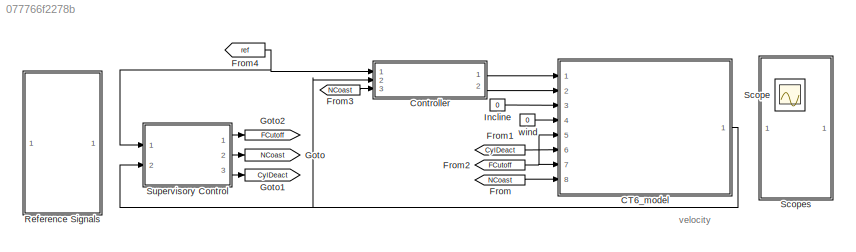
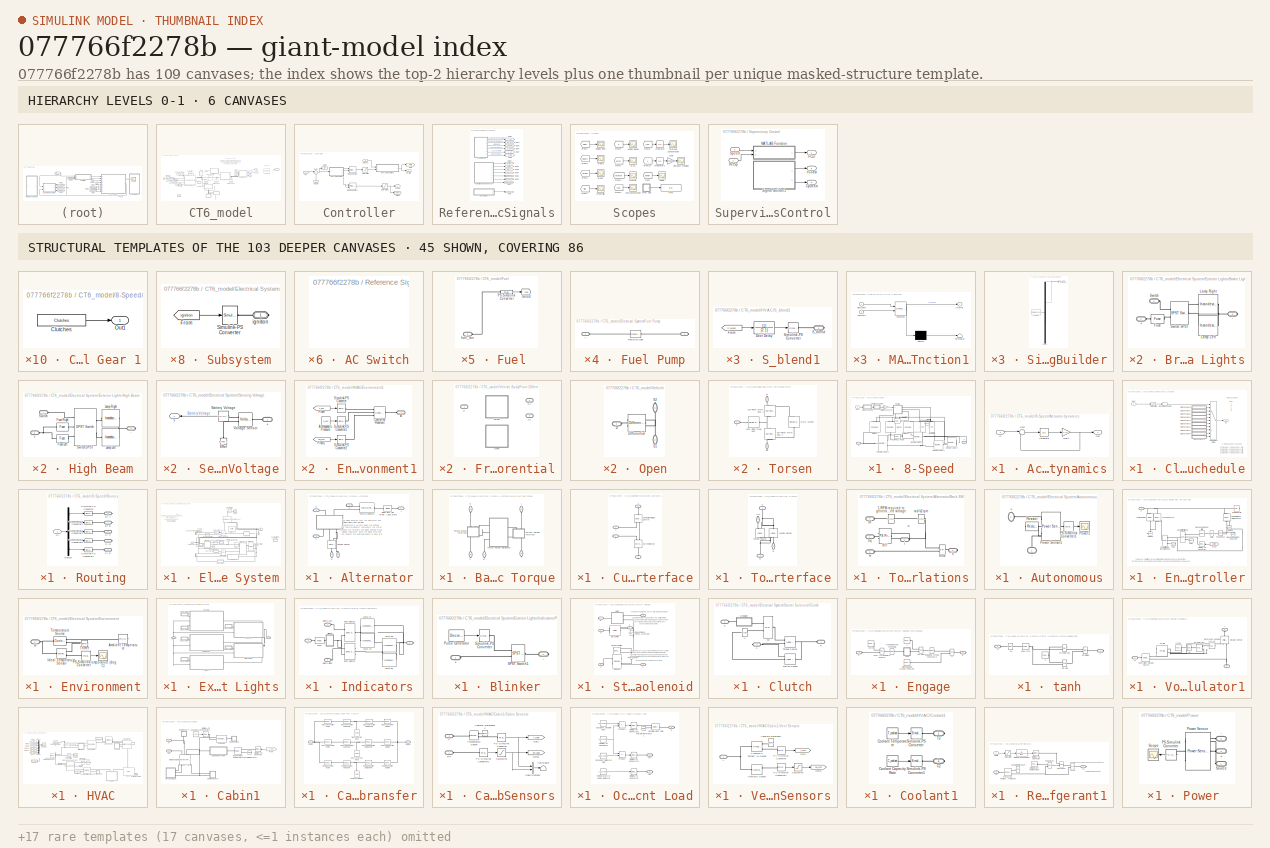
[diagram: thumbnail index - top-2 hierarchy levels (6 canvases) + 45 structural-template representatives of the remaining 103 canvases]
MODEL slx_077766f2278b
KIND model
CONFIG AbsTol = auto
CONFIG EnableMultiTasking = on
CONFIG FixedStep = 1e-3
CONFIG MaxStep = auto
CONFIG MinStep = auto
CONFIG RelTol = 1
CONFIG SampleTimeConstraint = Unconstrained
CONFIG Solver = VariableStepAuto
CONFIG SolverName = VariableStepAuto
CONFIG StartTime = 0.0
CONFIG StopTime = 1875
WORKSPACE source: external: MATLAB File  (data not in archive)
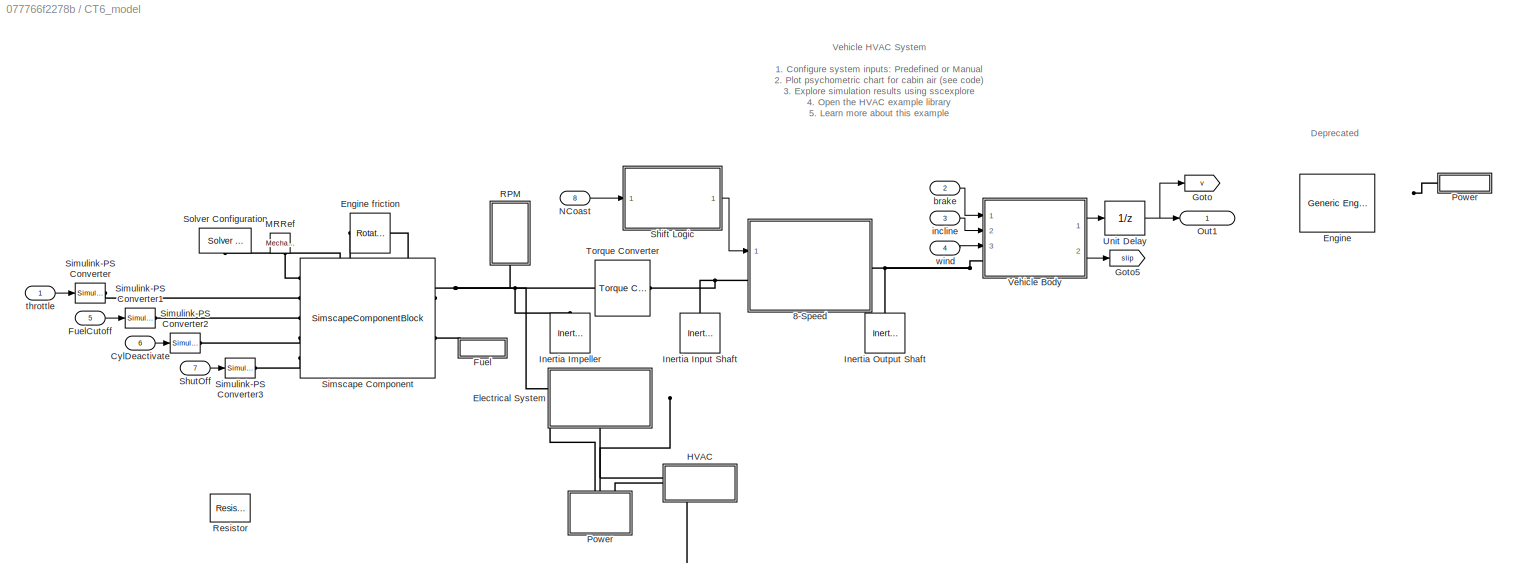
BLOCK [SubSystem] CT6_model
  Ports = [8, 1]
  RequestExecContextInheritance = off
  Variant = off
BLOCK [SubSystem] CT6_model/8-Speed
  Ports = [1, 0, 0, 0, 0, 1, 1]
  RequestExecContextInheritance = off
  Variant = off
BLOCK [SubSystem] CT6_model/8-Speed/Actuator dynamics
  Ports = [1, 1]
  RequestExecContextInheritance = off
  Variant = off
BLOCK [Gain] CT6_model/8-Speed/Actuator dynamics/Gain
  Gain = 1./b
  OutDataTypeStr = Inherit: Inherit via internal rule
  ParamDataTypeStr = Inherit: Inherit via internal rule
  SaturateOnIntegerOverflow = off
BLOCK [Inport] CT6_model/8-Speed/Actuator dynamics/In
  IconDisplay = Port number
BLOCK [Integrator] CT6_model/8-Speed/Actuator dynamics/Integrator
  InitialCondition = x_initial.*b
  Ports = [1, 1]
BLOCK [Outport] CT6_model/8-Speed/Actuator dynamics/Out
  IconDisplay = Port number
BLOCK [Sum] CT6_model/8-Speed/Actuator dynamics/Sum
  IconShape = round
  Inputs = |+-
  Ports = [2, 1]
BLOCK [PMIOPort] CT6_model/8-Speed/B
  Port = 1
  Side = Left
BLOCK [Reference] CT6_model/8-Speed/Brake A  REF=sdl_lib/Brakes & Detents/Rotational/Loaded-Contact
Rotational Friction
  Ports = [0, 0, 0, 0, 0, 2, 1]
  SourceBlock = sdl_lib/Brakes & Detents/Rotational/Loaded-Contact\nRotational Friction
  SourceProductBaseCode = LD
  SourceProductName = Simscape Driveline
  SourceType = Loaded-Contact\nRotational Friction
BLOCK [Reference] CT6_model/8-Speed/Brake B  REF=sdl_lib/Brakes & Detents/Rotational/Loaded-Contact
Rotational Friction
  Ports = [0, 0, 0, 0, 0, 2, 1]
  SourceBlock = sdl_lib/Brakes & Detents/Rotational/Loaded-Contact\nRotational Friction
  SourceProductBaseCode = LD
  SourceProductName = Simscape Driveline
  SourceType = Loaded-Contact\nRotational Friction
BLOCK [Reference] CT6_model/8-Speed/Clutch C  REF=sdl_lib/Clutches/Cone Clutch
  Ports = [0, 0, 0, 0, 0, 2, 1]
  SourceBlock = sdl_lib/Clutches/Cone Clutch
  SourceProductBaseCode = LD
  SourceProductName = Simscape Driveline
  SourceType = Cone Clutch
BLOCK [Reference] CT6_model/8-Speed/Clutch D  REF=sdl_lib/Clutches/Cone Clutch
  Ports = [0, 0, 0, 0, 0, 2, 1]
  SourceBlock = sdl_lib/Clutches/Cone Clutch
  SourceProductBaseCode = LD
  SourceProductName = Simscape Driveline
  SourceType = Cone Clutch
BLOCK [Reference] CT6_model/8-Speed/Clutch E  REF=sdl_lib/Clutches/Cone Clutch
  Ports = [0, 0, 0, 0, 0, 2, 1]
  SourceBlock = sdl_lib/Clutches/Cone Clutch
  SourceProductBaseCode = LD
  SourceProductName = Simscape Driveline
  SourceType = Cone Clutch
BLOCK [SubSystem] CT6_model/8-Speed/Clutch schedule
  Ports = [1, 1]
  RequestExecContextInheritance = off
  Variant = off
BLOCK [SubSystem] CT6_model/8-Speed/Clutch schedule/Clutches Gear 1
  OpenFcn = open_system(gcb,'force');
  Ports = [0, 1]
  RequestExecContextInheritance = off
  Variant = off
BLOCK [Constant] CT6_model/8-Speed/Clutch schedule/Clutches Gear 1/Clutches
  SampleTime = 0
  Value = Clutches
BLOCK [Outport] CT6_model/8-Speed/Clutch schedule/Clutches Gear 1/Out1
  IconDisplay = Port number
BLOCK [SubSystem] CT6_model/8-Speed/Clutch schedule/Clutches Gear 2
  OpenFcn = open_system(gcb,'force');
  Ports = [0, 1]
  RequestExecContextInheritance = off
  Variant = off
BLOCK [Constant] CT6_model/8-Speed/Clutch schedule/Clutches Gear 2/Clutches
  SampleTime = 0
  Value = Clutches
BLOCK [Outport] CT6_model/8-Speed/Clutch schedule/Clutches Gear 2/Out1
  IconDisplay = Port number
BLOCK [SubSystem] CT6_model/8-Speed/Clutch schedule/Clutches Gear 3
  OpenFcn = open_system(gcb,'force');
  Ports = [0, 1]
  RequestExecContextInheritance = off
  Variant = off
BLOCK [Constant] CT6_model/8-Speed/Clutch schedule/Clutches Gear 3/Clutches
  SampleTime = 0
  Value = Clutches
BLOCK [Outport] CT6_model/8-Speed/Clutch schedule/Clutches Gear 3/Out1
  IconDisplay = Port number
BLOCK [SubSystem] CT6_model/8-Speed/Clutch schedule/Clutches Gear 4
  OpenFcn = open_system(gcb,'force');
  Ports = [0, 1]
  RequestExecContextInheritance = off
  Variant = off
BLOCK [Constant] CT6_model/8-Speed/Clutch schedule/Clutches Gear 4/Clutches
  SampleTime = 0
  Value = Clutches
BLOCK [Outport] CT6_model/8-Speed/Clutch schedule/Clutches Gear 4/Out1
  IconDisplay = Port number
BLOCK [SubSystem] CT6_model/8-Speed/Clutch schedule/Clutches Gear 5
  OpenFcn = open_system(gcb,'force');
  Ports = [0, 1]
  RequestExecContextInheritance = off
  Variant = off
BLOCK [Constant] CT6_model/8-Speed/Clutch schedule/Clutches Gear 5/Clutches
  SampleTime = 0
  Value = Clutches
BLOCK [Outport] CT6_model/8-Speed/Clutch schedule/Clutches Gear 5/Out1
  IconDisplay = Port number
BLOCK [SubSystem] CT6_model/8-Speed/Clutch schedule/Clutches Gear 6
  OpenFcn = open_system(gcb,'force');
  Ports = [0, 1]
  RequestExecContextInheritance = off
  Variant = off
BLOCK [Constant] CT6_model/8-Speed/Clutch schedule/Clutches Gear 6/Clutches
  SampleTime = 0
  Value = Clutches
BLOCK [Outport] CT6_model/8-Speed/Clutch schedule/Clutches Gear 6/Out1
  IconDisplay = Port number
BLOCK [SubSystem] CT6_model/8-Speed/Clutch schedule/Clutches Gear 7
  OpenFcn = open_system(gcb,'force');
  Ports = [0, 1]
  RequestExecContextInheritance = off
  Variant = off
BLOCK [Constant] CT6_model/8-Speed/Clutch schedule/Clutches Gear 7/Clutches
  SampleTime = 0
  Value = Clutches
BLOCK [Outport] CT6_model/8-Speed/Clutch schedule/Clutches Gear 7/Out1
  IconDisplay = Port number
BLOCK [SubSystem] CT6_model/8-Speed/Clutch schedule/Clutches Gear 8
  OpenFcn = open_system(gcb,'force');
  Ports = [0, 1]
  RequestExecContextInheritance = off
  Variant = off
BLOCK [Constant] CT6_model/8-Speed/Clutch schedule/Clutches Gear 8/Clutches
  SampleTime = 0
  Value = Clutches
BLOCK [Outport] CT6_model/8-Speed/Clutch schedule/Clutches Gear 8/Out1
  IconDisplay = Port number
BLOCK [SubSystem] CT6_model/8-Speed/Clutch schedule/Clutches Gear N
  OpenFcn = open_system(gcb,'force');
  Ports = [0, 1]
  RequestExecContextInheritance = off
  Variant = off
BLOCK [Constant] CT6_model/8-Speed/Clutch schedule/Clutches Gear N/Clutches Gear N
  SampleTime = 0
  Value = Clutches
BLOCK [Outport] CT6_model/8-Speed/Clutch schedule/Clutches Gear N/Out1
  IconDisplay = Port number
BLOCK [SubSystem] CT6_model/8-Speed/Clutch schedule/Clutches Gear R
  OpenFcn = open_system(gcb,'force');
  Ports = [0, 1]
  RequestExecContextInheritance = off
  Variant = off
BLOCK [Constant] CT6_model/8-Speed/Clutch schedule/Clutches Gear R/Clutches
  SampleTime = 0
  Value = Clutches
BLOCK [Outport] CT6_model/8-Speed/Clutch schedule/Clutches Gear R/Out1
  IconDisplay = Port number
BLOCK [Inport] CT6_model/8-Speed/Clutch schedule/Gear
  IconDisplay = Port number
BLOCK [Rounding] CT6_model/8-Speed/Clutch schedule/Rounding Function
BLOCK [Saturate] CT6_model/8-Speed/Clutch schedule/Saturation
  InputPortMap = u0
  LowerLimit = -1
  Ports = [1, 1]
  UpperLimit = 8
  ZeroCross = off
BLOCK [MultiPortSwitch] CT6_model/8-Speed/Clutch schedule/Select Clutch States
  DataPortIndices = {8,7,6,5,4,3,2,1,-1,0}
  DataPortOrder = Specify indices
  DiagnosticForDefault = None
  InputSameDT = off
  OutDataTypeStr = Inherit: Inherit via back propagation
  Ports = [11, 1]
  SaturateOnIntegerOverflow = off
BLOCK [Outport] CT6_model/8-Speed/Clutch schedule/St
  IconDisplay = Port number
BLOCK [PMIOPort] CT6_model/8-Speed/F
  Port = 2
  Side = Right
BLOCK [Inport] CT6_model/8-Speed/Gear
  IconDisplay = Port number
BLOCK [Reference] CT6_model/8-Speed/Inertia Pla1S-Pla2R  REF=fl_lib/Mechanical/Rotational Elements/Inertia
  Ports = [0, 0, 0, 0, 0, 1]
  SourceBlock = fl_lib/Mechanical/Rotational Elements/Inertia
  SourceProductBaseCode = SS
  SourceProductName = Simscape
  SourceType = Inertia
BLOCK [Reference] CT6_model/8-Speed/Inertia Pla4S  REF=fl_lib/Mechanical/Rotational Elements/Inertia
  Ports = [0, 0, 0, 0, 0, 1]
  SourceBlock = fl_lib/Mechanical/Rotational Elements/Inertia
  SourceProductBaseCode = SS
  SourceProductName = Simscape
  SourceType = Inertia
BLOCK [Reference] CT6_model/8-Speed/MRRef  REF=fl_lib/Mechanical/Rotational Elements/Mechanical
Rotational Reference
  Ports = [0, 0, 0, 0, 0, 1]
  SourceBlock = fl_lib/Mechanical/Rotational Elements/Mechanical\nRotational Reference
  SourceProductBaseCode = SS
  SourceProductName = Simscape
  SourceType = Mechanical\nRotational Reference
BLOCK [Reference] CT6_model/8-Speed/Planetary Gear 1  REF=sdl_lib/Gears/Planetary Gear
  Ports = [0, 0, 0, 0, 0, 1, 2]
  SourceBlock = sdl_lib/Gears/Planetary Gear
  SourceProductBaseCode = LD
  SourceProductName = Simscape Driveline
  SourceType = Planetary Gear
BLOCK [Reference] CT6_model/8-Speed/Planetary Gear 2  REF=sdl_lib/Gears/Planetary Gear
  Ports = [0, 0, 0, 0, 0, 1, 2]
  SourceBlock = sdl_lib/Gears/Planetary Gear
  SourceProductBaseCode = LD
  SourceProductName = Simscape Driveline
  SourceType = Planetary Gear
BLOCK [Reference] CT6_model/8-Speed/Planetary Gear 3  REF=sdl_lib/Gears/Planetary Gear
  Ports = [0, 0, 0, 0, 0, 1, 2]
  SourceBlock = sdl_lib/Gears/Planetary Gear
  SourceProductBaseCode = LD
  SourceProductName = Simscape Driveline
  SourceType = Planetary Gear
BLOCK [Reference] CT6_model/8-Speed/Planetary Gear 4  REF=sdl_lib/Gears/Planetary Gear
  Ports = [0, 0, 0, 0, 0, 1, 2]
  SourceBlock = sdl_lib/Gears/Planetary Gear
  SourceProductBaseCode = LD
  SourceProductName = Simscape Driveline
  SourceType = Planetary Gear
BLOCK [SubSystem] CT6_model/8-Speed/Routing
  Ports = [1, 0, 0, 0, 0, 2, 3]
  RequestExecContextInheritance = off
  Variant = off
BLOCK [PMIOPort] CT6_model/8-Speed/Routing/Br A
  Port = 2
  Side = Right
BLOCK [PMIOPort] CT6_model/8-Speed/Routing/Br B
  Port = 1
  Side = Right
BLOCK [PMIOPort] CT6_model/8-Speed/Routing/Cl C
  Port = 4
  Side = Left
BLOCK [PMIOPort] CT6_model/8-Speed/Routing/Cl D
  Port = 3
  Side = Right
BLOCK [PMIOPort] CT6_model/8-Speed/Routing/Cl E
  Port = 5
  Side = Left
BLOCK [Demux] CT6_model/8-Speed/Routing/Demux
  DisplayOption = bar
  Outputs = 5
  Ports = [1, 5]
BLOCK [Inport] CT6_model/8-Speed/Routing/Pr
  IconDisplay = Port number
BLOCK [Reference] CT6_model/8-Speed/Routing/Simulink-PS Converter  REF=nesl_utility/Simulink-PS
Converter
  Ports = [1, 0, 0, 0, 0, 0, 1]
  SourceBlock = nesl_utility/Simulink-PS\nConverter
  SourceProductBaseCode = SS
  SourceProductName = Simscape
  SourceType = Simulink-PS\nConverter
BLOCK [Reference] CT6_model/8-Speed/Routing/Simulink-PS Converter1  REF=nesl_utility/Simulink-PS
Converter
  Ports = [1, 0, 0, 0, 0, 0, 1]
  SourceBlock = nesl_utility/Simulink-PS\nConverter
  SourceProductBaseCode = SS
  SourceProductName = Simscape
  SourceType = Simulink-PS\nConverter
BLOCK [Reference] CT6_model/8-Speed/Routing/Simulink-PS Converter2  REF=nesl_utility/Simulink-PS
Converter
  Ports = [1, 0, 0, 0, 0, 0, 1]
  SourceBlock = nesl_utility/Simulink-PS\nConverter
  SourceProductBaseCode = SS
  SourceProductName = Simscape
  SourceType = Simulink-PS\nConverter
BLOCK [Reference] CT6_model/8-Speed/Routing/Simulink-PS Converter3  REF=nesl_utility/Simulink-PS
Converter
  Ports = [1, 0, 0, 0, 0, 0, 1]
  SourceBlock = nesl_utility/Simulink-PS\nConverter
  SourceProductBaseCode = SS
  SourceProductName = Simscape
  SourceType = Simulink-PS\nConverter
BLOCK [Reference] CT6_model/8-Speed/Routing/Simulink-PS Converter4  REF=nesl_utility/Simulink-PS
Converter
  Ports = [1, 0, 0, 0, 0, 0, 1]
  SourceBlock = nesl_utility/Simulink-PS\nConverter
  SourceProductBaseCode = SS
  SourceProductName = Simscape
  SourceType = Simulink-PS\nConverter
BLOCK [Gain] CT6_model/8-Speed/State to pressure
  Gain = [1e6,1e6,1e6,1e6,1e6]
  OutDataTypeStr = Inherit: Inherit via internal rule
  ParamDataTypeStr = Inherit: Inherit via internal rule
  SaturateOnIntegerOverflow = off
BLOCK [Inport] CT6_model/CylDeactivate
  IconDisplay = Port number
  Port = 6
BLOCK [SubSystem] CT6_model/Electrical System
  Ports = [0, 0, 0, 0, 0, 2, 1]
  RequestExecContextInheritance = off
  Variant = off
BLOCK [PMIOPort] CT6_model/Electrical System/+
  Port = 2
  Side = Left
BLOCK [PMIOPort] CT6_model/Electrical System/-
  Port = 3
  Side = Right
BLOCK [SubSystem] CT6_model/Electrical System/Alternator
  Ports = [0, 0, 0, 0, 0, 3, 3]
  RequestExecContextInheritance = off
  Variant = off
BLOCK [PMIOPort] CT6_model/Electrical System/Alternator Pulley 
  Port = 1
  Side = Left
BLOCK [PMIOPort] CT6_model/Electrical System/Alternator/+
  Port = 2
  Side = Left
BLOCK [PMIOPort] CT6_model/Electrical System/Alternator/-
  Port = 5
  Side = Left
BLOCK [SubSystem] CT6_model/Electrical System/Alternator/Back EMF and Torque
  Ports = [0, 0, 0, 0, 0, 2, 3]
  RequestExecContextInheritance = off
  Variant = off
BLOCK [PMIOPort] CT6_model/Electrical System/Alternator/Back EMF and Torque/+
  Port = 3
  Side = Left
BLOCK [PMIOPort] CT6_model/Electrical System/Alternator/Back EMF and Torque/-
  Port = 5
  Side = Right
BLOCK [PMIOPort] CT6_model/Electrical System/Alternator/Back EMF and Torque/C
  Port = 2
  Side = Right
BLOCK [SubSystem] CT6_model/Electrical System/Alternator/Back EMF and Torque/Current Voltage Interface
  Ports = [0, 0, 0, 0, 0, 2, 2]
  RequestExecContextInheritance = off
  Variant = off
BLOCK [PMIOPort] CT6_model/Electrical System/Alternator/Back EMF and Torque/Current Voltage Interface/+
  Port = 3
  Side = Left
BLOCK [PMIOPort] CT6_model/Electrical System/Alternator/Back EMF and Torque/Current Voltage Interface/-
  Port = 4
  Side = Right
BLOCK [Reference] CT6_model/Electrical System/Alternator/Back EMF and Torque/Current Voltage Interface/Controlled Voltage Source  REF=fl_lib/Electrical/Electrical Sources/Controlled Voltage
Source
  Ports = [0, 0, 0, 0, 0, 1, 2]
  SourceBlock = fl_lib/Electrical/Electrical Sources/Controlled Voltage\nSource
  SourceProductName = Foundation Library
  SourceType = Controlled Voltage\nSource
BLOCK [Reference] CT6_model/Electrical System/Alternator/Back EMF and Torque/Current Voltage Interface/Current Sensor  REF=fl_lib/Electrical/Electrical Sensors/Current Sensor
  Ports = [0, 0, 0, 0, 0, 1, 2]
  SourceBlock = fl_lib/Electrical/Electrical Sensors/Current Sensor
  SourceProductName = Foundation Library
  SourceType = Current Sensor
BLOCK [PMIOPort] CT6_model/Electrical System/Alternator/Back EMF and Torque/Current Voltage Interface/i
  Port = 2
  Side = Right
BLOCK [PMIOPort] CT6_model/Electrical System/Alternator/Back EMF and Torque/Current Voltage Interface/v
  Port = 1
  Side = Left
BLOCK [PMIOPort] CT6_model/Electrical System/Alternator/Back EMF and Torque/R
  Port = 1
  Side = Left
BLOCK [SubSystem] CT6_model/Electrical System/Alternator/Back EMF and Torque/Torque Motion Interface
  Ports = [0, 0, 0, 0, 0, 2, 2]
  RequestExecContextInheritance = off
  Variant = off
BLOCK [PMIOPort] CT6_model/Electrical System/Alternator/Back EMF and Torque/Torque Motion Interface/C
  Port = 1
  Side = Right
BLOCK [Reference] CT6_model/Electrical System/Alternator/Back EMF and Torque/Torque Motion Interface/Motion Sensor  REF=fl_lib/Mechanical/Mechanical Sensors/Ideal Rotational
Motion Sensor
  Ports = [0, 0, 0, 0, 0, 1, 3]
  SourceBlock = fl_lib/Mechanical/Mechanical Sensors/Ideal Rotational\nMotion Sensor
  SourceProductName = Foundation Library
  SourceType = Ideal Rotational\nMotion Sensor
BLOCK [PMIOPort] CT6_model/Electrical System/Alternator/Back EMF and Torque/Torque Motion Interface/R
  Port = 2
  Side = Left
BLOCK [Reference] CT6_model/Electrical System/Alternator/Back EMF and Torque/Torque Motion Interface/Torque Source  REF=fl_lib/Mechanical/Mechanical Sources/Ideal Torque Source
  Ports = [0, 0, 0, 0, 0, 1, 2]
  SourceBlock = fl_lib/Mechanical/Mechanical Sources/Ideal Torque Source
  SourceProductName = Foundation Library
  SourceType = Ideal Torque Source
BLOCK [PMIOPort] CT6_model/Electrical System/Alternator/Back EMF and Torque/Torque Motion Interface/trq
  Port = 4
  Side = Right
BLOCK [PMIOPort] CT6_model/Electrical System/Alternator/Back EMF and Torque/Torque Motion Interface/w
  Port = 3
  Side = Left
BLOCK [SubSystem] CT6_model/Electrical System/Alternator/Back EMF and Torque/Torque Voltage Calculations
  Ports = [0, 0, 0, 0, 0, 3, 2]
  RequestExecContextInheritance = off
  Variant = off
BLOCK [Reference] CT6_model/Electrical System/Alternator/Back EMF and Torque/Torque Voltage Calculations/1//RPM required to generate rated voltage  REF=fl_lib/Physical Signals/Functions/PS Gain
  Ports = [0, 0, 0, 0, 0, 1, 1]
  SourceBlock = fl_lib/Physical Signals/Functions/PS Gain
  SourceProductName = Foundation Library
  SourceType = PS Gain
BLOCK [Reference] CT6_model/Electrical System/Alternator/Back EMF and Torque/Torque Voltage Calculations/Kt*i  REF=fl_lib/Physical Signals/Functions/PS Product
  Ports = [0, 0, 0, 0, 0, 2, 1]
  SourceBlock = fl_lib/Physical Signals/Functions/PS Product
  SourceProductName = Foundation Library
  SourceType = PS Product
BLOCK [Reference] CT6_model/Electrical System/Alternator/Back EMF and Torque/Torque Voltage Calculations/Kv*w  REF=fl_lib/Physical Signals/Functions/PS Product
  Ports = [0, 0, 0, 0, 0, 2, 1]
  SourceBlock = fl_lib/Physical Signals/Functions/PS Product
  SourceProductName = Foundation Library
  SourceType = PS Product
BLOCK [PMIOPort] CT6_model/Electrical System/Alternator/Back EMF and Torque/Torque Voltage Calculations/V
  Port = 2
  Side = Right
BLOCK [PMIOPort] CT6_model/Electrical System/Alternator/Back EMF and Torque/Torque Voltage Calculations/VF
  Port = 4
  Side = Left
BLOCK [PMIOPort] CT6_model/Electrical System/Alternator/Back EMF and Torque/Torque Voltage Calculations/i
  Port = 5
  Side = Right
BLOCK [Reference] CT6_model/Electrical System/Alternator/Back EMF and Torque/Torque Voltage Calculations/rad//s2rpm  REF=fl_lib/Physical Signals/Functions/PS Gain
  Ports = [0, 0, 0, 0, 0, 1, 1]
  SourceBlock = fl_lib/Physical Signals/Functions/PS Gain
  SourceProductName = Foundation Library
  SourceType = PS Gain
BLOCK [PMIOPort] CT6_model/Electrical System/Alternator/Back EMF and Torque/Torque Voltage Calculations/trq
  Port = 1
  Side = Left
BLOCK [PMIOPort] CT6_model/Electrical System/Alternator/Back EMF and Torque/Torque Voltage Calculations/w
  Port = 3
  Side = Left
BLOCK [PMIOPort] CT6_model/Electrical System/Alternator/Back EMF and Torque/VF
  Port = 4
  Side = Right
BLOCK [PMIOPort] CT6_model/Electrical System/Alternator/C
  Port = 6
  Side = Right
BLOCK [Reference] CT6_model/Electrical System/Alternator/Diode with two forward voltage drops  REF=fl_lib/Electrical/Electrical Elements/Diode
  Ports = [0, 0, 0, 0, 0, 1, 1]
  SourceBlock = fl_lib/Electrical/Electrical Elements/Diode
  SourceProductName = Foundation Library
  SourceType = Diode
BLOCK [PMIOPort] CT6_model/Electrical System/Alternator/H
  Port = 1
  Side = Right
BLOCK [PMIOPort] CT6_model/Electrical System/Alternator/R
  Port = 3
  Side = Right
BLOCK [Reference] CT6_model/Electrical System/Alternator/Thermal Resistor  REF=fl_lib/Electrical/Electrical Elements/Thermal Resistor
  Ports = [0, 0, 0, 0, 0, 2, 1]
  SourceBlock = fl_lib/Electrical/Electrical Elements/Thermal Resistor
  SourceProductName = Foundation Library
  SourceType = Thermal Resistor
BLOCK [PMIOPort] CT6_model/Electrical System/Alternator/Vf
  Port = 4
  Side = Left
BLOCK [Reference] CT6_model/Electrical System/Alternator/Voltage Sensor  REF=fl_lib/Electrical/Electrical Sensors/Voltage Sensor
  Ports = [0, 0, 0, 0, 0, 1, 2]
  SourceBlock = fl_lib/Electrical/Electrical Sensors/Voltage Sensor
  SourceProductName = Foundation Library
  SourceType = Voltage Sensor
BLOCK [SubSystem] CT6_model/Electrical System/Autonomous
  Ports = [0, 0, 0, 0, 0, 1, 1]
  RequestExecContextInheritance = off
  Variant = off
BLOCK [PMIOPort] CT6_model/Electrical System/Autonomous/+
  Port = 1
  Side = Left
BLOCK [PMIOPort] CT6_model/Electrical System/Autonomous/-
  Port = 2
  Side = Right
BLOCK [Reference] CT6_model/Electrical System/Autonomous/PS-Simulink Converter1  REF=nesl_utility/PS-Simulink
Converter
  Ports = [0, 1, 0, 0, 0, 1]
  SourceBlock = nesl_utility/PS-Simulink\nConverter
  SourceProductBaseCode = SS
  SourceProductName = Simscape
  SourceType = PS-Simulink\nConverter
BLOCK [Reference] CT6_model/Electrical System/Autonomous/Power Sensor1  REF=elec_lib/Sensors/Power Sensor
  Ports = [0, 0, 0, 0, 0, 3, 1]
  SourceBlock = elec_lib/Sensors/Power Sensor
  SourceProductBaseCode = SN
  SourceProductName = Simscape Electronics
  SourceType = Power Sensor
BLOCK [Scope] CT6_model/Electrical System/Autonomous/Power1
  NumInputPorts = 1
  Ports = [1]
  ScopeSpecificationString = Simulink.scopes.TimeScopeBlockCfg('CurrentConfiguration', extmgr.ConfigurationSet(extmgr.Configuration('Core','General UI',true),extmgr.Configuration('Core','Source UI',true),extmgr.Configuration('Sources','WiredSimulink',true,'DataLoggingVariableName','ScopeData2'),extmgr.Configuration('Visuals','Time Domain',true,'SerializedDisplays',{struct('MinYLimReal','64.86798','MaxYLimReal','264.86798','YL...<+1490ch>
BLOCK [Reference] CT6_model/Electrical System/Autonomous/Resistor  REF=elec_lib/Passive Devices/Resistor
  Ports = [0, 0, 0, 0, 0, 1, 1]
  SourceBlock = elec_lib/Passive Devices/Resistor
  SourceProductBaseCode = SN
  SourceProductName = Simscape Electronics
  SourceType = Resistor
BLOCK [Reference] CT6_model/Electrical System/Battery1  REF=elec_lib/Sources/Battery
  Ports = [0, 0, 0, 0, 0, 1, 1]
  SourceBlock = elec_lib/Sources/Battery
  SourceProductBaseCode = SN
  SourceProductName = Simscape Electronics
  SourceType = Battery
BLOCK [Reference] CT6_model/Electrical System/Convection Env  REF=fl_lib/Thermal/Thermal Elements/Convective Heat
Transfer
  Ports = [0, 0, 0, 0, 0, 1, 1]
  SourceBlock = fl_lib/Thermal/Thermal Elements/Convective Heat\nTransfer
  SourceProductName = Foundation Library
  SourceType = Convective Heat\nTransfer
BLOCK [Reference] CT6_model/Electrical System/ERef1  REF=fl_lib/Electrical/Electrical Elements/Electrical Reference
  Ports = [0, 0, 0, 0, 0, 1]
  SourceBlock = fl_lib/Electrical/Electrical Elements/Electrical Reference
  SourceProductName = Foundation Library
  SourceType = Electrical Reference
BLOCK [SubSystem] CT6_model/Electrical System/Engine with Idle Controller
  Commented = on
  Ports = [0, 0, 0, 0, 0, 1]
  RequestExecContextInheritance = off
  Variant = off
BLOCK [Reference] CT6_model/Electrical System/Engine with Idle Controller/ 0Nm   REF=fl_lib/Physical Signals/Sources/PS Constant
  Ports = [0, 0, 0, 0, 0, 0, 1]
  SourceBlock = fl_lib/Physical Signals/Sources/PS Constant
  SourceProductName = Foundation Library
  SourceType = PS Constant
BLOCK [Reference] CT6_model/Electrical System/Engine with Idle Controller/0Nm  REF=fl_lib/Physical Signals/Sources/PS Constant
  Ports = [0, 0, 0, 0, 0, 0, 1]
  SourceBlock = fl_lib/Physical Signals/Sources/PS Constant
  SourceProductName = Foundation Library
  SourceType = PS Constant
BLOCK [Reference] CT6_model/Electrical System/Engine with Idle Controller/Enable if faster than stall speed  REF=fl_lib/Physical Signals/Nonlinear Operators/PS Switch
  Ports = [0, 0, 0, 0, 0, 3, 1]
  SourceBlock = fl_lib/Physical Signals/Nonlinear Operators/PS Switch
  SourceProductName = Foundation Library
  SourceType = PS Switch
BLOCK [Reference] CT6_model/Electrical System/Engine with Idle Controller/Enable if ignition on  REF=fl_lib/Physical Signals/Nonlinear Operators/PS Switch
  Ports = [0, 0, 0, 0, 0, 3, 1]
  SourceBlock = fl_lib/Physical Signals/Nonlinear Operators/PS Switch
  SourceProductName = Foundation Library
  SourceType = PS Switch
BLOCK [Reference] CT6_model/Electrical System/Engine with Idle Controller/Engine friction  REF=fl_lib/Mechanical/Rotational Elements/Rotational Friction
  Ports = [0, 0, 0, 0, 0, 1, 1]
  SourceBlock = fl_lib/Mechanical/Rotational Elements/Rotational Friction
  SourceProductName = Foundation Library
  SourceType = Rotational Friction
BLOCK [Reference] CT6_model/Electrical System/Engine with Idle Controller/Engine inertia  REF=fl_lib/Mechanical/Rotational Elements/Inertia
  Ports = [0, 0, 0, 0, 0, 1]
  SourceBlock = fl_lib/Mechanical/Rotational Elements/Inertia
  SourceProductName = Foundation Library
  SourceType = Inertia
BLOCK [From] CT6_model/Electrical System/Engine with Idle Controller/From
  GotoTag = ignition
  TagVisibility = global
BLOCK [Reference] CT6_model/Electrical System/Engine with Idle Controller/Gain  REF=fl_lib/Physical Signals/Functions/PS Gain
  Ports = [0, 0, 0, 0, 0, 1, 1]
  SourceBlock = fl_lib/Physical Signals/Functions/PS Gain
  SourceProductName = Foundation Library
  SourceType = PS Gain
BLOCK [Reference] CT6_model/Electrical System/Engine with Idle Controller/Ideal Rotational Motion Sensor  REF=fl_lib/Mechanical/Mechanical Sensors/Ideal Rotational
Motion Sensor
  Ports = [0, 0, 0, 0, 0, 1, 3]
  SourceBlock = fl_lib/Mechanical/Mechanical Sensors/Ideal Rotational\nMotion Sensor
  SourceProductName = Foundation Library
  SourceType = Ideal Rotational\nMotion Sensor
BLOCK [Reference] CT6_model/Electrical System/Engine with Idle Controller/Idle speed authority limits  REF=fl_lib/Physical Signals/Nonlinear Operators/PS Saturation
  Ports = [0, 0, 0, 0, 0, 1, 1]
  SourceBlock = fl_lib/Physical Signals/Nonlinear Operators/PS Saturation
  SourceProductName = Foundation Library
  SourceType = PS Saturation
BLOCK [Reference] CT6_model/Electrical System/Engine with Idle Controller/Idle speed set point (900rpm)  REF=fl_lib/Physical Signals/Sources/PS Constant
  Ports = [0, 0, 0, 0, 0, 0, 1]
  SourceBlock = fl_lib/Physical Signals/Sources/PS Constant
  SourceProductName = Foundation Library
  SourceType = PS Constant
BLOCK [Reference] CT6_model/Electrical System/Engine with Idle Controller/MRRef2  REF=fl_lib/Mechanical/Rotational Elements/Mechanical
Rotational Reference
  Ports = [0, 0, 0, 0, 0, 1]
  SourceBlock = fl_lib/Mechanical/Rotational Elements/Mechanical\nRotational Reference
  SourceProductName = Foundation Library
  SourceType = Mechanical\nRotational Reference
BLOCK [Reference] CT6_model/Electrical System/Engine with Idle Controller/MRRef3  REF=fl_lib/Mechanical/Rotational Elements/Mechanical
Rotational Reference
  Ports = [0, 0, 0, 0, 0, 1]
  SourceBlock = fl_lib/Mechanical/Rotational Elements/Mechanical\nRotational Reference
  SourceProductName = Foundation Library
  SourceType = Mechanical\nRotational Reference
BLOCK [Reference] CT6_model/Electrical System/Engine with Idle Controller/PS Subtract  REF=fl_lib/Physical Signals/Functions/PS Subtract
  Ports = [0, 0, 0, 0, 0, 2, 1]
  SourceBlock = fl_lib/Physical Signals/Functions/PS Subtract
  SourceProductName = Foundation Library
  SourceType = PS Subtract
BLOCK [PMIOPort] CT6_model/Electrical System/Engine with Idle Controller/R
  Port = 1
  Side = Left
BLOCK [Reference] CT6_model/Electrical System/Engine with Idle Controller/Simulink-PS Converter  REF=nesl_utility/Simulink-PS
Converter
  Ports = [1, 0, 0, 0, 0, 0, 1]
  SourceBlock = nesl_utility/Simulink-PS\nConverter
  SourceProductBaseCode = SS
  SourceProductName = Simscape
  SourceType = Simulink-PS\nConverter
BLOCK [Reference] CT6_model/Electrical System/Engine with Idle Controller/Torque Source  REF=fl_lib/Mechanical/Mechanical Sources/Ideal Torque Source
  Ports = [0, 0, 0, 0, 0, 1, 2]
  SourceBlock = fl_lib/Mechanical/Mechanical Sources/Ideal Torque Source
  SourceProductName = Foundation Library
  SourceType = Ideal Torque Source
BLOCK [SubSystem] CT6_model/Electrical System/Environment
  Ports = [0, 0, 0, 0, 0, 1]
  RequestExecContextInheritance = off
  Variant = off
BLOCK [Reference] CT6_model/Electrical System/Environment/ Temperature Source  REF=fl_lib/Thermal/Thermal Sources/Controlled
Temperature Source
  Ports = [0, 0, 0, 0, 0, 1, 2]
  SourceBlock = fl_lib/Thermal/Thermal Sources/Controlled\nTemperature Source
  SourceProductName = Foundation Library
  SourceType = Controlled\nTemperature Source
BLOCK [Reference] CT6_model/Electrical System/Environment/Ambient Temperature  REF=fl_lib/Physical Signals/Sources/PS Constant
  Ports = [0, 0, 0, 0, 0, 0, 1]
  SourceBlock = fl_lib/Physical Signals/Sources/PS Constant
  SourceProductName = Foundation Library
  SourceType = PS Constant
BLOCK [PMIOPort] CT6_model/Electrical System/Environment/H
  Port = 1
  Side = Left
BLOCK [Reference] CT6_model/Electrical System/Environment/Ideal Temperature Sensor  REF=fl_lib/Thermal/Thermal Sensors/Temperature Sensor
  Ports = [0, 0, 0, 0, 0, 1, 2]
  SourceBlock = fl_lib/Thermal/Thermal Sensors/Temperature Sensor
  SourceProductName = Foundation Library
  SourceType = Temperature Sensor
BLOCK [Reference] CT6_model/Electrical System/Environment/PS-Simulink Converter  REF=nesl_utility/PS-Simulink
Converter
  Ports = [0, 1, 0, 0, 0, 1]
  SourceBlock = nesl_utility/PS-Simulink\nConverter
  SourceProductBaseCode = SS
  SourceProductName = Simscape
  SourceType = PS-Simulink\nConverter
BLOCK [Scope] CT6_model/Electrical System/Environment/Temperature (deg C)
  NumInputPorts = 1
  Ports = [1]
  ScopeSpecificationString = Simulink.scopes.TimeScopeBlockCfg('CurrentConfiguration', extmgr.ConfigurationSet(extmgr.Configuration('Core','General UI',true),extmgr.Configuration('Core','Source UI',true),extmgr.Configuration('Sources','WiredSimulink',true,'DataLoggingSaveFormat','StructureWithTime','DataLoggingMaxPoints','50000','DataLoggingLimitDataPoints',true,'DataLoggingDecimation','1','DataLoggingDecimateData',true),extm...<+1716ch>
BLOCK [Reference] CT6_model/Electrical System/Environment/ThRef  REF=fl_lib/Thermal/Thermal Elements/Thermal Reference
  Ports = [0, 0, 0, 0, 0, 1]
  SourceBlock = fl_lib/Thermal/Thermal Elements/Thermal Reference
  SourceProductName = Foundation Library
  SourceType = Thermal Reference
BLOCK [SubSystem] CT6_model/Electrical System/Exterior Lights
  Ports = [0, 0, 0, 0, 0, 1, 1]
  RequestExecContextInheritance = off
  Tag = PublishSubsystem
  Variant = off
BLOCK [PMIOPort] CT6_model/Electrical System/Exterior Lights/+
  Port = 2
  Side = Right
BLOCK [PMIOPort] CT6_model/Electrical System/Exterior Lights/-
  Port = 1
  Side = Left
BLOCK [SubSystem] CT6_model/Electrical System/Exterior Lights/Brake Lights
  Ports = [0, 0, 0, 0, 0, 2, 1]
  RequestExecContextInheritance = off
  Variant = off
BLOCK [PMIOPort] CT6_model/Electrical System/Exterior Lights/Brake Lights/+
  Port = 2
  Side = Left
BLOCK [PMIOPort] CT6_model/Electrical System/Exterior Lights/Brake Lights/-
  Port = 3
  Side = Right
BLOCK [Reference] CT6_model/Electrical System/Exterior Lights/Brake Lights/Fuse  REF=elec_lib/Passive Devices/Fuse
  AttributesFormatString = %<I_rated> %<I_rated_unit>
  Ports = [0, 0, 0, 0, 0, 1, 1]
  SourceBlock = elec_lib/Passive Devices/Fuse
  SourceProductBaseCode = SN
  SourceProductName = Simscape Electronics
  SourceType = Fuse
BLOCK [Reference] CT6_model/Electrical System/Exterior Lights/Brake Lights/Lamp Left  REF=elec_lib/Passive Devices/Incandescent Lamp
  Ports = [0, 0, 0, 0, 0, 1, 1]
  SourceBlock = elec_lib/Passive Devices/Incandescent Lamp
  SourceProductBaseCode = SN
  SourceProductName = Simscape Electronics
  SourceType = Incandescent Lamp
BLOCK [Reference] CT6_model/Electrical System/Exterior Lights/Brake Lights/Lamp Right  REF=elec_lib/Passive Devices/Incandescent Lamp
  Ports = [0, 0, 0, 0, 0, 1, 1]
  SourceBlock = elec_lib/Passive Devices/Incandescent Lamp
  SourceProductBaseCode = SN
  SourceProductName = Simscape Electronics
  SourceType = Incandescent Lamp
BLOCK [PMIOPort] CT6_model/Electrical System/Exterior Lights/Brake Lights/Switch
  Port = 1
  Side = Left
BLOCK [Reference] CT6_model/Electrical System/Exterior Lights/Brake Lights/Switch SPST  REF=elec_lib/Passive Devices/Switches/SPST Switch
  Ports = [0, 0, 0, 0, 0, 2, 1]
  SourceBlock = elec_lib/Passive Devices/Switches/SPST Switch
  SourceProductBaseCode = SN
  SourceProductName = Simscape Electronics
  SourceType = SPST Switch
BLOCK [SubSystem] CT6_model/Electrical System/Exterior Lights/High Beam
  Ports = [0, 0, 0, 0, 0, 2, 1]
  RequestExecContextInheritance = off
  Variant = off
BLOCK [PMIOPort] CT6_model/Electrical System/Exterior Lights/High Beam/+
  Port = 2
  Side = Left
BLOCK [PMIOPort] CT6_model/Electrical System/Exterior Lights/High Beam/-
  Port = 3
  Side = Right
BLOCK [Reference] CT6_model/Electrical System/Exterior Lights/High Beam/Fuse Left  REF=elec_lib/Passive Devices/Fuse
  AttributesFormatString = %<I_rated> %<I_rated_unit>
  Ports = [0, 0, 0, 0, 0, 1, 1]
  SourceBlock = elec_lib/Passive Devices/Fuse
  SourceProductBaseCode = SN
  SourceProductName = Simscape Electronics
  SourceType = Fuse
BLOCK [Reference] CT6_model/Electrical System/Exterior Lights/High Beam/Fuse Right  REF=elec_lib/Passive Devices/Fuse
  AttributesFormatString = %<I_rated> %<I_rated_unit>
  Ports = [0, 0, 0, 0, 0, 1, 1]
  SourceBlock = elec_lib/Passive Devices/Fuse
  SourceProductBaseCode = SN
  SourceProductName = Simscape Electronics
  SourceType = Fuse
BLOCK [Reference] CT6_model/Electrical System/Exterior Lights/High Beam/Lamp Left  REF=elec_lib/Passive Devices/Incandescent Lamp
  Ports = [0, 0, 0, 0, 0, 1, 1]
  SourceBlock = elec_lib/Passive Devices/Incandescent Lamp
  SourceProductBaseCode = SN
  SourceProductName = Simscape Electronics
  SourceType = Incandescent Lamp
BLOCK [Reference] CT6_model/Electrical System/Exterior Lights/High Beam/Lamp Right  REF=elec_lib/Passive Devices/Incandescent Lamp
  Ports = [0, 0, 0, 0, 0, 1, 1]
  SourceBlock = elec_lib/Passive Devices/Incandescent Lamp
  SourceProductBaseCode = SN
  SourceProductName = Simscape Electronics
  SourceType = Incandescent Lamp
BLOCK [PMIOPort] CT6_model/Electrical System/Exterior Lights/High Beam/Switch
  Port = 1
  Side = Left
BLOCK [Reference] CT6_model/Electrical System/Exterior Lights/High Beam/Switch DPST  REF=elec_lib/Passive Devices/Switches/DPST Switch
  Ports = [0, 0, 0, 0, 0, 3, 2]
  SourceBlock = elec_lib/Passive Devices/Switches/DPST Switch
  SourceProductBaseCode = SN
  SourceProductName = Simscape Electronics
  SourceType = DPST Switch
BLOCK [SubSystem] CT6_model/Electrical System/Exterior Lights/Indicators
  Ports = [0, 0, 0, 0, 0, 3, 1]
  RequestExecContextInheritance = off
  Tag = PublishSubsystem
  Variant = off
BLOCK [PMIOPort] CT6_model/Electrical System/Exterior Lights/Indicators/+
  Port = 3
  Side = Left
BLOCK [PMIOPort] CT6_model/Electrical System/Exterior Lights/Indicators/-
  Port = 2
  Side = Right
BLOCK [SubSystem] CT6_model/Electrical System/Exterior Lights/Indicators/Blinker
  Ports = [0, 0, 0, 0, 0, 1, 1]
  RequestExecContextInheritance = off
  Variant = off
BLOCK [PMIOPort] CT6_model/Electrical System/Exterior Lights/Indicators/Blinker/+
  Port = 1
  Side = Left
BLOCK [PMIOPort] CT6_model/Electrical System/Exterior Lights/Indicators/Blinker/-
  Port = 2
  Side = Right
BLOCK [DiscretePulseGenerator] CT6_model/Electrical System/Exterior Lights/Indicators/Blinker/Pulse Generator
  Period = 1.5
  Ports = [0, 1]
  PulseType = Time based
  PulseWidth = 50
BLOCK [Reference] CT6_model/Electrical System/Exterior Lights/Indicators/Blinker/SPST Switch1  REF=elec_lib/Passive Devices/Switches/SPST Switch
  Ports = [0, 0, 0, 0, 0, 2, 1]
  SourceBlock = elec_lib/Passive Devices/Switches/SPST Switch
  SourceProductBaseCode = SN
  SourceProductName = Simscape Electronics
  SourceType = SPST Switch
BLOCK [Reference] CT6_model/Electrical System/Exterior Lights/Indicators/Blinker/Simulink-PS Converter  REF=nesl_utility/Simulink-PS
Converter
  Ports = [1, 0, 0, 0, 0, 0, 1]
  SourceBlock = nesl_utility/Simulink-PS\nConverter
  SourceProductBaseCode = SS
  SourceProductName = Simscape
  SourceType = Simulink-PS\nConverter
BLOCK [Reference] CT6_model/Electrical System/Exterior Lights/Indicators/Fuse  REF=elec_lib/Passive Devices/Fuse
  AttributesFormatString = %<I_rated> %<I_rated_unit>
  Ports = [0, 0, 0, 0, 0, 1, 1]
  SourceBlock = elec_lib/Passive Devices/Fuse
  SourceProductBaseCode = SN
  SourceProductName = Simscape Electronics
  SourceType = Fuse
BLOCK [Reference] CT6_model/Electrical System/Exterior Lights/Indicators/Lamp LF  REF=elec_lib/Passive Devices/Incandescent Lamp
  Ports = [0, 0, 0, 0, 0, 1, 1]
  SourceBlock = elec_lib/Passive Devices/Incandescent Lamp
  SourceProductBaseCode = SN
  SourceProductName = Simscape Electronics
  SourceType = Incandescent Lamp
BLOCK [Reference] CT6_model/Electrical System/Exterior Lights/Indicators/Lamp LR  REF=elec_lib/Passive Devices/Incandescent Lamp
  Ports = [0, 0, 0, 0, 0, 1, 1]
  SourceBlock = elec_lib/Passive Devices/Incandescent Lamp
  SourceProductBaseCode = SN
  SourceProductName = Simscape Electronics
  SourceType = Incandescent Lamp
BLOCK [Reference] CT6_model/Electrical System/Exterior Lights/Indicators/Lamp RF  REF=elec_lib/Passive Devices/Incandescent Lamp
  Ports = [0, 0, 0, 0, 0, 1, 1]
  SourceBlock = elec_lib/Passive Devices/Incandescent Lamp
  SourceProductBaseCode = SN
  SourceProductName = Simscape Electronics
  SourceType = Incandescent Lamp
BLOCK [Reference] CT6_model/Electrical System/Exterior Lights/Indicators/Lamp RR  REF=elec_lib/Passive Devices/Incandescent Lamp
  Ports = [0, 0, 0, 0, 0, 1, 1]
  SourceBlock = elec_lib/Passive Devices/Incandescent Lamp
  SourceProductBaseCode = SN
  SourceProductName = Simscape Electronics
  SourceType = Incandescent Lamp
BLOCK [Reference] CT6_model/Electrical System/Exterior Lights/Indicators/SPST Switch2  REF=elec_lib/Passive Devices/Switches/SPST Switch
  Ports = [0, 0, 0, 0, 0, 2, 1]
  SourceBlock = elec_lib/Passive Devices/Switches/SPST Switch
  SourceProductBaseCode = SN
  SourceProductName = Simscape Electronics
  SourceType = SPST Switch
BLOCK [Reference] CT6_model/Electrical System/Exterior Lights/Indicators/SPST Switch3  REF=elec_lib/Passive Devices/Switches/SPST Switch
  Ports = [0, 0, 0, 0, 0, 2, 1]
  SourceBlock = elec_lib/Passive Devices/Switches/SPST Switch
  SourceProductBaseCode = SN
  SourceProductName = Simscape Electronics
  SourceType = SPST Switch
BLOCK [PMIOPort] CT6_model/Electrical System/Exterior Lights/Indicators/Switch Left
  Port = 1
  Side = Left
BLOCK [PMIOPort] CT6_model/Electrical System/Exterior Lights/Indicators/Switch Right
  Port = 4
  Side = Left
BLOCK [SubSystem] CT6_model/Electrical System/Exterior Lights/Low Beam
  Ports = [0, 0, 0, 0, 0, 2, 1]
  RequestExecContextInheritance = off
  Variant = off
BLOCK [PMIOPort] CT6_model/Electrical System/Exterior Lights/Low Beam/+
  Port = 3
  Side = Left
BLOCK [PMIOPort] CT6_model/Electrical System/Exterior Lights/Low Beam/-
  Port = 2
  Side = Right
BLOCK [Reference] CT6_model/Electrical System/Exterior Lights/Low Beam/Fuse Left  REF=elec_lib/Passive Devices/Fuse
  AttributesFormatString = %<I_rated> %<I_rated_unit>
  Ports = [0, 0, 0, 0, 0, 1, 1]
  SourceBlock = elec_lib/Passive Devices/Fuse
  SourceProductBaseCode = SN
  SourceProductName = Simscape Electronics
  SourceType = Fuse
BLOCK [Reference] CT6_model/Electrical System/Exterior Lights/Low Beam/Fuse Right  REF=elec_lib/Passive Devices/Fuse
  AttributesFormatString = %<I_rated> %<I_rated_unit>
  Ports = [0, 0, 0, 0, 0, 1, 1]
  SourceBlock = elec_lib/Passive Devices/Fuse
  SourceProductBaseCode = SN
  SourceProductName = Simscape Electronics
  SourceType = Fuse
BLOCK [Reference] CT6_model/Electrical System/Exterior Lights/Low Beam/Lamp Left  REF=elec_lib/Passive Devices/Incandescent Lamp
  Ports = [0, 0, 0, 0, 0, 1, 1]
  SourceBlock = elec_lib/Passive Devices/Incandescent Lamp
  SourceProductBaseCode = SN
  SourceProductName = Simscape Electronics
  SourceType = Incandescent Lamp
BLOCK [Reference] CT6_model/Electrical System/Exterior Lights/Low Beam/Lamp Right  REF=elec_lib/Passive Devices/Incandescent Lamp
  Ports = [0, 0, 0, 0, 0, 1, 1]
  SourceBlock = elec_lib/Passive Devices/Incandescent Lamp
  SourceProductBaseCode = SN
  SourceProductName = Simscape Electronics
  SourceType = Incandescent Lamp
BLOCK [PMIOPort] CT6_model/Electrical System/Exterior Lights/Low Beam/Switch
  Port = 1
  Side = Left
BLOCK [Reference] CT6_model/Electrical System/Exterior Lights/Low Beam/Switch DPST  REF=elec_lib/Passive Devices/Switches/DPST Switch
  Ports = [0, 0, 0, 0, 0, 3, 2]
  SourceBlock = elec_lib/Passive Devices/Switches/DPST Switch
  SourceProductBaseCode = SN
  SourceProductName = Simscape Electronics
  SourceType = DPST Switch
BLOCK [SubSystem] CT6_model/Electrical System/Exterior Lights/Subsystem2
  Ports = [0, 0, 0, 0, 0, 0, 1]
  RequestExecContextInheritance = off
  Variant = off
BLOCK [From] CT6_model/Electrical System/Exterior Lights/Subsystem2/From
  GotoTag = ind_L
  TagVisibility = global
BLOCK [Reference] CT6_model/Electrical System/Exterior Lights/Subsystem2/Simulink-PS Converter  REF=nesl_utility/Simulink-PS
Converter
  Ports = [1, 0, 0, 0, 0, 0, 1]
  SourceBlock = nesl_utility/Simulink-PS\nConverter
  SourceProductBaseCode = SS
  SourceProductName = Simscape
  SourceType = Simulink-PS\nConverter
BLOCK [PMIOPort] CT6_model/Electrical System/Exterior Lights/Subsystem2/ind_L
  Port = 1
  Side = Right
BLOCK [SubSystem] CT6_model/Electrical System/Exterior Lights/Subsystem3
  Ports = [0, 0, 0, 0, 0, 0, 1]
  RequestExecContextInheritance = off
  Variant = off
BLOCK [From] CT6_model/Electrical System/Exterior Lights/Subsystem3/From
  GotoTag = ind_R
  TagVisibility = global
BLOCK [Reference] CT6_model/Electrical System/Exterior Lights/Subsystem3/Simulink-PS Converter  REF=nesl_utility/Simulink-PS
Converter
  Ports = [1, 0, 0, 0, 0, 0, 1]
  SourceBlock = nesl_utility/Simulink-PS\nConverter
  SourceProductBaseCode = SS
  SourceProductName = Simscape
  SourceType = Simulink-PS\nConverter
BLOCK [PMIOPort] CT6_model/Electrical System/Exterior Lights/Subsystem3/ind_R
  Port = 1
  Side = Right
BLOCK [SubSystem] CT6_model/Electrical System/Exterior Lights/Subsystem4
  Ports = [0, 0, 0, 0, 0, 0, 1]
  RequestExecContextInheritance = off
  Variant = off
BLOCK [From] CT6_model/Electrical System/Exterior Lights/Subsystem4/From
  GotoTag = lights
  TagVisibility = global
BLOCK [Reference] CT6_model/Electrical System/Exterior Lights/Subsystem4/Simulink-PS Converter  REF=nesl_utility/Simulink-PS
Converter
  Ports = [1, 0, 0, 0, 0, 0, 1]
  SourceBlock = nesl_utility/Simulink-PS\nConverter
  SourceProductBaseCode = SS
  SourceProductName = Simscape
  SourceType = Simulink-PS\nConverter
BLOCK [PMIOPort] CT6_model/Electrical System/Exterior Lights/Subsystem4/lights
  Port = 1
  Side = Right
BLOCK [SubSystem] CT6_model/Electrical System/Exterior Lights/Subsystem5
  Ports = [0, 0, 0, 0, 0, 0, 1]
  RequestExecContextInheritance = off
  Variant = off
BLOCK [From] CT6_model/Electrical System/Exterior Lights/Subsystem5/From
  GotoTag = lights
  TagVisibility = global
BLOCK [Reference] CT6_model/Electrical System/Exterior Lights/Subsystem5/Simulink-PS Converter  REF=nesl_utility/Simulink-PS
Converter
  Ports = [1, 0, 0, 0, 0, 0, 1]
  SourceBlock = nesl_utility/Simulink-PS\nConverter
  SourceProductBaseCode = SS
  SourceProductName = Simscape
  SourceType = Simulink-PS\nConverter
BLOCK [PMIOPort] CT6_model/Electrical System/Exterior Lights/Subsystem5/lights
  Port = 1
  Side = Right
BLOCK [SubSystem] CT6_model/Electrical System/Exterior Lights/Subsystem6
  Ports = [0, 0, 0, 0, 0, 0, 1]
  RequestExecContextInheritance = off
  Variant = off
BLOCK [From] CT6_model/Electrical System/Exterior Lights/Subsystem6/From
  GotoTag = brakeLights
BLOCK [Reference] CT6_model/Electrical System/Exterior Lights/Subsystem6/Simulink-PS Converter  REF=nesl_utility/Simulink-PS
Converter
  Ports = [1, 0, 0, 0, 0, 0, 1]
  SourceBlock = nesl_utility/Simulink-PS\nConverter
  SourceProductBaseCode = SS
  SourceProductName = Simscape
  SourceType = Simulink-PS\nConverter
BLOCK [PMIOPort] CT6_model/Electrical System/Exterior Lights/Subsystem6/brake
  Port = 1
  Side = Right
BLOCK [SubSystem] CT6_model/Electrical System/Exterior Lights/Subsystem7
  Ports = [0, 0, 0, 0, 0, 0, 1]
  RequestExecContextInheritance = off
  Variant = off
BLOCK [From] CT6_model/Electrical System/Exterior Lights/Subsystem7/From
  GotoTag = beam
  TagVisibility = global
BLOCK [Reference] CT6_model/Electrical System/Exterior Lights/Subsystem7/Simulink-PS Converter  REF=nesl_utility/Simulink-PS
Converter
  Ports = [1, 0, 0, 0, 0, 0, 1]
  SourceBlock = nesl_utility/Simulink-PS\nConverter
  SourceProductBaseCode = SS
  SourceProductName = Simscape
  SourceType = Simulink-PS\nConverter
BLOCK [PMIOPort] CT6_model/Electrical System/Exterior Lights/Subsystem7/beam
  Port = 1
  Side = Right
BLOCK [SubSystem] CT6_model/Electrical System/Exterior Lights/Tail Light
  Ports = [0, 0, 0, 0, 0, 2, 1]
  RequestExecContextInheritance = off
  Variant = off
BLOCK [PMIOPort] CT6_model/Electrical System/Exterior Lights/Tail Light/+
  Port = 2
  Side = Left
BLOCK [PMIOPort] CT6_model/Electrical System/Exterior Lights/Tail Light/-
  Port = 3
  Side = Right
BLOCK [Reference] CT6_model/Electrical System/Exterior Lights/Tail Light/Fuse  REF=elec_lib/Passive Devices/Fuse
  AttributesFormatString = %<I_rated> %<I_rated_unit>
  Ports = [0, 0, 0, 0, 0, 1, 1]
  SourceBlock = elec_lib/Passive Devices/Fuse
  SourceProductBaseCode = SN
  SourceProductName = Simscape Electronics
  SourceType = Fuse
BLOCK [Reference] CT6_model/Electrical System/Exterior Lights/Tail Light/Lamp Left  REF=elec_lib/Passive Devices/Incandescent Lamp
  Ports = [0, 0, 0, 0, 0, 1, 1]
  SourceBlock = elec_lib/Passive Devices/Incandescent Lamp
  SourceProductBaseCode = SN
  SourceProductName = Simscape Electronics
  SourceType = Incandescent Lamp
BLOCK [Reference] CT6_model/Electrical System/Exterior Lights/Tail Light/Lamp Right  REF=elec_lib/Passive Devices/Incandescent Lamp
  Ports = [0, 0, 0, 0, 0, 1, 1]
  SourceBlock = elec_lib/Passive Devices/Incandescent Lamp
  SourceProductBaseCode = SN
  SourceProductName = Simscape Electronics
  SourceType = Incandescent Lamp
BLOCK [PMIOPort] CT6_model/Electrical System/Exterior Lights/Tail Light/Switch
  Port = 1
  Side = Left
BLOCK [Reference] CT6_model/Electrical System/Exterior Lights/Tail Light/Switch SPST  REF=elec_lib/Passive Devices/Switches/SPST Switch
  Ports = [0, 0, 0, 0, 0, 2, 1]
  SourceBlock = elec_lib/Passive Devices/Switches/SPST Switch
  SourceProductBaseCode = SN
  SourceProductName = Simscape Electronics
  SourceType = SPST Switch
BLOCK [SubSystem] CT6_model/Electrical System/Fuel Pump
  Ports = [0, 0, 0, 0, 0, 1, 1]
  RequestExecContextInheritance = off
  Variant = off
BLOCK [PMIOPort] CT6_model/Electrical System/Fuel Pump/+
  Port = 1
  Side = Left
BLOCK [PMIOPort] CT6_model/Electrical System/Fuel Pump/-
  Port = 2
  Side = Right
BLOCK [Reference] CT6_model/Electrical System/Fuel Pump/Resistive Load  REF=fl_lib/Electrical/Electrical Elements/Resistor
  Ports = [0, 0, 0, 0, 0, 1, 1]
  SourceBlock = fl_lib/Electrical/Electrical Elements/Resistor
  SourceProductName = Foundation Library
  SourceType = Resistor
BLOCK [Reference] CT6_model/Electrical System/Fuse Fuel Pump  REF=elec_lib/Passive Devices/Fuse
  AttributesFormatString = %<I_rated> %<I_rated_unit>
  Ports = [0, 0, 0, 0, 0, 1, 1]
  SourceBlock = elec_lib/Passive Devices/Fuse
  SourceProductBaseCode = SN
  SourceProductName = Simscape Electronics
  SourceType = Fuse
BLOCK [Reference] CT6_model/Electrical System/Gear  REF=fl_lib/Mechanical/Mechanisms/Gear Box
  Commented = on
  Ports = [0, 0, 0, 0, 0, 1, 1]
  SourceBlock = fl_lib/Mechanical/Mechanisms/Gear Box
  SourceProductName = Foundation Library
  SourceType = Gear Box
BLOCK [Reference] CT6_model/Electrical System/MRRef Alternator1  REF=fl_lib/Mechanical/Rotational Elements/Mechanical
Rotational Reference
  Ports = [0, 0, 0, 0, 0, 1]
  SourceBlock = fl_lib/Mechanical/Rotational Elements/Mechanical\nRotational Reference
  SourceProductName = Foundation Library
  SourceType = Mechanical\nRotational Reference
BLOCK [Reference] CT6_model/Electrical System/MRRef Starter Motor  REF=fl_lib/Mechanical/Rotational Elements/Mechanical
Rotational Reference
  Ports = [0, 0, 0, 0, 0, 1]
  SourceBlock = fl_lib/Mechanical/Rotational Elements/Mechanical\nRotational Reference
  SourceProductName = Foundation Library
  SourceType = Mechanical\nRotational Reference
BLOCK [Reference] CT6_model/Electrical System/PS-Simulink Converter  REF=nesl_utility/PS-Simulink
Converter
  Ports = [0, 1, 0, 0, 0, 1]
  SourceBlock = nesl_utility/PS-Simulink\nConverter
  SourceProductBaseCode = SS
  SourceProductName = Simscape
  SourceType = PS-Simulink\nConverter
BLOCK [Scope] CT6_model/Electrical System/Power
  NumInputPorts = 1
  Ports = [1]
  ScopeSpecificationString = Simulink.scopes.TimeScopeBlockCfg('CurrentConfiguration', extmgr.ConfigurationSet(extmgr.Configuration('Core','General UI',true),extmgr.Configuration('Core','Source UI',true),extmgr.Configuration('Sources','WiredSimulink',true,'DataLoggingVariableName','ScopeData1'),extmgr.Configuration('Visuals','Time Domain',true,'SerializedDisplays',{struct('MinYLimReal','-899.88103','MaxYLimReal','2477.38624',...<+1478ch>
BLOCK [Reference] CT6_model/Electrical System/Power Sensor  REF=elec_lib/Sensors/Power Sensor
  Ports = [0, 0, 0, 0, 0, 3, 1]
  SourceBlock = elec_lib/Sensors/Power Sensor
  SourceProductBaseCode = SN
  SourceProductName = Simscape Electronics
  SourceType = Power Sensor
BLOCK [Scope] CT6_model/Electrical System/Scope1
  NumInputPorts = 1
  Ports = [1]
  ScopeSpecificationString = Simulink.scopes.TimeScopeBlockCfg('CurrentConfiguration', extmgr.ConfigurationSet(extmgr.Configuration('Core','General UI',true),extmgr.Configuration('Core','Source UI',true),extmgr.Configuration('Sources','WiredSimulink',true,'DataLoggingVariableName','ScopeData1'),extmgr.Configuration('Visuals','Time Domain',true,'SerializedDisplays',{struct('MinYLimReal','5.8486','MaxYLimReal','16.44594','YLabe...<+1447ch>
BLOCK [SubSystem] CT6_model/Electrical System/Sensing Voltage
  Ports = [0, 1, 0, 0, 0, 1]
  RequestExecContextInheritance = off
  Variant = off
BLOCK [PMIOPort] CT6_model/Electrical System/Sensing Voltage/+
  Port = 1
  Side = Left
BLOCK [Reference] CT6_model/Electrical System/Sensing Voltage/Battery Voltage  REF=nesl_utility/PS-Simulink
Converter
  Ports = [0, 1, 0, 0, 0, 1]
  SourceBlock = nesl_utility/PS-Simulink\nConverter
  SourceProductBaseCode = SS
  SourceProductName = Simscape
  SourceType = PS-Simulink\nConverter
BLOCK [Reference] CT6_model/Electrical System/Sensing Voltage/ERef  REF=fl_lib/Electrical/Electrical Elements/Electrical Reference
  Ports = [0, 0, 0, 0, 0, 1]
  SourceBlock = fl_lib/Electrical/Electrical Elements/Electrical Reference
  SourceProductName = Foundation Library
  SourceType = Electrical Reference
BLOCK [Reference] CT6_model/Electrical System/Sensing Voltage/Voltage Sensor  REF=fl_lib/Electrical/Electrical Sensors/Voltage Sensor
  Ports = [0, 0, 0, 0, 0, 1, 2]
  SourceBlock = fl_lib/Electrical/Electrical Sensors/Voltage Sensor
  SourceProductName = Foundation Library
  SourceType = Voltage Sensor
BLOCK [Outport] CT6_model/Electrical System/Sensing Voltage/v
  IconDisplay = Port number
BLOCK [Reference] CT6_model/Electrical System/Starter Motor  REF=elec_lib/Actuators & Drivers/Rotational Actuators/DC Motor
  Commented = on
  Ports = [0, 0, 0, 0, 0, 2, 2]
  SourceBlock = elec_lib/Actuators & Drivers/Rotational Actuators/DC Motor
  SourceProductBaseCode = SN
  SourceProductName = Simscape Electronics
  SourceType = DC Motor
BLOCK [SubSystem] CT6_model/Electrical System/Starter Solenoid
  Commented = on
  Ports = [0, 0, 0, 0, 0, 3, 3]
  RequestExecContextInheritance = off
  Tag = PublishSubsystem
  Variant = off
BLOCK [PMIOPort] CT6_model/Electrical System/Starter Solenoid/1+
  Port = 5
  Side = Left
BLOCK [PMIOPort] CT6_model/Electrical System/Starter Solenoid/1-
  Port = 6
  Side = Right
BLOCK [PMIOPort] CT6_model/Electrical System/Starter Solenoid/2+
  Port = 3
  Side = Left
BLOCK [PMIOPort] CT6_model/Electrical System/Starter Solenoid/2-
  Port = 4
  Side = Right
BLOCK [PMIOPort] CT6_model/Electrical System/Starter Solenoid/C
  Port = 2
  Side = Left
BLOCK [SubSystem] CT6_model/Electrical System/Starter Solenoid/Clutch
  Ports = [0, 0, 0, 0, 0, 2, 1]
  RequestExecContextInheritance = off
  Variant = off
BLOCK [Reference] CT6_model/Electrical System/Starter Solenoid/Clutch/-1  REF=fl_lib/Physical Signals/Functions/PS Gain
  Ports = [0, 0, 0, 0, 0, 1, 1]
  SourceBlock = fl_lib/Physical Signals/Functions/PS Gain
  SourceProductName = Foundation Library
  SourceType = PS Gain
BLOCK [PMIOPort] CT6_model/Electrical System/Starter Solenoid/Clutch/C
  Port = 3
  Side = Right
BLOCK [SubSystem] CT6_model/Electrical System/Starter Solenoid/Clutch/Engage
  Ports = [0, 0, 0, 0, 0, 1, 1]
  RequestExecContextInheritance = off
  Variant = off
BLOCK [Reference] CT6_model/Electrical System/Starter Solenoid/Clutch/Engage/1  REF=fl_lib/Physical Signals/Sources/PS Constant
  Ports = [0, 0, 0, 0, 0, 0, 1]
  SourceBlock = fl_lib/Physical Signals/Sources/PS Constant
  SourceProductName = Foundation Library
  SourceType = PS Constant
BLOCK [Reference] CT6_model/Electrical System/Starter Solenoid/Clutch/Engage/4//engagement threshold  REF=fl_lib/Physical Signals/Functions/PS Gain
  Ports = [0, 0, 0, 0, 0, 1, 1]
  SourceBlock = fl_lib/Physical Signals/Functions/PS Gain
  SourceProductName = Foundation Library
  SourceType = PS Gain
BLOCK [Reference] CT6_model/Electrical System/Starter Solenoid/Clutch/Engage/5mm  REF=fl_lib/Physical Signals/Sources/PS Constant
  Ports = [0, 0, 0, 0, 0, 0, 1]
  SourceBlock = fl_lib/Physical Signals/Sources/PS Constant
  SourceProductName = Foundation Library
  SourceType = PS Constant
BLOCK [Reference] CT6_model/Electrical System/Starter Solenoid/Clutch/Engage/Disenagaged torque constant  REF=fl_lib/Physical Signals/Sources/PS Constant
  Ports = [0, 0, 0, 0, 0, 0, 1]
  SourceBlock = fl_lib/Physical Signals/Sources/PS Constant
  SourceProductName = Foundation Library
  SourceType = PS Constant
BLOCK [PMIOPort] CT6_model/Electrical System/Starter Solenoid/Clutch/Engage/E
  Port = 2
  Side = Right
BLOCK [Reference] CT6_model/Electrical System/Starter Solenoid/Clutch/Engage/Engaged torque constant//2  REF=fl_lib/Physical Signals/Functions/PS Gain
  Ports = [0, 0, 0, 0, 0, 1, 1]
  SourceBlock = fl_lib/Physical Signals/Functions/PS Gain
  SourceProductName = Foundation Library
  SourceType = PS Gain
BLOCK [Reference] CT6_model/Electrical System/Starter Solenoid/Clutch/Engage/PS Add1  REF=fl_lib/Physical Signals/Functions/PS Add
  Ports = [0, 0, 0, 0, 0, 2, 1]
  SourceBlock = fl_lib/Physical Signals/Functions/PS Add
  SourceProductName = Foundation Library
  SourceType = PS Add
BLOCK [PMIOPort] CT6_model/Electrical System/Starter Solenoid/Clutch/Engage/S
  Port = 1
  Side = Left
BLOCK [Reference] CT6_model/Electrical System/Starter Solenoid/Clutch/Engage/Start to engage if S<5mm  REF=fl_lib/Physical Signals/Functions/PS Subtract
  Ports = [0, 0, 0, 0, 0, 2, 1]
  SourceBlock = fl_lib/Physical Signals/Functions/PS Subtract
  SourceProductName = Foundation Library
  SourceType = PS Subtract
BLOCK [Reference] CT6_model/Electrical System/Starter Solenoid/Clutch/Engage/k  REF=fl_lib/Physical Signals/Functions/PS Add
  Ports = [0, 0, 0, 0, 0, 2, 1]
  SourceBlock = fl_lib/Physical Signals/Functions/PS Add
  SourceProductName = Foundation Library
  SourceType = PS Add
BLOCK [SubSystem] CT6_model/Electrical System/Starter Solenoid/Clutch/Engage/tanh
  Ports = [0, 0, 0, 0, 0, 1, 1]
  RequestExecContextInheritance = off
  Variant = off
BLOCK [Reference] CT6_model/Electrical System/Starter Solenoid/Clutch/Engage/tanh/-2u  REF=fl_lib/Physical Signals/Functions/PS Gain
  Ports = [0, 0, 0, 0, 0, 1, 1]
  SourceBlock = fl_lib/Physical Signals/Functions/PS Gain
  SourceProductName = Foundation Library
  SourceType = PS Gain
BLOCK [Reference] CT6_model/Electrical System/Starter Solenoid/Clutch/Engage/tanh/1  REF=fl_lib/Physical Signals/Sources/PS Constant
  Ports = [0, 0, 0, 0, 0, 0, 1]
  SourceBlock = fl_lib/Physical Signals/Sources/PS Constant
  SourceProductName = Foundation Library
  SourceType = PS Constant
BLOCK [Reference] CT6_model/Electrical System/Starter Solenoid/Clutch/Engage/tanh/PS Add  REF=fl_lib/Physical Signals/Functions/PS Add
  Ports = [0, 0, 0, 0, 0, 2, 1]
  SourceBlock = fl_lib/Physical Signals/Functions/PS Add
  SourceProductName = Foundation Library
  SourceType = PS Add
BLOCK [Reference] CT6_model/Electrical System/Starter Solenoid/Clutch/Engage/tanh/PS Divide  REF=fl_lib/Physical Signals/Functions/PS Divide
  Ports = [0, 0, 0, 0, 0, 2, 1]
  SourceBlock = fl_lib/Physical Signals/Functions/PS Divide
  SourceProductName = Foundation Library
  SourceType = PS Divide
BLOCK [Reference] CT6_model/Electrical System/Starter Solenoid/Clutch/Engage/tanh/PS Subtract  REF=fl_lib/Physical Signals/Functions/PS Subtract
  Ports = [0, 0, 0, 0, 0, 2, 1]
  SourceBlock = fl_lib/Physical Signals/Functions/PS Subtract
  SourceProductName = Foundation Library
  SourceType = PS Subtract
BLOCK [Reference] CT6_model/Electrical System/Starter Solenoid/Clutch/Engage/tanh/exp(-2*u)  REF=fl_lib/Physical Signals/Functions/PS Math Function
  Ports = [0, 0, 0, 0, 0, 1, 1]
  SourceBlock = fl_lib/Physical Signals/Functions/PS Math Function
  SourceProductName = Foundation Library
  SourceType = PS Math Function
BLOCK [PMIOPort] CT6_model/Electrical System/Starter Solenoid/Clutch/Engage/tanh/u
  Port = 1
  Side = Left
BLOCK [PMIOPort] CT6_model/Electrical System/Starter Solenoid/Clutch/Engage/tanh/y
  Port = 2
  Side = Right
BLOCK [Reference] CT6_model/Electrical System/Starter Solenoid/Clutch/Motion Sensor  REF=fl_lib/Mechanical/Mechanical Sensors/Ideal Rotational
Motion Sensor
  Ports = [0, 0, 0, 0, 0, 1, 3]
  SourceBlock = fl_lib/Mechanical/Mechanical Sensors/Ideal Rotational\nMotion Sensor
  SourceProductName = Foundation Library
  SourceType = Ideal Rotational\nMotion Sensor
BLOCK [PMIOPort] CT6_model/Electrical System/Starter Solenoid/Clutch/R
  Port = 1
  Side = Left
BLOCK [PMIOPort] CT6_model/Electrical System/Starter Solenoid/Clutch/S
  Port = 2
  Side = Left
BLOCK [Reference] CT6_model/Electrical System/Starter Solenoid/Clutch/Torque Source  REF=fl_lib/Mechanical/Mechanical Sources/Ideal Torque Source
  Ports = [0, 0, 0, 0, 0, 1, 2]
  SourceBlock = fl_lib/Mechanical/Mechanical Sources/Ideal Torque Source
  SourceProductName = Foundation Library
  SourceType = Ideal Torque Source
BLOCK [Reference] CT6_model/Electrical System/Starter Solenoid/Clutch/kw  REF=fl_lib/Physical Signals/Functions/PS Product
  Ports = [0, 0, 0, 0, 0, 2, 1]
  SourceBlock = fl_lib/Physical Signals/Functions/PS Product
  SourceProductName = Foundation Library
  SourceType = PS Product
BLOCK [Reference] CT6_model/Electrical System/Starter Solenoid/MTRef  REF=fl_lib/Mechanical/Translational
Elements/Mechanical
Translational
Reference
  Ports = [0, 0, 0, 0, 0, 1]
  SourceBlock = fl_lib/Mechanical/Translational\nElements/Mechanical\nTranslational\nReference
  SourceProductName = Foundation Library
  SourceType = Mechanical\nTranslational\nReference
BLOCK [Reference] CT6_model/Electrical System/Starter Solenoid/Microswitch  REF=fl_lib/Electrical/Electrical Elements/Switch
  Ports = [0, 0, 0, 0, 0, 1, 2]
  SourceBlock = fl_lib/Electrical/Electrical Elements/Switch
  SourceProductName = Foundation Library
  SourceType = Switch
BLOCK [Reference] CT6_model/Electrical System/Starter Solenoid/Plunger Position  REF=fl_lib/Mechanical/Mechanical Sensors/Ideal Translational
Motion Sensor
  Ports = [0, 0, 0, 0, 0, 1, 3]
  SourceBlock = fl_lib/Mechanical/Mechanical Sensors/Ideal Translational\nMotion Sensor
  SourceProductName = Foundation Library
  SourceType = Ideal Translational\nMotion Sensor
BLOCK [Reference] CT6_model/Electrical System/Starter Solenoid/Plunger to lever extension conversion  REF=fl_lib/Physical Signals/Functions/PS Gain
  Ports = [0, 0, 0, 0, 0, 1, 1]
  SourceBlock = fl_lib/Physical Signals/Functions/PS Gain
  SourceProductName = Foundation Library
  SourceType = PS Gain
BLOCK [PMIOPort] CT6_model/Electrical System/Starter Solenoid/R
  Port = 1
  Side = Right
BLOCK [Reference] CT6_model/Electrical System/Starter Solenoid/Solenoid  REF=elec_lib/Actuators & Drivers/Translational
Actuators/Solenoid
  Ports = [0, 0, 0, 0, 0, 2, 2]
  SourceBlock = elec_lib/Actuators & Drivers/Translational\nActuators/Solenoid
  SourceProductBaseCode = SN
  SourceProductName = Simscape Electronics
  SourceType = Solenoid
BLOCK [SubSystem] CT6_model/Electrical System/Subsystem
  Ports = [0, 0, 0, 0, 0, 0, 1]
  RequestExecContextInheritance = off
  Variant = off
BLOCK [From] CT6_model/Electrical System/Subsystem/From
  GotoTag = ignition
  TagVisibility = global
BLOCK [Reference] CT6_model/Electrical System/Subsystem/Simulink-PS Converter  REF=nesl_utility/Simulink-PS
Converter
  Ports = [1, 0, 0, 0, 0, 0, 1]
  SourceBlock = nesl_utility/Simulink-PS\nConverter
  SourceProductBaseCode = SS
  SourceProductName = Simscape
  SourceType = Simulink-PS\nConverter
BLOCK [PMIOPort] CT6_model/Electrical System/Subsystem/ignition
  Port = 1
  Side = Right
BLOCK [SubSystem] CT6_model/Electrical System/Subsystem1
  Commented = on
  Ports = [0, 0, 0, 0, 0, 0, 1]
  RequestExecContextInheritance = off
  Variant = off
BLOCK [From] CT6_model/Electrical System/Subsystem1/From
  GotoTag = starter
  TagVisibility = global
BLOCK [Reference] CT6_model/Electrical System/Subsystem1/Simulink-PS Converter  REF=nesl_utility/Simulink-PS
Converter
  Ports = [1, 0, 0, 0, 0, 0, 1]
  SourceBlock = nesl_utility/Simulink-PS\nConverter
  SourceProductBaseCode = SS
  SourceProductName = Simscape
  SourceType = Simulink-PS\nConverter
BLOCK [PMIOPort] CT6_model/Electrical System/Subsystem1/starter
  Port = 1
  Side = Right
BLOCK [Reference] CT6_model/Electrical System/Switch Fuel Pump  REF=elec_lib/Passive Devices/Switches/SPST Switch
  Ports = [0, 0, 0, 0, 0, 2, 1]
  SourceBlock = elec_lib/Passive Devices/Switches/SPST Switch
  SourceProductBaseCode = SN
  SourceProductName = Simscape Electronics
  SourceType = SPST Switch
BLOCK [Reference] CT6_model/Electrical System/Switch Starter  REF=elec_lib/Passive Devices/Switches/SPST Switch
  Commented = on
  Ports = [0, 0, 0, 0, 0, 2, 1]
  SourceBlock = elec_lib/Passive Devices/Switches/SPST Switch
  SourceProductBaseCode = SN
  SourceProductName = Simscape Electronics
  SourceType = SPST Switch
BLOCK [SubSystem] CT6_model/Electrical System/Voltage Regulator1
  Ports = [0, 0, 0, 0, 0, 2, 1]
  RequestExecContextInheritance = off
  Variant = off
BLOCK [PMIOPort] CT6_model/Electrical System/Voltage Regulator1/+
  Port = 1
  Side = Left
BLOCK [PMIOPort] CT6_model/Electrical System/Voltage Regulator1/-
  Port = 3
  Side = Left
BLOCK [Reference] CT6_model/Electrical System/Voltage Regulator1/Controlled Voltage Source  REF=fl_lib/Electrical/Electrical Sources/Controlled Voltage
Source
  Ports = [0, 0, 0, 0, 0, 1, 2]
  SourceBlock = fl_lib/Electrical/Electrical Sources/Controlled Voltage\nSource
  SourceProductName = Foundation Library
  SourceType = Controlled Voltage\nSource
BLOCK [Reference] CT6_model/Electrical System/Voltage Regulator1/Kp  REF=fl_lib/Physical Signals/Functions/PS Gain
  Ports = [0, 0, 0, 0, 0, 1, 1]
  SourceBlock = fl_lib/Physical Signals/Functions/PS Gain
  SourceProductName = Foundation Library
  SourceType = PS Gain
BLOCK [Reference] CT6_model/Electrical System/Voltage Regulator1/PS Min  REF=fl_lib/Physical Signals/Nonlinear Operators/PS Min
  Ports = [0, 0, 0, 0, 0, 2, 1]
  SourceBlock = fl_lib/Physical Signals/Nonlinear Operators/PS Min
  SourceProductName = Foundation Library
  SourceType = PS Min
BLOCK [Reference] CT6_model/Electrical System/Voltage Regulator1/PS Subtract  REF=fl_lib/Physical Signals/Functions/PS Subtract
  Ports = [0, 0, 0, 0, 0, 2, 1]
  SourceBlock = fl_lib/Physical Signals/Functions/PS Subtract
  SourceProductName = Foundation Library
  SourceType = PS Subtract
BLOCK [Reference] CT6_model/Electrical System/Voltage Regulator1/Reference voltage [14.1V]  REF=fl_lib/Physical Signals/Sources/PS Constant
  Ports = [0, 0, 0, 0, 0, 0, 1]
  SourceBlock = fl_lib/Physical Signals/Sources/PS Constant
  SourceProductName = Foundation Library
  SourceType = PS Constant
BLOCK [PMIOPort] CT6_model/Electrical System/Voltage Regulator1/Vf
  Port = 2
  Side = Right
BLOCK [Reference] CT6_model/Electrical System/Voltage Regulator1/Voltage Sensor  REF=fl_lib/Electrical/Electrical Sensors/Voltage Sensor
  Ports = [0, 0, 0, 0, 0, 1, 2]
  SourceBlock = fl_lib/Electrical/Electrical Sensors/Voltage Sensor
  SourceProductName = Foundation Library
  SourceType = Voltage Sensor
BLOCK [Reference] CT6_model/Electrical System/Voltage Regulator1/[0,inf]  REF=fl_lib/Physical Signals/Nonlinear Operators/PS Saturation
  Ports = [0, 0, 0, 0, 0, 1, 1]
  SourceBlock = fl_lib/Physical Signals/Nonlinear Operators/PS Saturation
  SourceProductName = Foundation Library
  SourceType = PS Saturation
BLOCK [Reference] CT6_model/Engine  REF=sdl_lib/Engines/Generic Engine
  Commented = on
  Ports = [0, 0, 0, 0, 0, 2, 3]
  SourceBlock = sdl_lib/Engines/Generic Engine
  SourceProductBaseCode = LD
  SourceProductName = Simscape Driveline
  SourceType = Generic Engine
BLOCK [Reference] CT6_model/Engine friction  REF=fl_lib/Mechanical/Rotational Elements/Rotational Friction
  Ports = [0, 0, 0, 0, 0, 1, 1]
  SourceBlock = fl_lib/Mechanical/Rotational Elements/Rotational Friction
  SourceProductName = Foundation Library
  SourceType = Rotational Friction
BLOCK [SubSystem] CT6_model/Fuel 
  Ports = [0, 0, 0, 0, 0, 1]
  RequestExecContextInheritance = off
  Variant = off
BLOCK [Goto] CT6_model/Fuel /Goto4
  GotoTag = fuel
  TagVisibility = global
BLOCK [Reference] CT6_model/Fuel /PS-Simulink Converter  REF=nesl_utility/PS-Simulink
Converter
  Ports = [0, 1, 0, 0, 0, 1]
  SourceBlock = nesl_utility/PS-Simulink\nConverter
  SourceProductBaseCode = SS
  SourceProductName = Simscape
  SourceType = PS-Simulink\nConverter
BLOCK [PMIOPort] CT6_model/Fuel /fuel_con
  Port = 1
  Side = Left
BLOCK [Inport] CT6_model/FuelCutoff
  IconDisplay = Port number
  Port = 5
BLOCK [Goto] CT6_model/Goto
  GotoTag = v
  TagVisibility = global
BLOCK [Goto] CT6_model/Goto5
  GotoTag = slip
  TagVisibility = global
BLOCK [SubSystem] CT6_model/HVAC
  Ports = [0, 0, 0, 0, 0, 1, 1]
  RequestExecContextInheritance = off
  Variant = off
BLOCK [PMIOPort] CT6_model/HVAC/+
  Port = 1
  Side = Left
BLOCK [PMIOPort] CT6_model/HVAC/-
  Port = 2
  Side = Right
BLOCK [Reference] CT6_model/HVAC/Blend Door1  REF=HVAC_lib/Variable Three-Way
Restriction
  Ports = [0, 0, 0, 0, 0, 2, 2]
  SourceBlock = HVAC_lib/Variable Three-Way\nRestriction
  SourceType = Variable Three-Way\nRestriction
BLOCK [SubSystem] CT6_model/HVAC/Cabin1
  Ports = [0, 0, 0, 0, 0, 2]
  RequestExecContextInheritance = off
  Tag = PublishSubsystem
  Variant = off
BLOCK [SubSystem] CT6_model/HVAC/Cabin1/Cabin Heat Transfer
  Ports = [0, 0, 0, 0, 0, 1, 1]
  RequestExecContextInheritance = off
  Tag = PublishSubsystem
  Variant = off
BLOCK [Reference] CT6_model/HVAC/Cabin1/Cabin Heat Transfer/Doors Conduction Inside Half  REF=fl_lib/Thermal/Thermal Elements/Conductive Heat
Transfer
  Ports = [0, 0, 0, 0, 0, 1, 1]
  SourceBlock = fl_lib/Thermal/Thermal Elements/Conductive Heat\nTransfer
  SourceProductBaseCode = SS
  SourceProductName = Simscape
  SourceType = Conductive Heat\nTransfer
BLOCK [Reference] CT6_model/HVAC/Cabin1/Cabin Heat Transfer/Doors Conduction Outside Half  REF=fl_lib/Thermal/Thermal Elements/Conductive Heat
Transfer
  Ports = [0, 0, 0, 0, 0, 1, 1]
  SourceBlock = fl_lib/Thermal/Thermal Elements/Conductive Heat\nTransfer
  SourceProductBaseCode = SS
  SourceProductName = Simscape
  SourceType = Conductive Heat\nTransfer
BLOCK [Reference] CT6_model/HVAC/Cabin1/Cabin Heat Transfer/Doors Convection Inside  REF=fl_lib/Thermal/Thermal Elements/Convective Heat
Transfer
  Ports = [0, 0, 0, 0, 0, 1, 1]
  SourceBlock = fl_lib/Thermal/Thermal Elements/Convective Heat\nTransfer
  SourceProductBaseCode = SS
  SourceProductName = Simscape
  SourceType = Convective Heat\nTransfer
BLOCK [Reference] CT6_model/HVAC/Cabin1/Cabin Heat Transfer/Doors Convection Outside  REF=fl_lib/Thermal/Thermal Elements/Convective Heat
Transfer
  Ports = [0, 0, 0, 0, 0, 1, 1]
  SourceBlock = fl_lib/Thermal/Thermal Elements/Convective Heat\nTransfer
  SourceProductBaseCode = SS
  SourceProductName = Simscape
  SourceType = Convective Heat\nTransfer
BLOCK [Reference] CT6_model/HVAC/Cabin1/Cabin Heat Transfer/Doors Thermal Mass  REF=fl_lib/Thermal/Thermal Elements/Thermal Mass
  Ports = [0, 0, 0, 0, 0, 1]
  SourceBlock = fl_lib/Thermal/Thermal Elements/Thermal Mass
  SourceProductBaseCode = SS
  SourceProductName = Simscape
  SourceType = Thermal Mass
BLOCK [Reference] CT6_model/HVAC/Cabin1/Cabin Heat Transfer/Glass Convection Inside  REF=fl_lib/Thermal/Thermal Elements/Convective Heat
Transfer
  Ports = [0, 0, 0, 0, 0, 1, 1]
  SourceBlock = fl_lib/Thermal/Thermal Elements/Convective Heat\nTransfer
  SourceProductBaseCode = SS
  SourceProductName = Simscape
  SourceType = Convective Heat\nTransfer
BLOCK [Reference] CT6_model/HVAC/Cabin1/Cabin Heat Transfer/Glass Convection Inside Half  REF=fl_lib/Thermal/Thermal Elements/Conductive Heat
Transfer
  Ports = [0, 0, 0, 0, 0, 1, 1]
  SourceBlock = fl_lib/Thermal/Thermal Elements/Conductive Heat\nTransfer
  SourceProductBaseCode = SS
  SourceProductName = Simscape
  SourceType = Conductive Heat\nTransfer
BLOCK [Reference] CT6_model/HVAC/Cabin1/Cabin Heat Transfer/Glass Convection Outside  REF=fl_lib/Thermal/Thermal Elements/Convective Heat
Transfer
  Ports = [0, 0, 0, 0, 0, 1, 1]
  SourceBlock = fl_lib/Thermal/Thermal Elements/Convective Heat\nTransfer
  SourceProductBaseCode = SS
  SourceProductName = Simscape
  SourceType = Convective Heat\nTransfer
BLOCK [Reference] CT6_model/HVAC/Cabin1/Cabin Heat Transfer/Glass Convection Outside Half  REF=fl_lib/Thermal/Thermal Elements/Conductive Heat
Transfer
  Ports = [0, 0, 0, 0, 0, 1, 1]
  SourceBlock = fl_lib/Thermal/Thermal Elements/Conductive Heat\nTransfer
  SourceProductBaseCode = SS
  SourceProductName = Simscape
  SourceType = Conductive Heat\nTransfer
BLOCK [Reference] CT6_model/HVAC/Cabin1/Cabin Heat Transfer/Glass Thermal Mass  REF=fl_lib/Thermal/Thermal Elements/Thermal Mass
  Ports = [0, 0, 0, 0, 0, 1]
  SourceBlock = fl_lib/Thermal/Thermal Elements/Thermal Mass
  SourceProductBaseCode = SS
  SourceProductName = Simscape
  SourceType = Thermal Mass
BLOCK [PMIOPort] CT6_model/HVAC/Cabin1/Cabin Heat Transfer/Inside
  Port = 1
  Side = Left
BLOCK [PMIOPort] CT6_model/HVAC/Cabin1/Cabin Heat Transfer/Outside
  Port = 2
  Side = Right
BLOCK [Reference] CT6_model/HVAC/Cabin1/Cabin Heat Transfer/Roof Conduction Inside Half  REF=fl_lib/Thermal/Thermal Elements/Conductive Heat
Transfer
  Ports = [0, 0, 0, 0, 0, 1, 1]
  SourceBlock = fl_lib/Thermal/Thermal Elements/Conductive Heat\nTransfer
  SourceProductBaseCode = SS
  SourceProductName = Simscape
  SourceType = Conductive Heat\nTransfer
BLOCK [Reference] CT6_model/HVAC/Cabin1/Cabin Heat Transfer/Roof Conduction Outside Half  REF=fl_lib/Thermal/Thermal Elements/Conductive Heat
Transfer
  Ports = [0, 0, 0, 0, 0, 1, 1]
  SourceBlock = fl_lib/Thermal/Thermal Elements/Conductive Heat\nTransfer
  SourceProductBaseCode = SS
  SourceProductName = Simscape
  SourceType = Conductive Heat\nTransfer
BLOCK [Reference] CT6_model/HVAC/Cabin1/Cabin Heat Transfer/Roof Convection Inside  REF=fl_lib/Thermal/Thermal Elements/Convective Heat
Transfer
  Ports = [0, 0, 0, 0, 0, 1, 1]
  SourceBlock = fl_lib/Thermal/Thermal Elements/Convective Heat\nTransfer
  SourceProductBaseCode = SS
  SourceProductName = Simscape
  SourceType = Convective Heat\nTransfer
BLOCK [Reference] CT6_model/HVAC/Cabin1/Cabin Heat Transfer/Roof Convection Outside  REF=fl_lib/Thermal/Thermal Elements/Convective Heat
Transfer
  Ports = [0, 0, 0, 0, 0, 1, 1]
  SourceBlock = fl_lib/Thermal/Thermal Elements/Convective Heat\nTransfer
  SourceProductBaseCode = SS
  SourceProductName = Simscape
  SourceType = Convective Heat\nTransfer
BLOCK [Reference] CT6_model/HVAC/Cabin1/Cabin Heat Transfer/Roof Thermal Mass  REF=fl_lib/Thermal/Thermal Elements/Thermal Mass
  Ports = [0, 0, 0, 0, 0, 1]
  SourceBlock = fl_lib/Thermal/Thermal Elements/Thermal Mass
  SourceProductBaseCode = SS
  SourceProductName = Simscape
  SourceType = Thermal Mass
BLOCK [SubSystem] CT6_model/HVAC/Cabin1/Cabin Sensors
  Ports = [0, 0, 0, 0, 0, 2]
  RequestExecContextInheritance = off
  Variant = off
BLOCK [Concatenate] CT6_model/HVAC/Cabin1/Cabin Sensors/Cabin Outputs
  Ports = [2, 1]
BLOCK [Goto] CT6_model/HVAC/Cabin1/Cabin Sensors/Goto
  GotoTag = T_cabin
  TagVisibility = global
BLOCK [Goto] CT6_model/HVAC/Cabin1/Cabin Sensors/Goto1
  GotoTag = RH_cabin
  TagVisibility = global
BLOCK [Reference] CT6_model/HVAC/Cabin1/Cabin Sensors/PS-Simulink Converter  REF=nesl_utility/PS-Simulink
Converter
  Ports = [0, 1, 0, 0, 0, 1]
  SourceBlock = nesl_utility/PS-Simulink\nConverter
  SourceProductBaseCode = SS
  SourceProductName = Simscape
  SourceType = PS-Simulink\nConverter
BLOCK [Reference] CT6_model/HVAC/Cabin1/Cabin Sensors/PS-Simulink Converter1  REF=nesl_utility/PS-Simulink
Converter
  Ports = [0, 1, 0, 0, 0, 1]
  SourceBlock = nesl_utility/PS-Simulink\nConverter
  SourceProductBaseCode = SS
  SourceProductName = Simscape
  SourceType = PS-Simulink\nConverter
BLOCK [PMIOPort] CT6_model/HVAC/Cabin1/Cabin Sensors/RH
  Port = 1
  Side = Left
BLOCK [Saturate] CT6_model/HVAC/Cabin1/Cabin Sensors/Saturation
  InputPortMap = u0
  LowerLimit = 0
  Ports = [1, 1]
  UpperLimit = 1
  ZeroCross = off
BLOCK [PMIOPort] CT6_model/HVAC/Cabin1/Cabin Sensors/T
  Port = 2
  Side = Left
BLOCK [Reference] CT6_model/HVAC/Cabin1/Cabin Sensors/Temperature Sensor  REF=fl_lib/Thermal/Thermal Sensors/Temperature Sensor
  Ports = [0, 0, 0, 0, 0, 1, 2]
  SourceBlock = fl_lib/Thermal/Thermal Sensors/Temperature Sensor
  SourceProductBaseCode = SS
  SourceProductName = Simscape
  SourceType = Temperature Sensor
BLOCK [Terminator] CT6_model/HVAC/Cabin1/Cabin Sensors/Terminator
BLOCK [Reference] CT6_model/HVAC/Cabin1/Cabin Sensors/Thermal Reference2  REF=fl_lib/Thermal/Thermal Elements/Thermal Reference
  Ports = [0, 0, 0, 0, 0, 1]
  SourceBlock = fl_lib/Thermal/Thermal Elements/Thermal Reference
  SourceProductBaseCode = SS
  SourceProductName = Simscape
  SourceType = Thermal Reference
BLOCK [SubSystem] CT6_model/HVAC/Cabin1/Environment
  Ports = [0, 0, 0, 0, 0, 1]
  RequestExecContextInheritance = off
  Variant = off
BLOCK [Reference] CT6_model/HVAC/Cabin1/Environment Temperature  REF=fl_lib/Thermal/Thermal Sources/Controlled
Temperature Source
  Ports = [0, 0, 0, 0, 0, 1, 2]
  SourceBlock = fl_lib/Thermal/Thermal Sources/Controlled\nTemperature Source
  SourceProductBaseCode = SS
  SourceProductName = Simscape
  SourceType = Controlled\nTemperature Source
BLOCK [PMIOPort] CT6_model/HVAC/Cabin1/Environment/A
  Port = 1
  Side = Left
BLOCK [Constant] CT6_model/HVAC/Cabin1/Environment/Atmospheric Pressure
  Value = p_env
BLOCK [Reference] CT6_model/HVAC/Cabin1/Environment/Controlled Reservoir  REF=HVAC_lib/Controlled Reservoir
  Ports = [0, 0, 0, 0, 0, 1, 3]
  SourceBlock = HVAC_lib/Controlled Reservoir
  SourceType = Controlled Reservoir
BLOCK [From] CT6_model/HVAC/Cabin1/Environment/From
  GotoTag = T_env
  TagVisibility = global
BLOCK [From] CT6_model/HVAC/Cabin1/Environment/From1
  GotoTag = RH_env
  TagVisibility = global
BLOCK [Reference] CT6_model/HVAC/Cabin1/Environment/Simulink-PS Converter  REF=nesl_utility/Simulink-PS
Converter
  Ports = [1, 0, 0, 0, 0, 0, 1]
  SourceBlock = nesl_utility/Simulink-PS\nConverter
  SourceProductBaseCode = SS
  SourceProductName = Simscape
  SourceType = Simulink-PS\nConverter
BLOCK [Reference] CT6_model/HVAC/Cabin1/Environment/Simulink-PS Converter1  REF=nesl_utility/Simulink-PS
Converter
  Ports = [1, 0, 0, 0, 0, 0, 1]
  SourceBlock = nesl_utility/Simulink-PS\nConverter
  SourceProductBaseCode = SS
  SourceProductName = Simscape
  SourceType = Simulink-PS\nConverter
BLOCK [Reference] CT6_model/HVAC/Cabin1/Environment/Simulink-PS Converter2  REF=nesl_utility/Simulink-PS
Converter
  Ports = [1, 0, 0, 0, 0, 0, 1]
  SourceBlock = nesl_utility/Simulink-PS\nConverter
  SourceProductBaseCode = SS
  SourceProductName = Simscape
  SourceType = Simulink-PS\nConverter
BLOCK [From] CT6_model/HVAC/Cabin1/From
  GotoTag = T_env
  TagVisibility = global
BLOCK [PMIOPort] CT6_model/HVAC/Cabin1/In
  Port = 2
  Side = Left
BLOCK [Reference] CT6_model/HVAC/Cabin1/Leakage  REF=HVAC_lib/Variable Local
Restriction
  Ports = [0, 0, 0, 0, 0, 2, 1]
  SourceBlock = HVAC_lib/Variable Local\nRestriction
  SourceType = Variable Local\nRestriction
BLOCK [Constant] CT6_model/HVAC/Cabin1/Leakage Area
  Value = 4e-3
BLOCK [Reference] CT6_model/HVAC/Cabin1/Moist Air Volume  REF=HVAC_lib/Three-Port Chamber
  Ports = [0, 0, 0, 0, 0, 4, 4]
  SourceBlock = HVAC_lib/Three-Port Chamber
  SourceType = Three-Port Chamber
BLOCK [SubSystem] CT6_model/HVAC/Cabin1/Occupant Load
  Ports = [0, 0, 0, 0, 0, 0, 3]
  RequestExecContextInheritance = off
  Variant = off
BLOCK [Constant] CT6_model/HVAC/Cabin1/Occupant Load/Number of Occupants
  Value = N_occupant
BLOCK [Constant] CT6_model/HVAC/Cabin1/Occupant Load/Occupant Moisture Gain
  Value = W_occupant
BLOCK [Constant] CT6_model/HVAC/Cabin1/Occupant Load/Occupant Sensible Heat
  Value = Q_occupant
BLOCK [Product] CT6_model/HVAC/Cabin1/Occupant Load/Product
  InputSameDT = off
  OutDataTypeStr = Inherit: Inherit via internal rule
  Ports = [2, 1]
  RndMeth = Floor
  SaturateOnIntegerOverflow = off
BLOCK [Product] CT6_model/HVAC/Cabin1/Occupant Load/Product1
  InputSameDT = off
  OutDataTypeStr = Inherit: Inherit via internal rule
  Ports = [2, 1]
  RndMeth = Floor
  SaturateOnIntegerOverflow = off
BLOCK [PMIOPort] CT6_model/HVAC/Cabin1/Occupant Load/Q
  Port = 3
  Side = Right
BLOCK [Reference] CT6_model/HVAC/Cabin1/Occupant Load/Sensible Heat Gain  REF=fl_lib/Thermal/Thermal Sources/Controlled Heat Flow
Rate Source
  Ports = [0, 0, 0, 0, 0, 1, 2]
  SourceBlock = fl_lib/Thermal/Thermal Sources/Controlled Heat Flow\nRate Source
  SourceProductBaseCode = SS
  SourceProductName = Simscape
  SourceType = Controlled Heat Flow\nRate Source
BLOCK [Reference] CT6_model/HVAC/Cabin1/Occupant Load/Simulink-PS Converter  REF=nesl_utility/Simulink-PS
Converter
  Ports = [1, 0, 0, 0, 0, 0, 1]
  SourceBlock = nesl_utility/Simulink-PS\nConverter
  SourceProductBaseCode = SS
  SourceProductName = Simscape
  SourceType = Simulink-PS\nConverter
BLOCK [Reference] CT6_model/HVAC/Cabin1/Occupant Load/Simulink-PS Converter1  REF=nesl_utility/Simulink-PS
Converter
  Ports = [1, 0, 0, 0, 0, 0, 1]
  SourceBlock = nesl_utility/Simulink-PS\nConverter
  SourceProductBaseCode = SS
  SourceProductName = Simscape
  SourceType = Simulink-PS\nConverter
BLOCK [Reference] CT6_model/HVAC/Cabin1/Occupant Load/Simulink-PS Converter2  REF=nesl_utility/Simulink-PS
Converter
  Ports = [1, 0, 0, 0, 0, 0, 1]
  SourceBlock = nesl_utility/Simulink-PS\nConverter
  SourceProductBaseCode = SS
  SourceProductName = Simscape
  SourceType = Simulink-PS\nConverter
BLOCK [Constant] CT6_model/HVAC/Cabin1/Occupant Load/Temperature of Added Moisture
  Value = T_occupant
BLOCK [Reference] CT6_model/HVAC/Cabin1/Occupant Load/Thermal Reference1  REF=fl_lib/Thermal/Thermal Elements/Thermal Reference
  Ports = [0, 0, 0, 0, 0, 1]
  SourceBlock = fl_lib/Thermal/Thermal Elements/Thermal Reference
  SourceProductBaseCode = SS
  SourceProductName = Simscape
  SourceType = Thermal Reference
BLOCK [PMIOPort] CT6_model/HVAC/Cabin1/Occupant Load/Tw
  Port = 2
  Side = Right
BLOCK [PMIOPort] CT6_model/HVAC/Cabin1/Occupant Load/Wi
  Port = 1
  Side = Right
BLOCK [PMIOPort] CT6_model/HVAC/Cabin1/Out
  Port = 1
  Side = Left
BLOCK [Reference] CT6_model/HVAC/Cabin1/Simulink-PS Converter  REF=nesl_utility/Simulink-PS
Converter
  Ports = [1, 0, 0, 0, 0, 0, 1]
  SourceBlock = nesl_utility/Simulink-PS\nConverter
  SourceProductBaseCode = SS
  SourceProductName = Simscape
  SourceType = Simulink-PS\nConverter
BLOCK [Reference] CT6_model/HVAC/Cabin1/Simulink-PS Converter1  REF=nesl_utility/Simulink-PS
Converter
  Ports = [1, 0, 0, 0, 0, 0, 1]
  SourceBlock = nesl_utility/Simulink-PS\nConverter
  SourceProductBaseCode = SS
  SourceProductName = Simscape
  SourceType = Simulink-PS\nConverter
BLOCK [Reference] CT6_model/HVAC/Cabin1/Thermal Reference  REF=fl_lib/Thermal/Thermal Elements/Thermal Reference
  Ports = [0, 0, 0, 0, 0, 1]
  SourceBlock = fl_lib/Thermal/Thermal Elements/Thermal Reference
  SourceProductBaseCode = SS
  SourceProductName = Simscape
  SourceType = Thermal Reference
BLOCK [SubSystem] CT6_model/HVAC/Cabin1/Vent Sensors
  Ports = [0, 0, 0, 0, 0, 1]
  RequestExecContextInheritance = off
  Variant = off
BLOCK [PMIOPort] CT6_model/HVAC/Cabin1/Vent Sensors/A
  Port = 1
  Side = Left
BLOCK [Reference] CT6_model/HVAC/Cabin1/Vent Sensors/Absolute Reference  REF=HVAC_lib/Absolute Reference
  Ports = [0, 0, 0, 0, 0, 1]
  SourceBlock = HVAC_lib/Absolute Reference
  SourceType = Absolute Reference
BLOCK [Goto] CT6_model/HVAC/Cabin1/Vent Sensors/Goto
  GotoTag = T_vent
  TagVisibility = global
BLOCK [Goto] CT6_model/HVAC/Cabin1/Vent Sensors/Goto1
  GotoTag = RH_vent
  TagVisibility = global
BLOCK [Reference] CT6_model/HVAC/Cabin1/Vent Sensors/Humidity Sensor  REF=HVAC_lib/Humidity Sensor
  Ports = [0, 0, 0, 0, 0, 1, 2]
  SourceBlock = HVAC_lib/Humidity Sensor
  SourceType = Humidity Sensor
BLOCK [Reference] CT6_model/HVAC/Cabin1/Vent Sensors/PS-Simulink Converter  REF=nesl_utility/PS-Simulink
Converter
  Ports = [0, 1, 0, 0, 0, 1]
  SourceBlock = nesl_utility/PS-Simulink\nConverter
  SourceProductBaseCode = SS
  SourceProductName = Simscape
  SourceType = PS-Simulink\nConverter
BLOCK [Reference] CT6_model/HVAC/Cabin1/Vent Sensors/PS-Simulink Converter1  REF=nesl_utility/PS-Simulink
Converter
  Ports = [0, 1, 0, 0, 0, 1]
  SourceBlock = nesl_utility/PS-Simulink\nConverter
  SourceProductBaseCode = SS
  SourceProductName = Simscape
  SourceType = PS-Simulink\nConverter
BLOCK [Reference] CT6_model/HVAC/Cabin1/Vent Sensors/Pressure & Temperature Sensor  REF=HVAC_lib/Pressure &
Temperature Sensor
  Ports = [0, 0, 0, 0, 0, 1, 3]
  SourceBlock = HVAC_lib/Pressure &\nTemperature Sensor
  SourceType = Pressure &\nTemperature Sensor
BLOCK [Saturate] CT6_model/HVAC/Cabin1/Vent Sensors/Saturation
  InputPortMap = u0
  LowerLimit = 0
  Ports = [1, 1]
  UpperLimit = 1
  ZeroCross = off
BLOCK [SubSystem] CT6_model/HVAC/Coolant1
  Ports = [0, 0, 0, 0, 0, 0, 2]
  RequestExecContextInheritance = off
  Variant = off
BLOCK [PMIOPort] CT6_model/HVAC/Coolant1/C2
  Port = 2
  Side = Right
BLOCK [Constant] CT6_model/HVAC/Coolant1/Coolant Capacity Rate
  Value = C_coolant
BLOCK [Constant] CT6_model/HVAC/Coolant1/Coolant Temperature
  Value = T_coolant
BLOCK [Reference] CT6_model/HVAC/Coolant1/Simulink-PS Converter  REF=nesl_utility/Simulink-PS
Converter
  Ports = [1, 0, 0, 0, 0, 0, 1]
  SourceBlock = nesl_utility/Simulink-PS\nConverter
  SourceProductBaseCode = SS
  SourceProductName = Simscape
  SourceType = Simulink-PS\nConverter
BLOCK [Reference] CT6_model/HVAC/Coolant1/Simulink-PS Converter1  REF=nesl_utility/Simulink-PS
Converter
  Ports = [1, 0, 0, 0, 0, 0, 1]
  SourceBlock = nesl_utility/Simulink-PS\nConverter
  SourceProductBaseCode = SS
  SourceProductName = Simscape
  SourceType = Simulink-PS\nConverter
BLOCK [PMIOPort] CT6_model/HVAC/Coolant1/T2
  Port = 1
  Side = Right
BLOCK [Reference] CT6_model/HVAC/Duct1  REF=HVAC_lib/Pipe
  Ports = [0, 0, 0, 0, 0, 4, 3]
  SourceBlock = HVAC_lib/Pipe
  SourceType = Pipe
BLOCK [SubSystem] CT6_model/HVAC/Environment1
  Ports = [0, 0, 0, 0, 0, 1]
  RequestExecContextInheritance = off
  Variant = off
BLOCK [PMIOPort] CT6_model/HVAC/Environment1/A
  Port = 1
  Side = Left
BLOCK [Constant] CT6_model/HVAC/Environment1/Atmospheric Pressure
  Value = p_env
BLOCK [Reference] CT6_model/HVAC/Environment1/Controlled Reservoir  REF=HVAC_lib/Controlled Reservoir
  Ports = [0, 0, 0, 0, 0, 1, 3]
  SourceBlock = HVAC_lib/Controlled Reservoir
  SourceType = Controlled Reservoir
BLOCK [From] CT6_model/HVAC/Environment1/From
  GotoTag = T_env
  TagVisibility = global
BLOCK [From] CT6_model/HVAC/Environment1/From1
  GotoTag = RH_env
  TagVisibility = global
BLOCK [Reference] CT6_model/HVAC/Environment1/Simulink-PS Converter  REF=nesl_utility/Simulink-PS
Converter
  Ports = [1, 0, 0, 0, 0, 0, 1]
  SourceBlock = nesl_utility/Simulink-PS\nConverter
  SourceProductBaseCode = SS
  SourceProductName = Simscape
  SourceType = Simulink-PS\nConverter
BLOCK [Reference] CT6_model/HVAC/Environment1/Simulink-PS Converter1  REF=nesl_utility/Simulink-PS
Converter
  Ports = [1, 0, 0, 0, 0, 0, 1]
  SourceBlock = nesl_utility/Simulink-PS\nConverter
  SourceProductBaseCode = SS
  SourceProductName = Simscape
  SourceType = Simulink-PS\nConverter
BLOCK [Reference] CT6_model/HVAC/Environment1/Simulink-PS Converter2  REF=nesl_utility/Simulink-PS
Converter
  Ports = [1, 0, 0, 0, 0, 0, 1]
  SourceBlock = nesl_utility/Simulink-PS\nConverter
  SourceProductBaseCode = SS
  SourceProductName = Simscape
  SourceType = Simulink-PS\nConverter
BLOCK [Reference] CT6_model/HVAC/Evaporator1  REF=HVAC_lib/Evaporator
  Ports = [0, 0, 0, 0, 0, 2, 3]
  SourceBlock = HVAC_lib/Evaporator
  SourceType = Evaporator
BLOCK [From] CT6_model/HVAC/From
  GotoTag = FanSp
  TagVisibility = global
BLOCK [From] CT6_model/HVAC/From10
  GotoTag = RH_env
  TagVisibility = global
BLOCK [From] CT6_model/HVAC/From11
  GotoTag = RH_vent
  TagVisibility = global
BLOCK [From] CT6_model/HVAC/From12
  GotoTag = RH_cabin
  TagVisibility = global
BLOCK [From] CT6_model/HVAC/From13
  GotoTag = S_AC
  TagVisibility = global
BLOCK [From] CT6_model/HVAC/From3
  GotoTag = T_env
  TagVisibility = global
BLOCK [From] CT6_model/HVAC/From4
  GotoTag = T_vent
  TagVisibility = global
BLOCK [From] CT6_model/HVAC/From9
  GotoTag = T_cabin
  TagVisibility = global
BLOCK [Reference] CT6_model/HVAC/Heater Core1  REF=HVAC_lib/Heat Exchanger
  Ports = [0, 0, 0, 0, 0, 3, 3]
  SourceBlock = HVAC_lib/Heat Exchanger
  SourceType = Heat Exchanger
BLOCK [Reference] CT6_model/HVAC/Mass & Energy Flow Rate Sensor  REF=HVAC_lib/Mass & Energy Flow
Rate Sensor
  Ports = [0, 0, 0, 0, 0, 1, 4]
  SourceBlock = HVAC_lib/Mass & Energy Flow\nRate Sensor
  SourceType = Mass & Energy Flow\nRate Sensor
BLOCK [Reference] CT6_model/HVAC/Moist Air Properties1  REF=HVAC_lib/Moist Air Properties
  Ports = [0, 0, 0, 0, 0, 0, 1]
  SourceBlock = HVAC_lib/Moist Air Properties
  SourceType = Moist Air Properties
BLOCK [Mux] CT6_model/HVAC/Mux2
  DisplayOption = bar
  Inputs = 3
  Ports = [3, 1]
BLOCK [Mux] CT6_model/HVAC/Mux3
  DisplayOption = bar
  Inputs = 3
  Ports = [3, 1]
BLOCK [Reference] CT6_model/HVAC/PS-Simulink Converter  REF=nesl_utility/PS-Simulink
Converter
  Ports = [0, 1, 0, 0, 0, 1]
  SourceBlock = nesl_utility/PS-Simulink\nConverter
  SourceProductBaseCode = SS
  SourceProductName = Simscape
  SourceType = PS-Simulink\nConverter
BLOCK [Reference] CT6_model/HVAC/Perfect Insulator1  REF=fl_lib/Thermal/Thermal Elements/Perfect Insulator
  Ports = [0, 0, 0, 0, 0, 1]
  SourceBlock = fl_lib/Thermal/Thermal Elements/Perfect Insulator
  SourceProductBaseCode = SS
  SourceProductName = Simscape
  SourceType = Perfect Insulator
BLOCK [Reference] CT6_model/HVAC/Recirculation Flap1  REF=HVAC_lib/Variable Three-Way
Restriction
  Ports = [0, 0, 0, 0, 0, 2, 2]
  SourceBlock = HVAC_lib/Variable Three-Way\nRestriction
  SourceType = Variable Three-Way\nRestriction
BLOCK [SubSystem] CT6_model/HVAC/Refrigerant1
  Ports = [1, 0, 0, 0, 0, 1, 1]
  RequestExecContextInheritance = off
  Variant = off
BLOCK [Reference] CT6_model/HVAC/Refrigerant1/Absolute Reference  REF=HVAC_lib/Absolute Reference
  Ports = [0, 0, 0, 0, 0, 1]
  SourceBlock = HVAC_lib/Absolute Reference
  SourceType = Absolute Reference
BLOCK [Inport] CT6_model/HVAC/Refrigerant1/On//Off
  IconDisplay = Port number
BLOCK [Reference] CT6_model/HVAC/Refrigerant1/PS Add  REF=fl_lib/Physical Signals/Functions/PS Add
  Ports = [0, 0, 0, 0, 0, 2, 1]
  SourceBlock = fl_lib/Physical Signals/Functions/PS Add
  SourceProductBaseCode = SS
  SourceProductName = Simscape
  SourceType = PS Add
BLOCK [Reference] CT6_model/HVAC/Refrigerant1/PS Product  REF=fl_lib/Physical Signals/Functions/PS Product
  Ports = [0, 0, 0, 0, 0, 2, 1]
  SourceBlock = fl_lib/Physical Signals/Functions/PS Product
  SourceProductBaseCode = SS
  SourceProductName = Simscape
  SourceType = PS Product
BLOCK [Reference] CT6_model/HVAC/Refrigerant1/PS Subtract  REF=fl_lib/Physical Signals/Functions/PS Subtract
  Ports = [0, 0, 0, 0, 0, 2, 1]
  SourceBlock = fl_lib/Physical Signals/Functions/PS Subtract
  SourceProductBaseCode = SS
  SourceProductName = Simscape
  SourceType = PS Subtract
BLOCK [Reference] CT6_model/HVAC/Refrigerant1/Pressure & Temperature Sensor  REF=HVAC_lib/Pressure &
Temperature Sensor
  Ports = [0, 0, 0, 0, 0, 1, 3]
  SourceBlock = HVAC_lib/Pressure &\nTemperature Sensor
  SourceType = Pressure &\nTemperature Sensor
BLOCK [TransferFcn] CT6_model/HVAC/Refrigerant1/Refrigerant Loop Delay
  Denominator = [5 1]
BLOCK [Reference] CT6_model/HVAC/Refrigerant1/Refrigerant Temperature  REF=fl_lib/Physical Signals/Sources/PS Constant
  Ports = [0, 0, 0, 0, 0, 0, 1]
  SourceBlock = fl_lib/Physical Signals/Sources/PS Constant
  SourceProductBaseCode = SS
  SourceProductName = Simscape
  SourceType = PS Constant
BLOCK [Saturate] CT6_model/HVAC/Refrigerant1/Saturation
  InputPortMap = u0
  LowerLimit = 0
  Ports = [1, 1]
  UpperLimit = 1
  ZeroCross = off
BLOCK [Reference] CT6_model/HVAC/Refrigerant1/Simulink-PS Converter  REF=nesl_utility/Simulink-PS
Converter
  Ports = [1, 0, 0, 0, 0, 0, 1]
  SourceBlock = nesl_utility/Simulink-PS\nConverter
  SourceProductBaseCode = SS
  SourceProductName = Simscape
  SourceType = Simulink-PS\nConverter
BLOCK [PMIOPort] CT6_model/HVAC/Refrigerant1/T1
  Port = 1
  Side = Left
BLOCK [PMIOPort] CT6_model/HVAC/Refrigerant1/T2
  Port = 2
  Side = Right
BLOCK [SubSystem] CT6_model/HVAC/S_blend1
  Ports = [0, 0, 0, 0, 0, 0, 1]
  RequestExecContextInheritance = off
  Variant = off
BLOCK [TransferFcn] CT6_model/HVAC/S_blend1/Door Delay
  Denominator = [2 1]
BLOCK [From] CT6_model/HVAC/S_blend1/From
  GotoTag = S_blend
  TagVisibility = global
BLOCK [PMIOPort] CT6_model/HVAC/S_blend1/S_blend
  Port = 1
  Side = Right
BLOCK [Reference] CT6_model/HVAC/S_blend1/Simulink-PS Converter  REF=nesl_utility/Simulink-PS
Converter
  Ports = [1, 0, 0, 0, 0, 0, 1]
  SourceBlock = nesl_utility/Simulink-PS\nConverter
  SourceProductBaseCode = SS
  SourceProductName = Simscape
  SourceType = Simulink-PS\nConverter
BLOCK [SubSystem] CT6_model/HVAC/S_flap1
  Ports = [0, 0, 0, 0, 0, 0, 1]
  RequestExecContextInheritance = off
  Variant = off
BLOCK [TransferFcn] CT6_model/HVAC/S_flap1/Flap Delay
  Denominator = [2 1]
BLOCK [From] CT6_model/HVAC/S_flap1/From
  GotoTag = S_flap
  TagVisibility = global
BLOCK [PMIOPort] CT6_model/HVAC/S_flap1/S_flap
  Port = 1
  Side = Right
BLOCK [Reference] CT6_model/HVAC/S_flap1/Simulink-PS Converter  REF=nesl_utility/Simulink-PS
Converter
  Ports = [1, 0, 0, 0, 0, 0, 1]
  SourceBlock = nesl_utility/Simulink-PS\nConverter
  SourceProductBaseCode = SS
  SourceProductName = Simscape
  SourceType = Simulink-PS\nConverter
BLOCK [Scope] CT6_model/HVAC/Scope
  NumInputPorts = 1
  Ports = [1]
  ScopeSpecificationString = Simulink.scopes.TimeScopeBlockCfg('CurrentConfiguration', extmgr.ConfigurationSet(extmgr.Configuration('Core','General UI',true),extmgr.Configuration('Core','Source UI',true),extmgr.Configuration('Sources','WiredSimulink',true,'DataLoggingVariableName','ScopeData1'),extmgr.Configuration('Visuals','Time Domain',true,'SerializedDisplays',{struct('MinYLimReal','-1.00000','MaxYLimReal','1.00000','YLab...<+1433ch>
BLOCK [Scope] CT6_model/HVAC/Scope1
  NumInputPorts = 2
  Ports = [2]
  ScopeSpecificationString = Simulink.scopes.TimeScopeBlockCfg('CurrentConfiguration', extmgr.ConfigurationSet(extmgr.Configuration('Core','General UI',true),extmgr.Configuration('Core','Source UI',true),extmgr.Configuration('Sources','WiredSimulink',true,'DataLoggingVariableName','ScopeData1'),extmgr.Configuration('Visuals','Time Domain',true,'SerializedDisplays',{struct('MinYLimReal','4.22508','MaxYLimReal','28.01497','YLab...<+2134ch>
  Tag = PublishScope
BLOCK [SimscapeComponentBlock] CT6_model/HVAC/Simscape Component
  ClassName = blower
  ComponentPath = blower
  ComponentVariantNames = blower
  ComponentVariants = blower
  CopyFcn = simscape.engine.sli.internal.componentblockcallback(gcbh,'COPY')
  M = 0
  MF = 1
  MF_conf = compiletime
  MF_unit = kg/s
  M_nominal_specify = off
  M_nominal_unit = kg/s
  M_nominal_value = 1
  M_priority = None
  M_specify = off
  M_unit = kg/s
  MaskDisplay = disp('Simscape\n\n\n')\ndisp('\n\n\nblower');\ncolor('red');\nport_label('LConn', 3,'Sp');\nport_label('RConn', 2,'-');\nport_label('LConn', 2,'+');\nport_label('RConn', 1,'B');\nport_label('LConn', 1,'A');
  MaskType = Controlled Mass Flow Rate Source
  Ohm = 1
  Ohm_nominal_specify = off
  Ohm_nominal_unit = Ohm
  Ohm_nominal_value = 1
  Ohm_priority = None
  Ohm_specify = off
  Ohm_unit = Ohm
  Phi_A = 0
  Phi_A_nominal_specify = off
  Phi_A_nominal_unit = kW
  Phi_A_nominal_value = 1
  Phi_A_priority = None
  Phi_A_specify = off
  Phi_A_unit = kW
  Phi_B = 0
  Phi_B_nominal_specify = off
  Phi_B_nominal_unit = kW
  Phi_B_nominal_value = 1
  Phi_B_priority = None
  Phi_B_specify = off
  Phi_B_unit = kW
  Ports = [0, 0, 0, 0, 0, 3, 2]
  PreCopyFcn = simscape.engine.sli.internal.componentblockcallback(gcbh,'PRECOPY')
  PreDeleteFcn = simscape.engine.sli.internal.componentblockcallback(gcbh,'PREDELETE')
  R = 1
  R_conf = compiletime
  R_unit = Ohm
  SchemaVersion = 1
  SourceFile = blower
  area_A = 0.01
  area_A_conf = compiletime
  area_A_unit = m^2
  area_B = 0.01
  area_B_conf = compiletime
  area_B_unit = m^2
  flow_area_A = 0.01
  flow_area_A_conf = compiletime
  flow_area_A_unit = m^2
  flow_area_B = 0.01
  flow_area_B_conf = compiletime
  flow_area_B_unit = m^2
  h_out = 420
  h_out_nominal_specify = off
  h_out_nominal_unit = kJ/kg
  h_out_nominal_value = 1
  h_out_priority = None
  h_out_specify = off
  h_out_unit = kJ/kg
  i = 0
  i_nominal_specify = off
  i_nominal_unit = A
  i_nominal_value = 1
  i_priority = None
  i_specify = off
  i_unit = A
  mdot_A = 1e-6
  mdot_A_nominal_specify = off
  mdot_A_nominal_unit = kg/s
  mdot_A_nominal_value = 1
  mdot_A_priority = None
  mdot_A_specify = off
  mdot_A_unit = kg/s
  mdot_B = 1e-6
  mdot_B_nominal_specify = off
  mdot_B_nominal_unit = kg/s
  mdot_B_nominal_value = 1
  mdot_B_priority = None
  mdot_B_specify = off
  mdot_B_unit = kg/s
  mdot_w_A = 0
  mdot_w_A_nominal_specify = off
  mdot_w_A_nominal_unit = g/s
  mdot_w_A_nominal_value = 1
  mdot_w_A_priority = None
  mdot_w_A_specify = off
  mdot_w_A_unit = g/s
  mdot_w_B = 0
  mdot_w_B_nominal_specify = off
  mdot_w_B_nominal_unit = g/s
  mdot_w_B_nominal_value = 1
  mdot_w_B_priority = None
  mdot_w_B_specify = off
  mdot_w_B_unit = g/s
  power = 0
  power_nominal_specify = off
  power_nominal_unit = kW
  power_nominal_value = 1
  power_priority = None
  power_spec = HVAC.PowerSpec.isentropic
  power_spec_conf = compiletime
  power_spec_unit = 1
  power_specify = off
  power_unit = kW
  v = 0
  v_nominal_specify = off
  v_nominal_unit = V
  v_nominal_value = 1
  v_priority = None
  v_specify = off
  v_unit = V
  x_w_out = 0.007
  x_w_out_nominal_specify = off
  x_w_out_nominal_unit = 1
  x_w_out_nominal_value = 0.001
  x_w_out_priority = None
  x_w_out_specify = off
  x_w_out_unit = 1
BLOCK [Reference] CT6_model/HVAC/Simulink-PS Converter  REF=nesl_utility/Simulink-PS
Converter
  Ports = [1, 0, 0, 0, 0, 0, 1]
  SourceBlock = nesl_utility/Simulink-PS\nConverter
  SourceProductBaseCode = SS
  SourceProductName = Simscape
  SourceType = Simulink-PS\nConverter
BLOCK [SubSystem] CT6_model/HVAC/mdot1
  Commented = on
  Ports = [0, 0, 0, 0, 0, 0, 1]
  RequestExecContextInheritance = off
  Variant = off
BLOCK [TransferFcn] CT6_model/HVAC/mdot1/Blower Delay
  Denominator = [1 1]
BLOCK [From] CT6_model/HVAC/mdot1/From
  GotoTag = mdot
  TagVisibility = global
BLOCK [Reference] CT6_model/HVAC/mdot1/Simulink-PS Converter  REF=nesl_utility/Simulink-PS
Converter
  Ports = [1, 0, 0, 0, 0, 0, 1]
  SourceBlock = nesl_utility/Simulink-PS\nConverter
  SourceProductBaseCode = SS
  SourceProductName = Simscape
  SourceType = Simulink-PS\nConverter
BLOCK [PMIOPort] CT6_model/HVAC/mdot1/mdot
  Port = 1
  Side = Right
BLOCK [Reference] CT6_model/Inertia Impeller  REF=fl_lib/Mechanical/Rotational Elements/Inertia
  Ports = [0, 0, 0, 0, 0, 1]
  SourceBlock = fl_lib/Mechanical/Rotational Elements/Inertia
  SourceProductBaseCode = SS
  SourceProductName = Simscape
  SourceType = Inertia
BLOCK [Reference] CT6_model/Inertia Input Shaft  REF=fl_lib/Mechanical/Rotational Elements/Inertia
  Ports = [0, 0, 0, 0, 0, 1]
  SourceBlock = fl_lib/Mechanical/Rotational Elements/Inertia
  SourceProductBaseCode = SS
  SourceProductName = Simscape
  SourceType = Inertia
BLOCK [Reference] CT6_model/Inertia Output Shaft  REF=fl_lib/Mechanical/Rotational Elements/Inertia
  Ports = [0, 0, 0, 0, 0, 1]
  SourceBlock = fl_lib/Mechanical/Rotational Elements/Inertia
  SourceProductBaseCode = SS
  SourceProductName = Simscape
  SourceType = Inertia
BLOCK [Reference] CT6_model/MRRef  REF=fl_lib/Mechanical/Rotational Elements/Mechanical
Rotational Reference
  Ports = [0, 0, 0, 0, 0, 1]
  SourceBlock = fl_lib/Mechanical/Rotational Elements/Mechanical\nRotational Reference
  SourceProductBaseCode = SS
  SourceProductName = Simscape
  SourceType = Mechanical\nRotational Reference
BLOCK [Inport] CT6_model/NCoast
  IconDisplay = Port number
  Port = 8
BLOCK [Outport] CT6_model/Out1
  IconDisplay = Signal name
BLOCK [SubSystem] CT6_model/Power
  Commented = on
  Ports = [0, 0, 0, 0, 0, 1]
  RequestExecContextInheritance = off
  Variant = off
BLOCK [SubSystem] CT6_model/Power 
  Ports = [0, 0, 0, 0, 0, 3]
  RequestExecContextInheritance = off
  Variant = off
BLOCK [PMIOPort] CT6_model/Power /+
  Port = 3
  Side = Left
BLOCK [PMIOPort] CT6_model/Power /-
  Port = 2
  Side = Left
BLOCK [Reference] CT6_model/Power /PS-Simulink Converter  REF=nesl_utility/PS-Simulink
Converter
  Ports = [0, 1, 0, 0, 0, 1]
  SourceBlock = nesl_utility/PS-Simulink\nConverter
  SourceProductBaseCode = SS
  SourceProductName = Simscape
  SourceType = PS-Simulink\nConverter
BLOCK [Reference] CT6_model/Power /Power Sensor  REF=elec_lib/Sensors/Power Sensor
  Ports = [0, 0, 0, 0, 0, 3, 1]
  SourceBlock = elec_lib/Sensors/Power Sensor
  SourceProductBaseCode = SN
  SourceProductName = Simscape Electronics
  SourceType = Power Sensor
BLOCK [Scope] CT6_model/Power /Scope
  NumInputPorts = 1
  Ports = [1]
  ScopeSpecificationString = Simulink.scopes.TimeScopeBlockCfg('CurrentConfiguration', extmgr.ConfigurationSet(extmgr.Configuration('Core','General UI',true),extmgr.Configuration('Core','Source UI',true),extmgr.Configuration('Sources','WiredSimulink',true,'DataLoggingVariableName','ScopeData2'),extmgr.Configuration('Visuals','Time Domain',true,'SerializedDisplays',{struct('MinYLimReal','84.76154','MaxYLimReal','209.86972','YL...<+1463ch>
BLOCK [PMIOPort] CT6_model/Power /Source
  Port = 1
  Side = Left
BLOCK [Goto] CT6_model/Power/Goto
  GotoTag = power
  TagVisibility = global
BLOCK [Reference] CT6_model/Power/PS-Simulink Converter  REF=nesl_utility/PS-Simulink
Converter
  Ports = [0, 1, 0, 0, 0, 1]
  SourceBlock = nesl_utility/PS-Simulink\nConverter
  SourceProductBaseCode = SS
  SourceProductName = Simscape
  SourceType = PS-Simulink\nConverter
BLOCK [PMIOPort] CT6_model/Power/power_ps
  Port = 1
  Side = Left
BLOCK [SubSystem] CT6_model/RPM
  Ports = [0, 0, 0, 0, 0, 1]
  RequestExecContextInheritance = off
  Variant = off
BLOCK [Goto] CT6_model/RPM/Goto4
  GotoTag = RPM
  TagVisibility = global
BLOCK [PMIOPort] CT6_model/RPM/RPM_SDL
  Port = 1
  Side = Left
BLOCK [SubSystem] CT6_model/RPM/Sensor Output Shaft
  Ports = [0, 1, 0, 0, 0, 1]
  RequestExecContextInheritance = off
  Variant = off
BLOCK [Reference] CT6_model/RPM/Sensor Output Shaft/MRRef4  REF=fl_lib/Mechanical/Rotational Elements/Mechanical
Rotational Reference
  Ports = [0, 0, 0, 0, 0, 1]
  SourceBlock = fl_lib/Mechanical/Rotational Elements/Mechanical\nRotational Reference
  SourceProductBaseCode = SS
  SourceProductName = Simscape
  SourceType = Mechanical\nRotational Reference
BLOCK [Reference] CT6_model/RPM/Sensor Output Shaft/Motion Sensor  REF=fl_lib/Mechanical/Mechanical Sensors/Ideal Rotational
Motion Sensor
  Ports = [0, 0, 0, 0, 0, 1, 3]
  SourceBlock = fl_lib/Mechanical/Mechanical Sensors/Ideal Rotational\nMotion Sensor
  SourceProductBaseCode = SS
  SourceProductName = Simscape
  SourceType = Ideal Rotational\nMotion Sensor
BLOCK [Reference] CT6_model/RPM/Sensor Output Shaft/PS-Simulink Converter3  REF=nesl_utility/PS-Simulink
Converter
  Ports = [0, 1, 0, 0, 0, 1]
  SourceBlock = nesl_utility/PS-Simulink\nConverter
  SourceProductBaseCode = SS
  SourceProductName = Simscape
  SourceType = PS-Simulink\nConverter
BLOCK [PMIOPort] CT6_model/RPM/Sensor Output Shaft/R
  Port = 1
  Side = Left
BLOCK [Outport] CT6_model/RPM/Sensor Output Shaft/w
  IconDisplay = Port number
  Unit = rpm
BLOCK [Reference] CT6_model/Resistor  REF=elec_lib/Passive Devices/Resistor
  Commented = on
  Ports = [0, 0, 0, 0, 0, 1, 1]
  SourceBlock = elec_lib/Passive Devices/Resistor
  SourceProductBaseCode = SN
  SourceProductName = Simscape Electronics
  SourceType = Resistor
BLOCK [SubSystem] CT6_model/Shift Logic
  Ports = [1, 1]
  RequestExecContextInheritance = off
  Variant = off
BLOCK [From] CT6_model/Shift Logic/From3
  GotoTag = v
  TagVisibility = global
BLOCK [From] CT6_model/Shift Logic/From4
  GotoTag = throttle
  TagVisibility = global
BLOCK [Outport] CT6_model/Shift Logic/Gear
  IconDisplay = Port number
BLOCK [Goto] CT6_model/Shift Logic/Goto4
  GotoTag = gears
  TagVisibility = global
BLOCK [SubSystem] CT6_model/Shift Logic/MATLAB Function
  ErrorFcn = Stateflow.Translate.translate
  PermitHierarchicalResolution = ExplicitOnly
  Ports = [2, 1]
  RequestExecContextInheritance = off
  SFBlockType = MATLAB Function
  TreatAsAtomicUnit = on
  Variant = off
BLOCK [Demux] CT6_model/Shift Logic/MATLAB Function/ Demux 
  Outputs = 1
  Ports = [1, 1]
BLOCK [S-Function] CT6_model/Shift Logic/MATLAB Function/ SFunction 
  EnableBusSupport = on
  FunctionName = sf_sfun
  PortCounts = [2 2]
  Ports = [2, 2]
  SFcnIsStateOwnerBlock = off
  SFunctionDeploymentMode = off
  Tag = Stateflow S-Function sdl_ct6 3
BLOCK [Terminator] CT6_model/Shift Logic/MATLAB Function/ Terminator 
BLOCK [Inport] CT6_model/Shift Logic/MATLAB Function/CoastOn
  IconDisplay = Port number
BLOCK [Inport] CT6_model/Shift Logic/MATLAB Function/PassThru
  IconDisplay = Port number
  Port = 2
BLOCK [Outport] CT6_model/Shift Logic/MATLAB Function/gear
  IconDisplay = Port number
BLOCK [Inport] CT6_model/Shift Logic/NCoast
  IconDisplay = Port number
BLOCK [SubSystem] CT6_model/Shift Logic/Shift Logic
  ErrorFcn = Stateflow.Translate.translate
  PermitHierarchicalResolution = ExplicitOnly
  Ports = [2, 1]
  RequestExecContextInheritance = off
  SFBlockType = Chart
  Tag = PublishSubsystem
  TreatAsAtomicUnit = on
  Variant = off
BLOCK [Demux] CT6_model/Shift Logic/Shift Logic/ Demux 
  Outputs = 1
  Ports = [1, 1]
BLOCK [S-Function] CT6_model/Shift Logic/Shift Logic/ SFunction 
  EnableBusSupport = on
  FunctionName = sf_sfun
  Parameters = TWAIT
  PortCounts = [4 4]
  Ports = [4, 4]
  SFcnIsStateOwnerBlock = off
  SFunctionDeploymentMode = off
  Tag = Stateflow S-Function sdl_ct6 1
BLOCK [SubSystem] CT6_model/Shift Logic/Shift Logic/ComputeThreshold
  Ports = [2, 2, 0, 1]
  PreDeleteFcn = Stateflow.SLINSF.SimulinkMan.removePreDeleteFcn
  RequestExecContextInheritance = off
  UndoDeleteFcn = Stateflow.SLINSF.SimulinkMan.restorePreDeleteFcn
  Variant = off
BLOCK [Inport] CT6_model/Shift Logic/Shift Logic/ComputeThreshold/Gear
  IconDisplay = Port number
BLOCK [Lookup_n-D] CT6_model/Shift Logic/Shift Logic/ComputeThreshold/InterpDown
  BreakpointsForDimension1 = DOWN_TH_BP
  BreakpointsForDimension2 = [1,2,3,4,5,6,7,8]
  InputSameDT = off
  LockScale = on
  LookupTableObject = ''
  OutDataTypeStr = double
  Ports = [2, 1]
  Table = DOWN_TABLE
BLOCK [Lookup_n-D] CT6_model/Shift Logic/Shift Logic/ComputeThreshold/InterpUp
  BreakpointsForDimension1 = UP_TH_BP
  BreakpointsForDimension2 = [1,2,3,4,5,6,7,8]
  InputSameDT = off
  LockScale = on
  LookupTableObject = ''
  OutDataTypeStr = double
  Ports = [2, 1]
  Table = UP_TABLE
BLOCK [Inport] CT6_model/Shift Logic/Shift Logic/ComputeThreshold/Throttle
  IconDisplay = Port number
  Port = 2
BLOCK [Outport] CT6_model/Shift Logic/Shift Logic/ComputeThreshold/down_th
  IconDisplay = Port number
  InitialOutput = 0
BLOCK [TriggerPort] CT6_model/Shift Logic/Shift Logic/ComputeThreshold/f
  CopyFcn = Stateflow.SLINSF.SimulinkMan.removeBlockPreDeleteFcn
  Ports = []
  PreDeleteFcn = Stateflow.SLINSF.SimulinkMan.unsafePredeleteFcn
  StatesWhenEnabling = held
  TriggerType = function-call
  VariantControl = Variant
BLOCK [Outport] CT6_model/Shift Logic/Shift Logic/ComputeThreshold/up_th
  IconDisplay = Port number
  InitialOutput = 0
  Port = 2
BLOCK [Outport] CT6_model/Shift Logic/Shift Logic/Gear
  IconDisplay = Port number
BLOCK [Inport] CT6_model/Shift Logic/Shift Logic/Throttle
  IconDisplay = Port number
  Port = 2
BLOCK [Inport] CT6_model/Shift Logic/Shift Logic/VehicleSpeed
  IconDisplay = Port number
BLOCK [Inport] CT6_model/ShutOff
  IconDisplay = Port number
  Port = 7
BLOCK [SimscapeComponentBlock] CT6_model/Simscape Component
  AFM_FC = 1
  AFM_FC_priority = None
  AFM_FC_specify = off
  AFM_FC_unit = 1
  ClassName = v6_36L_engine
  ComponentPath = v6_36L_engine
  ComponentVariantNames = v6_36L_engine
  ComponentVariants = v6_36L_engine
  CopyFcn = simscape.engine.sli.internal.componentblockcallback(gcbh,'COPY')
  CyVec = [1.0, 2.0, 3.0]
  CyVec_conf = compiletime
  CyVec_unit = 1
  FCevent = 1
  FCevent_priority = None
  FCevent_specify = off
  FCevent_unit = 1
  FTable = cat(3, 0.8 * [0.5, 0.9, 1.4, 1.6, 1.9, 2.7, 3.4, 4.4; 1.0, 1.7, 2.7, 3.1, 3.6, 5.0, 6.0, 7.4; 1.4, 2.7, 4.0, 4.8, 5.6, 7.5, 8.5, 10.5; 2.0, 3.6, 5.8, 6.7, 8.0, 10.4, 11.7, 13.3; 2.5, 4.8, 7.9, 9.4, 10.8, 14.0, 16.2, 18.6; 3.1, 6.0, 10.3, 11.9, 13.8, 18.4, 22.0, 26.5],0.75* [0.33, 0.594, 0.924, 1.056, 1.254, 1.782, 2.244, 2.904; 0.66, 1.122, 1.782, 2.046, 2.376, 3.3, 3.96, 4.884; 0.924, 1.782, 2.64...<+213ch>
  FTable_conf = compiletime
  FTable_unit = 1
  I = 1
  I_conf = compiletime
  I_unit = kg*m^2
  MaskDisplay = disp('Simscape\n\n\n')\ndisp('\n\n\nv6_36L_engine');\ncolor('red');\nport_label('RConn', 2,'FC');\nport_label('LConn', 5,'ShutOff');\nport_label('LConn', 4,'CylDeact');\nport_label('LConn', 3,'FCutoff');\nport_label('LConn', 2,'T');\nport_label('RConn', 1,'F');\nport_label('LConn', 1,'B');
  MaskType = v6_36L_engine
  Ports = [0, 0, 0, 0, 0, 5, 2]
  PreCopyFcn = simscape.engine.sli.internal.componentblockcallback(gcbh,'PRECOPY')
  PreDeleteFcn = simscape.engine.sli.internal.componentblockcallback(gcbh,'PREDELETE')
  SchemaVersion = 1
  SourceFile = v6_36L_engine
  SpVec = [1000.0, 2000.0, 3000.0, 4000.0, 5000.0, 6000.0]
  SpVec_conf = compiletime
  SpVec_unit = rpm
  TVec = [0.0, 80.0, 160.0, 200.0, 240.0, 320.0, 360.0, 400.0]
  TVec_conf = compiletime
  TVec_unit = N*m
  Tc = 0
  Tc_nominal_specify = off
  Tc_nominal_unit = 1
  Tc_nominal_value = 1
  Tc_priority = None
  Tc_specify = off
  Tc_unit = 1
  Thd = [0, 1 / 8, 2 / 8, 3 / 8, 4 / 8, 5 / 8, 6 / 8, 7 / 8, 1]
  Thd_conf = compiletime
  Thd_unit = 1
  Thr = 0
  ThrISP = 0
  ThrISP_nominal_specify = off
  ThrISP_nominal_unit = 1
  ThrISP_nominal_value = 1
  ThrISP_priority = None
  ThrISP_specify = off
  ThrISP_unit = 1
  ThrOff = 1
  ThrOff_priority = None
  ThrOff_specify = off
  ThrOff_unit = 1
  Thr_nominal_specify = off
  Thr_nominal_unit = 1
  Thr_nominal_value = 1
  Thr_priority = None
  Thr_specify = off
  Thr_unit = 1
  ispT = 0.2
  ispT_conf = compiletime
  ispT_unit = s
  t = 0
  t_nominal_specify = off
  t_nominal_unit = N*m
  t_nominal_value = 1
  t_priority = None
  t_specify = off
  t_unit = N*m
  td = [0.0, 100.0, 200.0, 300.0, 380.0, 350.0, 280.0, 200.0, 80.0]
  td_conf = compiletime
  td_unit = N*m
  w = 700
  w_nominal_specify = off
  w_nominal_unit = rpm
  w_nominal_value = 1
  w_priority = None
  w_specify = off
  w_unit = rpm
  wr = 700
  wr_conf = compiletime
  wr_unit = rpm
  wt = 1
  wt_conf = compiletime
  wt_unit = rpm
BLOCK [Reference] CT6_model/Simulink-PS Converter  REF=nesl_utility/Simulink-PS
Converter
  Ports = [1, 0, 0, 0, 0, 0, 1]
  SourceBlock = nesl_utility/Simulink-PS\nConverter
  SourceProductBaseCode = SS
  SourceProductName = Simscape
  SourceType = Simulink-PS\nConverter
BLOCK [Reference] CT6_model/Simulink-PS Converter1  REF=nesl_utility/Simulink-PS
Converter
  Ports = [1, 0, 0, 0, 0, 0, 1]
  SourceBlock = nesl_utility/Simulink-PS\nConverter
  SourceProductBaseCode = SS
  SourceProductName = Simscape
  SourceType = Simulink-PS\nConverter
BLOCK [Reference] CT6_model/Simulink-PS Converter2  REF=nesl_utility/Simulink-PS
Converter
  Ports = [1, 0, 0, 0, 0, 0, 1]
  SourceBlock = nesl_utility/Simulink-PS\nConverter
  SourceProductBaseCode = SS
  SourceProductName = Simscape
  SourceType = Simulink-PS\nConverter
BLOCK [Reference] CT6_model/Simulink-PS Converter3  REF=nesl_utility/Simulink-PS
Converter
  Ports = [1, 0, 0, 0, 0, 0, 1]
  SourceBlock = nesl_utility/Simulink-PS\nConverter
  SourceProductBaseCode = SS
  SourceProductName = Simscape
  SourceType = Simulink-PS\nConverter
BLOCK [Reference] CT6_model/Solver Configuration  REF=nesl_utility/Solver
Configuration
  Ports = [0, 0, 0, 0, 0, 0, 1]
  SourceBlock = nesl_utility/Solver\nConfiguration
  SourceProductBaseCode = SS
  SourceProductName = Simscape
  SourceType = Solver\nConfiguration
BLOCK [Reference] CT6_model/Torque Converter  REF=sdl_lib/Couplings & Drives/Torque Converter
  Ports = [0, 0, 0, 0, 0, 1, 1]
  SourceBlock = sdl_lib/Couplings & Drives/Torque Converter
  SourceProductBaseCode = LD
  SourceProductName = Simscape Driveline
  SourceType = Torque Converter
BLOCK [UnitDelay] CT6_model/Unit Delay
  InputProcessing = Elements as channels (sample based)
  SampleTime = -1
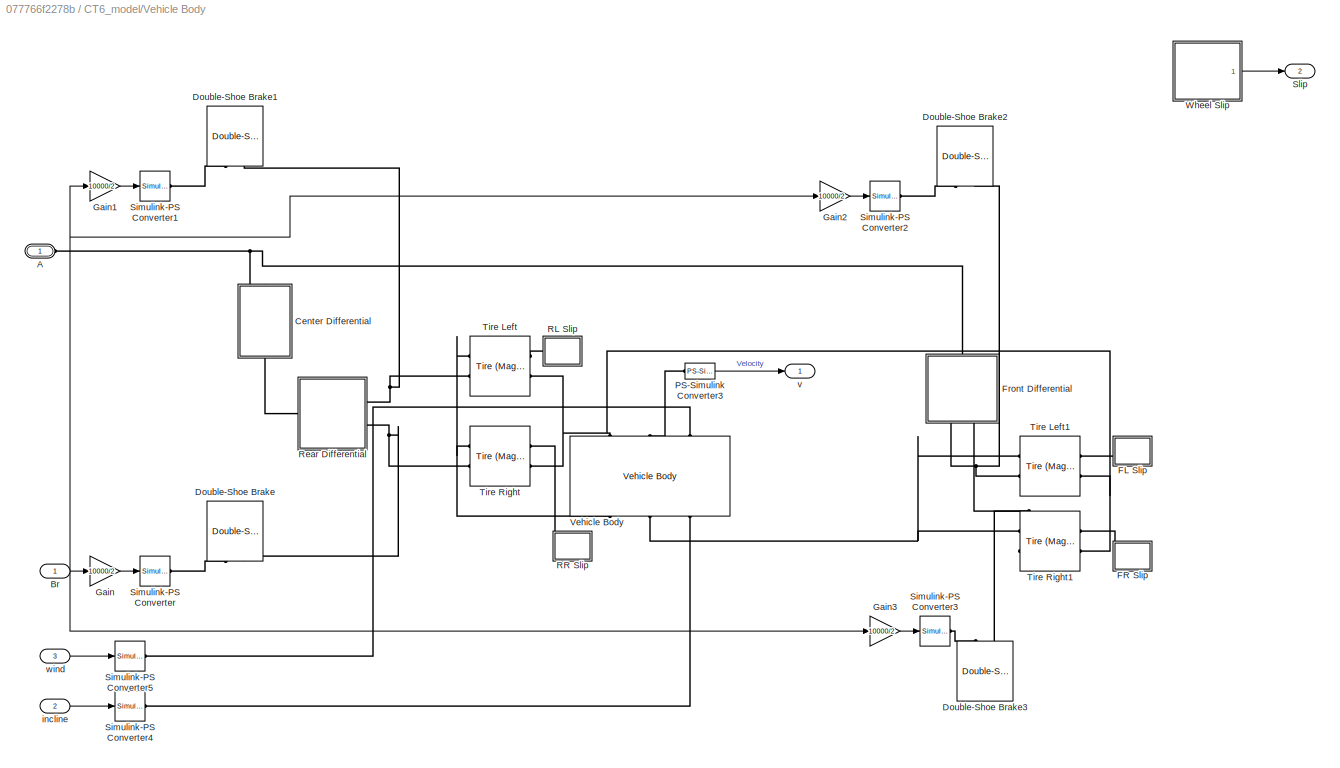
BLOCK [SubSystem] CT6_model/Vehicle Body
  Ports = [3, 2, 0, 0, 0, 1]
  RequestExecContextInheritance = off
  Tag = PublishSubsystem
  Variant = off
BLOCK [PMIOPort] CT6_model/Vehicle Body/A
  Port = 1
  Side = Left
BLOCK [Inport] CT6_model/Vehicle Body/Br
  IconDisplay = Port number
BLOCK [SubSystem] CT6_model/Vehicle Body/Center Differential
  AttributesFormatString = %<ActiveVariant>
  OverrideUsingVariant = Viscous
  Ports = [0, 0, 0, 0, 0, 1, 1]
  RequestExecContextInheritance = off
  Variant = on
BLOCK [PMIOPort] CT6_model/Vehicle Body/Center Differential/F
  Port = 2
  Side = Right
BLOCK [SubSystem] CT6_model/Vehicle Body/Center Differential/Lockup
  Ports = [0, 0, 0, 0, 0, 1, 1]
  RequestExecContextInheritance = off
  Tag = PublishSubsystem
  Variant = off
  VariantControl = Lockup
BLOCK [Reference] CT6_model/Vehicle Body/Center Differential/Lockup/Clutch Pack  REF=sdl_lib/Clutches/Disk Friction Clutch
  Ports = [0, 0, 0, 0, 0, 2, 1]
  SourceBlock = sdl_lib/Clutches/Disk Friction Clutch
  SourceProductBaseCode = LD
  SourceProductName = Simscape Driveline
  SourceType = Disk Friction Clutch
BLOCK [PMIOPort] CT6_model/Vehicle Body/Center Differential/Lockup/F
  Port = 2
  Side = Right
BLOCK [SubSystem] CT6_model/Vehicle Body/Center Differential/Lockup/Lag
  Ports = [0, 0, 0, 0, 0, 1, 1]
  RequestExecContextInheritance = off
  Variant = off
BLOCK [PMIOPort] CT6_model/Vehicle Body/Center Differential/Lockup/Lag/I
  Port = 1
  Side = Left
BLOCK [PMIOPort] CT6_model/Vehicle Body/Center Differential/Lockup/Lag/O
  Port = 2
  Side = Right
BLOCK [Reference] CT6_model/Vehicle Body/Center Differential/Lockup/Lag/PS Gain  REF=fl_lib/Physical Signals/Functions/PS Gain
  Ports = [0, 0, 0, 0, 0, 1, 1]
  SourceBlock = fl_lib/Physical Signals/Functions/PS Gain
  SourceProductBaseCode = SS
  SourceProductName = Simscape
  SourceType = PS Gain
BLOCK [Reference] CT6_model/Vehicle Body/Center Differential/Lockup/Lag/PS Integrator  REF=fl_lib/Physical Signals/Linear Operators/PS Integrator
  Ports = [0, 0, 0, 0, 0, 1, 1]
  SourceBlock = fl_lib/Physical Signals/Linear Operators/PS Integrator
  SourceProductBaseCode = SS
  SourceProductName = Simscape
  SourceType = PS Integrator
BLOCK [Reference] CT6_model/Vehicle Body/Center Differential/Lockup/Lag/PS Subtract  REF=fl_lib/Physical Signals/Functions/PS Subtract
  Ports = [0, 0, 0, 0, 0, 2, 1]
  SourceBlock = fl_lib/Physical Signals/Functions/PS Subtract
  SourceProductBaseCode = SS
  SourceProductName = Simscape
  SourceType = PS Subtract
BLOCK [Reference] CT6_model/Vehicle Body/Center Differential/Lockup/Nonlinear Damper  REF=sdl_lib/Couplings & Drives/Springs & Dampers/Nonlinear Rotational
Damper
  Ports = [0, 0, 0, 0, 0, 1, 1]
  SourceBlock = sdl_lib/Couplings & Drives/Springs & Dampers/Nonlinear Rotational\nDamper
  SourceProductBaseCode = LD
  SourceProductName = Simscape Driveline
  SourceType = Nonlinear Rotational\nDamper
BLOCK [Reference] CT6_model/Vehicle Body/Center Differential/Lockup/PS Abs  REF=fl_lib/Physical Signals/Nonlinear Operators/PS Abs
  Ports = [0, 0, 0, 0, 0, 1, 1]
  SourceBlock = fl_lib/Physical Signals/Nonlinear Operators/PS Abs
  SourceProductBaseCode = SS
  SourceProductName = Simscape
  SourceType = PS Abs
BLOCK [PMIOPort] CT6_model/Vehicle Body/Center Differential/Lockup/R
  Port = 1
  Side = Left
BLOCK [Reference] CT6_model/Vehicle Body/Center Differential/Lockup/Torque Sensor  REF=fl_lib/Mechanical/Mechanical Sensors/Ideal Torque Sensor
  Ports = [0, 0, 0, 0, 0, 1, 2]
  SourceBlock = fl_lib/Mechanical/Mechanical Sensors/Ideal Torque Sensor
  SourceProductBaseCode = SS
  SourceProductName = Simscape
  SourceType = Ideal Torque Sensor
BLOCK [Reference] CT6_model/Vehicle Body/Center Differential/Lockup/Trq to P  REF=fl_lib/Physical Signals/Functions/PS Gain
  Ports = [0, 0, 0, 0, 0, 1, 1]
  SourceBlock = fl_lib/Physical Signals/Functions/PS Gain
  SourceProductBaseCode = SS
  SourceProductName = Simscape
  SourceType = PS Gain
BLOCK [SubSystem] CT6_model/Vehicle Body/Center Differential/Open
  Ports = [0, 0, 0, 0, 0, 1, 1]
  RequestExecContextInheritance = off
  Variant = off
  VariantControl = Open
BLOCK [Reference] CT6_model/Vehicle Body/Center Differential/Open/Damper  REF=fl_lib/Mechanical/Rotational Elements/Rotational Damper
  AttributesFormatString = Damping = %<D>
  Ports = [0, 0, 0, 0, 0, 1, 1]
  SourceBlock = fl_lib/Mechanical/Rotational Elements/Rotational Damper
  SourceProductBaseCode = SS
  SourceProductName = Simscape
  SourceType = Rotational Damper
BLOCK [PMIOPort] CT6_model/Vehicle Body/Center Differential/Open/F
  Port = 2
  Side = Right
BLOCK [PMIOPort] CT6_model/Vehicle Body/Center Differential/Open/R
  Port = 1
  Side = Left
BLOCK [PMIOPort] CT6_model/Vehicle Body/Center Differential/R
  Port = 1
  Side = Left
BLOCK [SubSystem] CT6_model/Vehicle Body/Center Differential/Shaft
  Ports = [0, 0, 0, 0, 0, 1, 1]
  RequestExecContextInheritance = off
  Variant = off
  VariantControl = Shaft
BLOCK [PMIOPort] CT6_model/Vehicle Body/Center Differential/Shaft/F
  Port = 2
  Side = Right
BLOCK [PMIOPort] CT6_model/Vehicle Body/Center Differential/Shaft/R
  Port = 1
  Side = Left
BLOCK [Reference] CT6_model/Vehicle Body/Center Differential/Shaft/Torsional Spring-Damper  REF=sdl_lib/Couplings & Drives/Torsional
Spring-Damper
  Ports = [0, 0, 0, 0, 0, 1, 1]
  SourceBlock = sdl_lib/Couplings & Drives/Torsional\nSpring-Damper
  SourceProductBaseCode = LD
  SourceProductName = Simscape Driveline
  SourceType = Torsional\nSpring-Damper
BLOCK [SubSystem] CT6_model/Vehicle Body/Center Differential/Viscous
  Ports = [0, 0, 0, 0, 0, 1, 1]
  RequestExecContextInheritance = off
  Variant = off
  VariantControl = Viscous
BLOCK [PMIOPort] CT6_model/Vehicle Body/Center Differential/Viscous/F
  Port = 2
  Side = Right
BLOCK [Reference] CT6_model/Vehicle Body/Center Differential/Viscous/Nonlinear Damper  REF=sdl_lib/Couplings & Drives/Springs & Dampers/Nonlinear Rotational
Damper
  Ports = [0, 0, 0, 0, 0, 1, 1]
  SourceBlock = sdl_lib/Couplings & Drives/Springs & Dampers/Nonlinear Rotational\nDamper
  SourceProductBaseCode = LD
  SourceProductName = Simscape Driveline
  SourceType = Nonlinear Rotational\nDamper
BLOCK [PMIOPort] CT6_model/Vehicle Body/Center Differential/Viscous/R
  Port = 1
  Side = Left
BLOCK [Reference] CT6_model/Vehicle Body/Double-Shoe Brake  REF=sdl_lib/Brakes & Detents/Rotational/Double-Shoe Brake
  Ports = [0, 0, 0, 0, 0, 2]
  SourceBlock = sdl_lib/Brakes & Detents/Rotational/Double-Shoe Brake
  SourceProductBaseCode = LD
  SourceProductName = Simscape Driveline
  SourceType = Double-Shoe Brake
BLOCK [Reference] CT6_model/Vehicle Body/Double-Shoe Brake1  REF=sdl_lib/Brakes & Detents/Rotational/Double-Shoe Brake
  Ports = [0, 0, 0, 0, 0, 2]
  SourceBlock = sdl_lib/Brakes & Detents/Rotational/Double-Shoe Brake
  SourceProductBaseCode = LD
  SourceProductName = Simscape Driveline
  SourceType = Double-Shoe Brake
BLOCK [Reference] CT6_model/Vehicle Body/Double-Shoe Brake2  REF=sdl_lib/Brakes & Detents/Rotational/Double-Shoe Brake
  Ports = [0, 0, 0, 0, 0, 2]
  SourceBlock = sdl_lib/Brakes & Detents/Rotational/Double-Shoe Brake
  SourceProductBaseCode = LD
  SourceProductName = Simscape Driveline
  SourceType = Double-Shoe Brake
BLOCK [Reference] CT6_model/Vehicle Body/Double-Shoe Brake3  REF=sdl_lib/Brakes & Detents/Rotational/Double-Shoe Brake
  Ports = [0, 0, 0, 0, 0, 2]
  SourceBlock = sdl_lib/Brakes & Detents/Rotational/Double-Shoe Brake
  SourceProductBaseCode = LD
  SourceProductName = Simscape Driveline
  SourceType = Double-Shoe Brake
BLOCK [SubSystem] CT6_model/Vehicle Body/FL Slip
  Ports = [0, 0, 0, 0, 0, 1]
  RequestExecContextInheritance = off
  Variant = off
BLOCK [PMIOPort] CT6_model/Vehicle Body/FL Slip/Conn1
  Port = 1
  Side = Left
BLOCK [Goto] CT6_model/Vehicle Body/FL Slip/Goto
  GotoTag = FL
  TagVisibility = global
BLOCK [Reference] CT6_model/Vehicle Body/FL Slip/PS-Simulink Converter1  REF=nesl_utility/PS-Simulink
Converter
  Ports = [0, 1, 0, 0, 0, 1]
  SourceBlock = nesl_utility/PS-Simulink\nConverter
  SourceProductBaseCode = SS
  SourceProductName = Simscape
  SourceType = PS-Simulink\nConverter
BLOCK [SubSystem] CT6_model/Vehicle Body/FR Slip
  Ports = [0, 0, 0, 0, 0, 1]
  RequestExecContextInheritance = off
  Variant = off
BLOCK [PMIOPort] CT6_model/Vehicle Body/FR Slip/Conn1
  Port = 1
  Side = Left
BLOCK [Goto] CT6_model/Vehicle Body/FR Slip/Goto
  GotoTag = FR
  TagVisibility = global
BLOCK [Reference] CT6_model/Vehicle Body/FR Slip/PS-Simulink Converter1  REF=nesl_utility/PS-Simulink
Converter
  Ports = [0, 1, 0, 0, 0, 1]
  SourceBlock = nesl_utility/PS-Simulink\nConverter
  SourceProductBaseCode = SS
  SourceProductName = Simscape
  SourceType = PS-Simulink\nConverter
BLOCK [SubSystem] CT6_model/Vehicle Body/Front Differential
  AttributesFormatString = %<ActiveVariant>
  OverrideUsingVariant = Open
  Ports = [0, 0, 0, 0, 0, 1, 2]
  RequestExecContextInheritance = off
  Variant = on
BLOCK [PMIOPort] CT6_model/Vehicle Body/Front Differential/D
  Port = 1
  Side = Left
BLOCK [SubSystem] CT6_model/Vehicle Body/Front Differential/Open
  Ports = [0, 0, 0, 0, 0, 1, 2]
  RequestExecContextInheritance = off
  Variant = off
  VariantControl = Open
BLOCK [PMIOPort] CT6_model/Vehicle Body/Front Differential/Open/D
  Port = 1
  Side = Left
BLOCK [Reference] CT6_model/Vehicle Body/Front Differential/Open/Differential  REF=sdl_lib/Gears/Differential
  Ports = [0, 0, 0, 0, 0, 1, 2]
  SourceBlock = sdl_lib/Gears/Differential
  SourceProductBaseCode = LD
  SourceProductName = Simscape Driveline
  SourceType = Differential
BLOCK [PMIOPort] CT6_model/Vehicle Body/Front Differential/Open/S1
  Port = 2
  Side = Right
BLOCK [PMIOPort] CT6_model/Vehicle Body/Front Differential/Open/S2
  Port = 3
  Side = Right
BLOCK [PMIOPort] CT6_model/Vehicle Body/Front Differential/S1
  Port = 2
  Side = Right
BLOCK [PMIOPort] CT6_model/Vehicle Body/Front Differential/S2
  Port = 3
  Side = Right
BLOCK [SubSystem] CT6_model/Vehicle Body/Front Differential/Torsen
  Ports = [0, 0, 0, 0, 0, 1, 2]
  RequestExecContextInheritance = off
  Variant = off
  VariantControl = Torsen
BLOCK [PMIOPort] CT6_model/Vehicle Body/Front Differential/Torsen/D
  Port = 1
  Side = Left
BLOCK [Reference] CT6_model/Vehicle Body/Front Differential/Torsen/Input Pinion Crown Gear  REF=sdl_lib/Gears/Simple Gear
  Ports = [0, 0, 0, 0, 0, 1, 1]
  SourceBlock = sdl_lib/Gears/Simple Gear
  SourceProductBaseCode = LD
  SourceProductName = Simscape Driveline
  SourceType = Simple Gear
BLOCK [PMIOPort] CT6_model/Vehicle Body/Front Differential/Torsen/S1
  Port = 2
  Side = Right
BLOCK [PMIOPort] CT6_model/Vehicle Body/Front Differential/Torsen/S2
  Port = 3
  Side = Right
BLOCK [Reference] CT6_model/Vehicle Body/Front Differential/Torsen/Sun-Planet Worm Gear 1  REF=sdl_lib/Gears/Planetary
Subcomponents/Sun-Planet Worm Gear
  Ports = [0, 0, 0, 0, 0, 1, 2]
  SourceBlock = sdl_lib/Gears/Planetary\nSubcomponents/Sun-Planet Worm Gear
  SourceProductBaseCode = LD
  SourceProductName = Simscape Driveline
  SourceType = Sun-Planet Worm Gear
BLOCK [Reference] CT6_model/Vehicle Body/Front Differential/Torsen/Sun-Planet Worm Gear 2  REF=sdl_lib/Gears/Planetary
Subcomponents/Sun-Planet Worm Gear
  Ports = [0, 0, 0, 0, 0, 1, 2]
  SourceBlock = sdl_lib/Gears/Planetary\nSubcomponents/Sun-Planet Worm Gear
  SourceProductBaseCode = LD
  SourceProductName = Simscape Driveline
  SourceType = Sun-Planet Worm Gear
BLOCK [Reference] CT6_model/Vehicle Body/Front Differential/Torsen/Worm Wheels  REF=sdl_lib/Gears/Simple Gear
  Ports = [0, 0, 0, 0, 0, 1, 1]
  SourceBlock = sdl_lib/Gears/Simple Gear
  SourceProductBaseCode = LD
  SourceProductName = Simscape Driveline
  SourceType = Simple Gear
BLOCK [Gain] CT6_model/Vehicle Body/Gain
  Gain = 10000/2
  OutDataTypeStr = Inherit: Inherit via internal rule
  ParamDataTypeStr = Inherit: Inherit via internal rule
  SaturateOnIntegerOverflow = off
BLOCK [Gain] CT6_model/Vehicle Body/Gain1
  Gain = 10000/2
  OutDataTypeStr = Inherit: Inherit via internal rule
  ParamDataTypeStr = Inherit: Inherit via internal rule
  SaturateOnIntegerOverflow = off
BLOCK [Gain] CT6_model/Vehicle Body/Gain2
  Gain = 10000/2
  OutDataTypeStr = Inherit: Inherit via internal rule
  ParamDataTypeStr = Inherit: Inherit via internal rule
  SaturateOnIntegerOverflow = off
BLOCK [Gain] CT6_model/Vehicle Body/Gain3
  Gain = 10000/2
  OutDataTypeStr = Inherit: Inherit via internal rule
  ParamDataTypeStr = Inherit: Inherit via internal rule
  SaturateOnIntegerOverflow = off
BLOCK [Reference] CT6_model/Vehicle Body/PS-Simulink Converter3  REF=nesl_utility/PS-Simulink
Converter
  Ports = [0, 1, 0, 0, 0, 1]
  SourceBlock = nesl_utility/PS-Simulink\nConverter
  SourceProductBaseCode = SS
  SourceProductName = Simscape
  SourceType = PS-Simulink\nConverter
BLOCK [SubSystem] CT6_model/Vehicle Body/RL Slip
  Ports = [0, 0, 0, 0, 0, 1]
  RequestExecContextInheritance = off
  Variant = off
BLOCK [PMIOPort] CT6_model/Vehicle Body/RL Slip/Conn1
  Port = 1
  Side = Left
BLOCK [Goto] CT6_model/Vehicle Body/RL Slip/Goto
  GotoTag = RL
  TagVisibility = global
BLOCK [Reference] CT6_model/Vehicle Body/RL Slip/PS-Simulink Converter1  REF=nesl_utility/PS-Simulink
Converter
  Ports = [0, 1, 0, 0, 0, 1]
  SourceBlock = nesl_utility/PS-Simulink\nConverter
  SourceProductBaseCode = SS
  SourceProductName = Simscape
  SourceType = PS-Simulink\nConverter
BLOCK [Scope] CT6_model/Vehicle Body/RL Slip/Scope
  NumInputPorts = 1
  Ports = [1]
  ScopeSpecificationString = Simulink.scopes.TimeScopeBlockCfg('CurrentConfiguration', extmgr.ConfigurationSet(extmgr.Configuration('Core','General UI',true),extmgr.Configuration('Core','Source UI',true),extmgr.Configuration('Sources','WiredSimulink',true,'DataLoggingVariableName','ScopeData2'),extmgr.Configuration('Visuals','Time Domain',true,'SerializedDisplays',{struct('MinYLimReal','-1.12497','MaxYLimReal','0.12503','YLab...<+1392ch>
BLOCK [SubSystem] CT6_model/Vehicle Body/RR Slip
  Ports = [0, 0, 0, 0, 0, 1]
  RequestExecContextInheritance = off
  Variant = off
BLOCK [PMIOPort] CT6_model/Vehicle Body/RR Slip/Conn1
  Port = 1
  Side = Left
BLOCK [Goto] CT6_model/Vehicle Body/RR Slip/Goto
  GotoTag = RR
  TagVisibility = global
BLOCK [Reference] CT6_model/Vehicle Body/RR Slip/PS-Simulink Converter1  REF=nesl_utility/PS-Simulink
Converter
  Ports = [0, 1, 0, 0, 0, 1]
  SourceBlock = nesl_utility/PS-Simulink\nConverter
  SourceProductBaseCode = SS
  SourceProductName = Simscape
  SourceType = PS-Simulink\nConverter
BLOCK [SubSystem] CT6_model/Vehicle Body/Rear Differential
  AttributesFormatString = %<ActiveVariant>
  OverrideUsingVariant = Open
  Ports = [0, 0, 0, 0, 0, 1, 2]
  RequestExecContextInheritance = off
  Variant = on
BLOCK [PMIOPort] CT6_model/Vehicle Body/Rear Differential/D
  Port = 1
  Side = Left
BLOCK [SubSystem] CT6_model/Vehicle Body/Rear Differential/Open
  Ports = [0, 0, 0, 0, 0, 1, 2]
  RequestExecContextInheritance = off
  Tag = PublishSubsystem
  Variant = off
  VariantControl = Open
BLOCK [PMIOPort] CT6_model/Vehicle Body/Rear Differential/Open/D
  Port = 1
  Side = Left
BLOCK [Reference] CT6_model/Vehicle Body/Rear Differential/Open/Differential  REF=sdl_lib/Gears/Differential
  Ports = [0, 0, 0, 0, 0, 1, 2]
  SourceBlock = sdl_lib/Gears/Differential
  SourceProductBaseCode = LD
  SourceProductName = Simscape Driveline
  SourceType = Differential
BLOCK [PMIOPort] CT6_model/Vehicle Body/Rear Differential/Open/S1
  Port = 2
  Side = Right
BLOCK [PMIOPort] CT6_model/Vehicle Body/Rear Differential/Open/S2
  Port = 3
  Side = Right
BLOCK [PMIOPort] CT6_model/Vehicle Body/Rear Differential/S1
  Port = 2
  Side = Right
BLOCK [PMIOPort] CT6_model/Vehicle Body/Rear Differential/S2
  Port = 3
  Side = Right
BLOCK [SubSystem] CT6_model/Vehicle Body/Rear Differential/Torsen
  Ports = [0, 0, 0, 0, 0, 1, 2]
  RequestExecContextInheritance = off
  Tag = PublishSubsystem
  Variant = off
  VariantControl = Torsen
BLOCK [PMIOPort] CT6_model/Vehicle Body/Rear Differential/Torsen/D
  Port = 1
  Side = Left
BLOCK [Reference] CT6_model/Vehicle Body/Rear Differential/Torsen/Input Pinion Crown Gear  REF=sdl_lib/Gears/Simple Gear
  Ports = [0, 0, 0, 0, 0, 1, 1]
  SourceBlock = sdl_lib/Gears/Simple Gear
  SourceProductBaseCode = LD
  SourceProductName = Simscape Driveline
  SourceType = Simple Gear
BLOCK [PMIOPort] CT6_model/Vehicle Body/Rear Differential/Torsen/S1
  Port = 2
  Side = Right
BLOCK [PMIOPort] CT6_model/Vehicle Body/Rear Differential/Torsen/S2
  Port = 3
  Side = Right
BLOCK [Reference] CT6_model/Vehicle Body/Rear Differential/Torsen/Sun-Planet Worm Gear 1  REF=sdl_lib/Gears/Planetary
Subcomponents/Sun-Planet Worm Gear
  Ports = [0, 0, 0, 0, 0, 1, 2]
  SourceBlock = sdl_lib/Gears/Planetary\nSubcomponents/Sun-Planet Worm Gear
  SourceProductBaseCode = LD
  SourceProductName = Simscape Driveline
  SourceType = Sun-Planet Worm Gear
BLOCK [Reference] CT6_model/Vehicle Body/Rear Differential/Torsen/Sun-Planet Worm Gear 2  REF=sdl_lib/Gears/Planetary
Subcomponents/Sun-Planet Worm Gear
  Ports = [0, 0, 0, 0, 0, 1, 2]
  SourceBlock = sdl_lib/Gears/Planetary\nSubcomponents/Sun-Planet Worm Gear
  SourceProductBaseCode = LD
  SourceProductName = Simscape Driveline
  SourceType = Sun-Planet Worm Gear
BLOCK [Reference] CT6_model/Vehicle Body/Rear Differential/Torsen/Worm Wheels  REF=sdl_lib/Gears/Simple Gear
  Ports = [0, 0, 0, 0, 0, 1, 1]
  SourceBlock = sdl_lib/Gears/Simple Gear
  SourceProductBaseCode = LD
  SourceProductName = Simscape Driveline
  SourceType = Simple Gear
BLOCK [Reference] CT6_model/Vehicle Body/Simulink-PS Converter  REF=nesl_utility/Simulink-PS
Converter
  Ports = [1, 0, 0, 0, 0, 0, 1]
  SourceBlock = nesl_utility/Simulink-PS\nConverter
  SourceProductBaseCode = SS
  SourceProductName = Simscape
  SourceType = Simulink-PS\nConverter
BLOCK [Reference] CT6_model/Vehicle Body/Simulink-PS Converter1  REF=nesl_utility/Simulink-PS
Converter
  Ports = [1, 0, 0, 0, 0, 0, 1]
  SourceBlock = nesl_utility/Simulink-PS\nConverter
  SourceProductBaseCode = SS
  SourceProductName = Simscape
  SourceType = Simulink-PS\nConverter
BLOCK [Reference] CT6_model/Vehicle Body/Simulink-PS Converter2  REF=nesl_utility/Simulink-PS
Converter
  Ports = [1, 0, 0, 0, 0, 0, 1]
  SourceBlock = nesl_utility/Simulink-PS\nConverter
  SourceProductBaseCode = SS
  SourceProductName = Simscape
  SourceType = Simulink-PS\nConverter
BLOCK [Reference] CT6_model/Vehicle Body/Simulink-PS Converter3  REF=nesl_utility/Simulink-PS
Converter
  Ports = [1, 0, 0, 0, 0, 0, 1]
  SourceBlock = nesl_utility/Simulink-PS\nConverter
  SourceProductBaseCode = SS
  SourceProductName = Simscape
  SourceType = Simulink-PS\nConverter
BLOCK [Reference] CT6_model/Vehicle Body/Simulink-PS Converter4  REF=nesl_utility/Simulink-PS
Converter
  Ports = [1, 0, 0, 0, 0, 0, 1]
  SourceBlock = nesl_utility/Simulink-PS\nConverter
  SourceProductBaseCode = SS
  SourceProductName = Simscape
  SourceType = Simulink-PS\nConverter
BLOCK [Reference] CT6_model/Vehicle Body/Simulink-PS Converter5  REF=nesl_utility/Simulink-PS
Converter
  Ports = [1, 0, 0, 0, 0, 0, 1]
  SourceBlock = nesl_utility/Simulink-PS\nConverter
  SourceProductBaseCode = SS
  SourceProductName = Simscape
  SourceType = Simulink-PS\nConverter
BLOCK [Outport] CT6_model/Vehicle Body/Slip 
  IconDisplay = Port number
  Port = 2
BLOCK [Reference] CT6_model/Vehicle Body/Tire Left  REF=sdl_lib/Tires & Vehicles/Tire (Magic Formula)
  Ports = [0, 0, 0, 0, 0, 2, 2]
  SourceBlock = sdl_lib/Tires & Vehicles/Tire (Magic Formula)
  SourceProductBaseCode = LD
  SourceProductName = Simscape Driveline
  SourceType = Tire (Magic Formula)
BLOCK [Reference] CT6_model/Vehicle Body/Tire Left1  REF=sdl_lib/Tires & Vehicles/Tire (Magic Formula)
  Ports = [0, 0, 0, 0, 0, 2, 2]
  SourceBlock = sdl_lib/Tires & Vehicles/Tire (Magic Formula)
  SourceProductBaseCode = LD
  SourceProductName = Simscape Driveline
  SourceType = Tire (Magic Formula)
BLOCK [Reference] CT6_model/Vehicle Body/Tire Right  REF=sdl_lib/Tires & Vehicles/Tire (Magic Formula)
  Ports = [0, 0, 0, 0, 0, 2, 2]
  SourceBlock = sdl_lib/Tires & Vehicles/Tire (Magic Formula)
  SourceProductBaseCode = LD
  SourceProductName = Simscape Driveline
  SourceType = Tire (Magic Formula)
BLOCK [Reference] CT6_model/Vehicle Body/Tire Right1  REF=sdl_lib/Tires & Vehicles/Tire (Magic Formula)
  Ports = [0, 0, 0, 0, 0, 2, 2]
  SourceBlock = sdl_lib/Tires & Vehicles/Tire (Magic Formula)
  SourceProductBaseCode = LD
  SourceProductName = Simscape Driveline
  SourceType = Tire (Magic Formula)
BLOCK [Reference] CT6_model/Vehicle Body/Vehicle Body  REF=sdl_lib/Tires & Vehicles/Vehicle Body
  Ports = [0, 0, 0, 0, 0, 3, 3]
  SourceBlock = sdl_lib/Tires & Vehicles/Vehicle Body
  SourceProductBaseCode = LD
  SourceProductName = Simscape Driveline
  SourceType = Vehicle Body
BLOCK [SubSystem] CT6_model/Vehicle Body/Wheel Slip
  Ports = [0, 1]
  RequestExecContextInheritance = off
  Variant = off
BLOCK [From] CT6_model/Vehicle Body/Wheel Slip/FL
  GotoTag = FL
  TagVisibility = global
BLOCK [From] CT6_model/Vehicle Body/Wheel Slip/FR
  GotoTag = FR
  TagVisibility = global
BLOCK [Mux] CT6_model/Vehicle Body/Wheel Slip/Mux
  DisplayOption = bar
  Ports = [4, 1]
BLOCK [From] CT6_model/Vehicle Body/Wheel Slip/RL
  GotoTag = RL
  TagVisibility = global
BLOCK [From] CT6_model/Vehicle Body/Wheel Slip/RR
  GotoTag = RR
  TagVisibility = global
BLOCK [Outport] CT6_model/Vehicle Body/Wheel Slip/Slip 
  IconDisplay = Port number
BLOCK [Inport] CT6_model/Vehicle Body/incline
  IconDisplay = Port number
  Port = 2
BLOCK [Outport] CT6_model/Vehicle Body/v
  IconDisplay = Port number
BLOCK [Inport] CT6_model/Vehicle Body/wind
  IconDisplay = Port number
  Port = 3
BLOCK [Inport] CT6_model/brake 
  IconDisplay = Port number
  Port = 2
BLOCK [Inport] CT6_model/incline
  IconDisplay = Port number
  Port = 3
BLOCK [Inport] CT6_model/throttle
  IconDisplay = Port number
BLOCK [Inport] CT6_model/wind
  IconDisplay = Port number
  Port = 4
BLOCK [SubSystem] Controller
  Ports = [3, 2]
  RequestExecContextInheritance = off
  Variant = off
BLOCK [Goto] Controller/Goto
  GotoTag = throttle
  TagVisibility = global
BLOCK [Goto] Controller/Goto1
  GotoTag = error
  TagVisibility = global
BLOCK [Goto] Controller/Goto2
  GotoTag = brake
  TagVisibility = global
BLOCK [SubSystem] Controller/MATLAB Function
  ErrorFcn = Stateflow.Translate.translate
  PermitHierarchicalResolution = ExplicitOnly
  Ports = [1, 2]
  RequestExecContextInheritance = off
  SFBlockType = MATLAB Function
  TreatAsAtomicUnit = on
  Variant = off
BLOCK [Demux] Controller/MATLAB Function/ Demux 
  Outputs = 1
  Ports = [1, 1]
BLOCK [S-Function] Controller/MATLAB Function/ SFunction 
  EnableBusSupport = on
  FunctionName = sf_sfun
  PortCounts = [1 3]
  Ports = [1, 3]
  SFcnIsStateOwnerBlock = off
  SFunctionDeploymentMode = off
  Tag = Stateflow S-Function sdl_ct6 2
BLOCK [Terminator] Controller/MATLAB Function/ Terminator 
BLOCK [Outport] Controller/MATLAB Function/brk
  IconDisplay = Port number
  Port = 2
BLOCK [Outport] Controller/MATLAB Function/thr
  IconDisplay = Port number
BLOCK [Inport] Controller/MATLAB Function/u
  IconDisplay = Port number
BLOCK [SubSystem] Controller/MATLAB Function1
  ErrorFcn = Stateflow.Translate.translate
  PermitHierarchicalResolution = ExplicitOnly
  Ports = [2, 1]
  RequestExecContextInheritance = off
  SFBlockType = MATLAB Function
  TreatAsAtomicUnit = on
  Variant = off
BLOCK [Demux] Controller/MATLAB Function1/ Demux 
  Outputs = 1
  Ports = [1, 1]
BLOCK [S-Function] Controller/MATLAB Function1/ SFunction 
  EnableBusSupport = on
  FunctionName = sf_sfun
  PortCounts = [2 2]
  Ports = [2, 2]
  SFcnIsStateOwnerBlock = off
  SFunctionDeploymentMode = off
  Tag = Stateflow S-Function sdl_ct6 4
BLOCK [Terminator] Controller/MATLAB Function1/ Terminator 
BLOCK [Inport] Controller/MATLAB Function1/NeutralThr
  IconDisplay = Port number
BLOCK [Inport] Controller/MATLAB Function1/PassThru
  IconDisplay = Port number
  Port = 2
BLOCK [Outport] Controller/MATLAB Function1/throttle
  IconDisplay = Port number
BLOCK [Inport] Controller/NCoast
  IconDisplay = Port number
  Port = 3
BLOCK [Reference] Controller/PID CoCntroller  REF=simulink/Continuous/PID Controller
  Ports = [2, 1]
  SourceBlock = simulink/Continuous/PID Controller
  SourceProductBaseCode = SL
  SourceProductName = Simulink
  SourceType = PID 1dof
BLOCK [Reference] Controller/PID CoCntroller1  REF=simulink/Continuous/PID Controller
  Ports = [2, 1]
  SourceBlock = simulink/Continuous/PID Controller
  SourceProductBaseCode = SL
  SourceProductName = Simulink
  SourceType = PID 1dof
BLOCK [Saturate] Controller/Saturation
  InputPortMap = u0
  LowerLimit = 0
  Ports = [1, 1]
  UpperLimit = 1
BLOCK [Saturate] Controller/Saturation1
  InputPortMap = u0
  LowerLimit = 0
  Ports = [1, 1]
  UpperLimit = 1
BLOCK [Sum] Controller/Sum
  IconShape = round
  InputSameDT = off
  Inputs = |+-
  OutDataTypeStr = Inherit: Inherit via internal rule
  Ports = [2, 1]
  SaturateOnIntegerOverflow = off
BLOCK [Outport] Controller/brake
  IconDisplay = Port number
  Port = 2
BLOCK [Inport] Controller/ref
  IconDisplay = Port number
BLOCK [Outport] Controller/throttle
  IconDisplay = Port number
BLOCK [Inport] Controller/velocity
  IconDisplay = Port number
  Port = 2
BLOCK [From] From
  GotoTag = NCoast
  TagVisibility = global
BLOCK [From] From1
  GotoTag = CylDeact
  TagVisibility = global
BLOCK [From] From2
  GotoTag = FCutoff
  TagVisibility = global
BLOCK [From] From3
  GotoTag = NCoast
  TagVisibility = global
BLOCK [From] From4
  GotoTag = ref
  TagVisibility = global
BLOCK [Goto] Goto
  GotoTag = NCoast
  TagVisibility = global
BLOCK [Goto] Goto1
  GotoTag = CylDeact
  TagVisibility = global
BLOCK [Goto] Goto2
  GotoTag = FCutoff
  TagVisibility = global
BLOCK [Constant] Incline
  Value = 0
BLOCK [SubSystem] Reference Signals
  Ports = []
  RequestExecContextInheritance = off
  Variant = off
BLOCK [SubSystem] Reference Signals/Electrical Test Sequence
  ClipboardFcn = sigbuilder_block('clipboard');
  CloseFcn = sigbuilder_block('close');
  ContinueFcn = sigbuilder_block('continue');
  CopyFcn = sigbuilder_block('copy');
  DeleteFcn = sigbuilder_block('delete');
  LoadFcn = sigbuilder_block('load');
  MaskHideContents = on
  ModelCloseFcn = sigbuilder_block('modelClose');
  NameChangeFcn = sigbuilder_block('namechange');
  OpenFcn = sigbuilder_block('open',[0 0 1440 688.5 ]);
  PauseFcn = sigbuilder_block('pause');
  Ports = [0, 7]
  PreSaveFcn = sigbuilder_block('preSave');
  RequestExecContextInheritance = off
  StartFcn = sigbuilder_block('start');
  StopFcn = sigbuilder_block('stop');
  Tag = STV Subsys
  Variant = off
BLOCK [Outport] Reference Signals/Electrical Test Sequence/Brk Lights
  IconDisplay = Port number
  Port = 7
  Tag = STV Outport
BLOCK [Demux] Reference Signals/Electrical Test Sequence/Demux
  Outputs = 7
  Ports = [1, 7]
  Tag = STV Demux
BLOCK [FromWorkspace] Reference Signals/Electrical Test Sequence/FromWs
  SampleTime = 0
  Tag = STV FromWs
  VariableName = tuvar
  ZeroCross = on
BLOCK [Outport] Reference Signals/Electrical Test Sequence/High Beam
  IconDisplay = Port number
  Port = 6
  Tag = STV Outport
BLOCK [Outport] Reference Signals/Electrical Test Sequence/Ignition
  IconDisplay = Port number
  Tag = STV Outport
BLOCK [Outport] Reference Signals/Electrical Test Sequence/Ind. L
  IconDisplay = Port number
  Port = 3
  Tag = STV Outport
BLOCK [Outport] Reference Signals/Electrical Test Sequence/Ind. R
  IconDisplay = Port number
  Port = 4
  Tag = STV Outport
BLOCK [Outport] Reference Signals/Electrical Test Sequence/Lights
  IconDisplay = Port number
  Port = 5
  Tag = STV Outport
BLOCK [Outport] Reference Signals/Electrical Test Sequence/Starter
  IconDisplay = Port number
  Port = 2
  Tag = STV Outport
BLOCK [Goto] Reference Signals/Goto
  GotoTag = ref
  TagVisibility = global
BLOCK [Goto] Reference Signals/Goto//1
  GotoTag = starter
  TagVisibility = global
BLOCK [Goto] Reference Signals/Goto//2
  GotoTag = ignition
  TagVisibility = global
BLOCK [Goto] Reference Signals/Goto//3
  GotoTag = ind_L
  TagVisibility = global
BLOCK [Goto] Reference Signals/Goto//4
  GotoTag = ind_R
  TagVisibility = global
BLOCK [Goto] Reference Signals/Goto//5
  GotoTag = lights
  TagVisibility = global
BLOCK [Goto] Reference Signals/Goto//6
  GotoTag = beam
  TagVisibility = global
BLOCK [Goto] Reference Signals/Goto//7
  GotoTag = brakeLight
  TagVisibility = global
BLOCK [Goto] Reference Signals/Goto3
  GotoTag = T_env
  TagVisibility = global
BLOCK [Goto] Reference Signals/Goto4
  GotoTag = RH_env
  TagVisibility = global
BLOCK [Goto] Reference Signals/Goto5
  GotoTag = FanSp
  TagVisibility = global
BLOCK [Goto] Reference Signals/Goto6
  GotoTag = S_blend
  TagVisibility = global
BLOCK [Goto] Reference Signals/Goto7
  GotoTag = S_AC
  TagVisibility = global
BLOCK [Goto] Reference Signals/Goto8
  GotoTag = S_flap
  TagVisibility = global
BLOCK [SubSystem] Reference Signals/Signal Builder
  ClipboardFcn = sigbuilder_block('clipboard');
  CloseFcn = sigbuilder_block('close');
  ContinueFcn = sigbuilder_block('continue');
  CopyFcn = sigbuilder_block('copy');
  DeleteFcn = sigbuilder_block('delete');
  LoadFcn = sigbuilder_block('load');
  MaskHideContents = on
  ModelCloseFcn = sigbuilder_block('modelClose');
  NameChangeFcn = sigbuilder_block('namechange');
  OpenFcn = sigbuilder_block('open',[615 201.75 580.5 282 ]);
  PauseFcn = sigbuilder_block('pause');
  Ports = [0, 2]
  PreSaveFcn = sigbuilder_block('preSave');
  RequestExecContextInheritance = off
  StartFcn = sigbuilder_block('start');
  StopFcn = sigbuilder_block('stop');
  Tag = STV Subsys
  Variant = off
BLOCK [Demux] Reference Signals/Signal Builder/Demux
  Outputs = 2
  Ports = [1, 2]
  Tag = STV Demux
BLOCK [FromWorkspace] Reference Signals/Signal Builder/FromWs
  SampleTime = 0
  Tag = STV FromWs
  VariableName = tuvar
  ZeroCross = on
BLOCK [Outport] Reference Signals/Signal Builder/ftp75
  IconDisplay = Port number
  Tag = STV Outport
BLOCK [Outport] Reference Signals/Signal Builder/highway
  IconDisplay = Port number
  Port = 2
  Tag = STV Outport
BLOCK [SubSystem] Reference Signals/System Inputs
  AttributesFormatString = %<ActiveVariant>
  OverrideUsingVariant = Predefined
  Ports = [0, 6]
  RequestExecContextInheritance = off
  Variant = on
  VariantControl = Variant1
BLOCK [Outport] Reference Signals/System Inputs/ RH_env
  IconDisplay = Port number
  Port = 2
BLOCK [Outport] Reference Signals/System Inputs/ S_blend
  IconDisplay = Port number
  Port = 4
BLOCK [Outport] Reference Signals/System Inputs/ S_flap
  IconDisplay = Port number
  Port = 6
BLOCK [Outport] Reference Signals/System Inputs/ T_env
  IconDisplay = Port number
BLOCK [Outport] Reference Signals/System Inputs/ mdot
  IconDisplay = Port number
  Port = 3
BLOCK [SubSystem] Reference Signals/System Inputs/Manual
  Ports = [0, 6]
  RequestExecContextInheritance = off
  Tag = PublishSubsystem
  Variant = off
  VariantControl = Manual
BLOCK [Constant] Reference Signals/System Inputs/Manual/AC
  Value = 0
BLOCK [SubSystem] Reference Signals/System Inputs/Manual/AC Switch
  DialogController = hmiCreateDDGDialog
  IsWebBlock = on
  MaskHideContents = on
  Ports = []
  RequestExecContextInheritance = off
  Variant = off
BLOCK [SubSystem] Reference Signals/System Inputs/Manual/Cabin Relative Humidity
  DialogController = hmiCreateDDGDialog
  IsWebBlock = on
  MaskHideContents = on
  Ports = []
  RequestExecContextInheritance = off
  Variant = off
BLOCK [SubSystem] Reference Signals/System Inputs/Manual/Cabin Temperature (degC)
  DialogController = hmiCreateDDGDialog
  IsWebBlock = on
  MaskHideContents = on
  Ports = []
  RequestExecContextInheritance = off
  Variant = off
BLOCK [Constant] Reference Signals/System Inputs/Manual/Fan
  Value = 0
BLOCK [SubSystem] Reference Signals/System Inputs/Manual/Fan Dial
  DialogController = hmiCreateDDGDialog
  IsWebBlock = on
  MaskHideContents = on
  Ports = []
  RequestExecContextInheritance = off
  Variant = off
BLOCK [From] Reference Signals/System Inputs/Manual/From
  GotoTag = T_env
  TagVisibility = global
BLOCK [From] Reference Signals/System Inputs/Manual/From1
  GotoTag = T_vent
  TagVisibility = global
BLOCK [From] Reference Signals/System Inputs/Manual/From2
  GotoTag = T_cabin
  TagVisibility = global
BLOCK [From] Reference Signals/System Inputs/Manual/From3
  GotoTag = RH_env
  TagVisibility = global
BLOCK [From] Reference Signals/System Inputs/Manual/From4
  GotoTag = RH_vent
  TagVisibility = global
BLOCK [From] Reference Signals/System Inputs/Manual/From5
  GotoTag = RH_cabin
  TagVisibility = global
BLOCK [Constant] Reference Signals/System Inputs/Manual/Heat
BLOCK [SubSystem] Reference Signals/System Inputs/Manual/Heat Dial
  DialogController = hmiCreateDDGDialog
  IsWebBlock = on
  MaskHideContents = on
  Ports = []
  RequestExecContextInheritance = off
  Variant = off
BLOCK [Mux] Reference Signals/System Inputs/Manual/Mux
  DisplayOption = bar
  Inputs = 3
  Ports = [3, 1]
BLOCK [Mux] Reference Signals/System Inputs/Manual/Mux1
  DisplayOption = bar
  Inputs = 3
  Ports = [3, 1]
BLOCK [Outport] Reference Signals/System Inputs/Manual/RH_env
  IconDisplay = Port number
  Port = 2
BLOCK [Constant] Reference Signals/System Inputs/Manual/Recirculation
  Value = 0
BLOCK [SubSystem] Reference Signals/System Inputs/Manual/Recirculation Switch
  DialogController = hmiCreateDDGDialog
  IsWebBlock = on
  MaskHideContents = on
  Ports = []
  RequestExecContextInheritance = off
  Variant = off
BLOCK [Outport] Reference Signals/System Inputs/Manual/S_AC
  IconDisplay = Port number
  Port = 5
BLOCK [Outport] Reference Signals/System Inputs/Manual/S_blend
  IconDisplay = Port number
  Port = 4
BLOCK [Outport] Reference Signals/System Inputs/Manual/S_flap
  IconDisplay = Port number
  Port = 6
BLOCK [Scope] Reference Signals/System Inputs/Manual/Scope
  NumInputPorts = 2
  Ports = [2]
  ScopeSpecificationString = Simulink.scopes.TimeScopeBlockCfg('CurrentConfiguration', extmgr.ConfigurationSet(extmgr.Configuration('Core','General UI',true),extmgr.Configuration('Core','Source UI',true),extmgr.Configuration('Sources','WiredSimulink',true,'DataLoggingVariableName','ScopeData1'),extmgr.Configuration('Visuals','Time Domain',true,'SerializedDisplays',{struct('MinYLimReal','5','MaxYLimReal','40','YLabelReal','','...<+2128ch>
BLOCK [SubSystem] Reference Signals/System Inputs/Manual/Signal Builder
  ClipboardFcn = sigbuilder_block('clipboard');
  CloseFcn = sigbuilder_block('close');
  ContinueFcn = sigbuilder_block('continue');
  CopyFcn = sigbuilder_block('copy');
  DeleteFcn = sigbuilder_block('delete');
  LoadFcn = sigbuilder_block('load');
  MaskHideContents = on
  ModelCloseFcn = sigbuilder_block('modelClose');
  NameChangeFcn = sigbuilder_block('namechange');
  OpenFcn = sigbuilder_block('open',[182.25 533.25 550.5 287.25 ]);
  PauseFcn = sigbuilder_block('pause');
  Ports = [0, 2]
  PreSaveFcn = sigbuilder_block('preSave');
  RequestExecContextInheritance = off
  StartFcn = sigbuilder_block('start');
  StopFcn = sigbuilder_block('stop');
  Tag = STV Subsys
  Variant = off
BLOCK [Demux] Reference Signals/System Inputs/Manual/Signal Builder/Demux
  Outputs = 2
  Ports = [1, 2]
  Tag = STV Demux
BLOCK [FromWorkspace] Reference Signals/System Inputs/Manual/Signal Builder/FromWs
  SampleTime = 0
  Tag = STV FromWs
  VariableName = tuvar
  ZeroCross = on
BLOCK [Outport] Reference Signals/System Inputs/Manual/Signal Builder/RH_env
  IconDisplay = Port number
  Port = 2
  Tag = STV Outport
BLOCK [Outport] Reference Signals/System Inputs/Manual/Signal Builder/T_env
  IconDisplay = Port number
  Tag = STV Outport
BLOCK [Outport] Reference Signals/System Inputs/Manual/T_env
  IconDisplay = Port number
BLOCK [Outport] Reference Signals/System Inputs/Manual/mdot
  IconDisplay = Port number
  Port = 3
BLOCK [SubSystem] Reference Signals/System Inputs/Predefined
  Ports = [0, 6]
  RequestExecContextInheritance = off
  Variant = off
  VariantControl = Predefined
BLOCK [Outport] Reference Signals/System Inputs/Predefined/RH_env
  IconDisplay = Port number
  Port = 2
BLOCK [Outport] Reference Signals/System Inputs/Predefined/S_AC
  IconDisplay = Port number
  Port = 5
BLOCK [Outport] Reference Signals/System Inputs/Predefined/S_blend
  IconDisplay = Port number
  Port = 4
BLOCK [Outport] Reference Signals/System Inputs/Predefined/S_flap
  IconDisplay = Port number
  Port = 6
BLOCK [SubSystem] Reference Signals/System Inputs/Predefined/Signal Builder
  ClipboardFcn = sigbuilder_block('clipboard');
  CloseFcn = sigbuilder_block('close');
  ContinueFcn = sigbuilder_block('continue');
  CopyFcn = sigbuilder_block('copy');
  DeleteFcn = sigbuilder_block('delete');
  LoadFcn = sigbuilder_block('load');
  MaskHideContents = on
  ModelCloseFcn = sigbuilder_block('modelClose');
  NameChangeFcn = sigbuilder_block('namechange');
  OpenFcn = sigbuilder_block('open',[1631.25 107.25 565.5 446.25 ]);
  PauseFcn = sigbuilder_block('pause');
  Ports = [0, 6]
  PreSaveFcn = sigbuilder_block('preSave');
  RequestExecContextInheritance = off
  StartFcn = sigbuilder_block('start');
  StopFcn = sigbuilder_block('stop');
  Tag = STV Subsys
  Variant = off
BLOCK [Demux] Reference Signals/System Inputs/Predefined/Signal Builder/Demux
  Outputs = 6
  Ports = [1, 6]
  Tag = STV Demux
BLOCK [Outport] Reference Signals/System Inputs/Predefined/Signal Builder/FanSp
  IconDisplay = Port number
  Port = 3
  Tag = STV Outport
BLOCK [FromWorkspace] Reference Signals/System Inputs/Predefined/Signal Builder/FromWs
  SampleTime = 0
  Tag = STV FromWs
  VariableName = tuvar
BLOCK [Outport] Reference Signals/System Inputs/Predefined/Signal Builder/RH_env
  IconDisplay = Port number
  Port = 2
  Tag = STV Outport
BLOCK [Outport] Reference Signals/System Inputs/Predefined/Signal Builder/S_AC
  IconDisplay = Port number
  Port = 5
  Tag = STV Outport
BLOCK [Outport] Reference Signals/System Inputs/Predefined/Signal Builder/S_blend
  IconDisplay = Port number
  Port = 4
  Tag = STV Outport
BLOCK [Outport] Reference Signals/System Inputs/Predefined/Signal Builder/S_flap
  IconDisplay = Port number
  Port = 6
  Tag = STV Outport
BLOCK [Outport] Reference Signals/System Inputs/Predefined/Signal Builder/T_env
  IconDisplay = Port number
  Tag = STV Outport
BLOCK [Outport] Reference Signals/System Inputs/Predefined/T_env
  IconDisplay = Port number
BLOCK [Outport] Reference Signals/System Inputs/Predefined/mdot
  IconDisplay = Port number
  Port = 3
BLOCK [Outport] Reference Signals/System Inputs/S_AC
  IconDisplay = Port number
  Port = 5
BLOCK [Scope] Scope
  IOType = viewer
  NumInputPorts = 1
  Ports = []
  ScopeSpecificationString = Simulink.scopes.TimeScopeBlockCfg('CurrentConfiguration', extmgr.ConfigurationSet(extmgr.Configuration('Core','General UI',true),extmgr.Configuration('Core','Source UI',true),extmgr.Configuration('Sources','WiredSimulink',true,'DataLoggingVariableName','ScopeData1'),extmgr.Configuration('Visuals','Time Domain',true,'SerializedDisplays',{struct('MinYLimReal','0.625','MaxYLimReal','4.375','YLabelRea...<+2028ch>
BLOCK [SubSystem] Scopes
  Ports = []
  RequestExecContextInheritance = off
  Variant = off
BLOCK [Scope] Scopes/Distance Travelled
  NumInputPorts = 1
  Ports = [1]
  ScopeSpecificationString = Simulink.scopes.TimeScopeBlockCfg('CurrentConfiguration', extmgr.ConfigurationSet(extmgr.Configuration('Core','General UI',true),extmgr.Configuration('Core','Source UI',true),extmgr.Configuration('Sources','WiredSimulink',true,'DataLoggingVariableName','ScopeData2','DataLoggingSaveFormat','StructureWithTime','DataLoggingMaxPoints','500000','DataLoggingDecimation','1','DataLoggingDecimateData',true...<+2102ch>
BLOCK [Scope] Scopes/Engine RPM
  NumInputPorts = 1
  Ports = [1]
  ScopeSpecificationString = Simulink.scopes.TimeScopeBlockCfg('CurrentConfiguration', extmgr.ConfigurationSet(extmgr.Configuration('Core','General UI',true),extmgr.Configuration('Core','Source UI',true),extmgr.Configuration('Sources','WiredSimulink',true,'DataLoggingVariableName','ScopeData3','DataLoggingSaveFormat','Array','DataLoggingDecimation','1','DataLoggingDecimateData',true),extmgr.Configuration('Visuals','Time Domai...<+1587ch>
BLOCK [From] Scopes/From
  GotoTag = power
BLOCK [From] Scopes/From1
  GotoTag = error
  TagVisibility = global
BLOCK [From] Scopes/From10
  GotoTag = v
  TagVisibility = global
BLOCK [From] Scopes/From2
  GotoTag = throttle
  TagVisibility = global
BLOCK [From] Scopes/From3
  GotoTag = fuel
  TagVisibility = global
BLOCK [From] Scopes/From4
  GotoTag = RPM
  TagVisibility = global
BLOCK [From] Scopes/From5
  GotoTag = gears
  TagVisibility = global
BLOCK [From] Scopes/From6
  GotoTag = brake
  TagVisibility = global
BLOCK [From] Scopes/From7
  GotoTag = slip
  TagVisibility = global
BLOCK [From] Scopes/From8
  GotoTag = fuel
  TagVisibility = global
BLOCK [From] Scopes/From9
  GotoTag = v
  TagVisibility = global
BLOCK [Scope] Scopes/Fuel Consumption
  NumInputPorts = 1
  Ports = [1]
  ScopeSpecificationString = Simulink.scopes.TimeScopeBlockCfg('CurrentConfiguration', extmgr.ConfigurationSet(extmgr.Configuration('Core','General UI',true),extmgr.Configuration('Core','Source UI',true),extmgr.Configuration('Sources','WiredSimulink',true,'DataLoggingVariableName','ScopeData3','DataLoggingSaveFormat','StructureWithTime','DataLoggingMaxPoints','500000','DataLoggingDecimation','1','DataLoggingDecimateData',true...<+1864ch>
BLOCK [Gain] Scopes/Gain
  Gain = 1/3600
  OutDataTypeStr = Inherit: Inherit via internal rule
  ParamDataTypeStr = Inherit: Inherit via internal rule
  SaturateOnIntegerOverflow = off
BLOCK [Scope] Scopes/Gears
  NumInputPorts = 1
  Ports = [1]
  ScopeSpecificationString = Simulink.scopes.TimeScopeBlockCfg('CurrentConfiguration', extmgr.ConfigurationSet(extmgr.Configuration('Core','General UI',true),extmgr.Configuration('Core','Source UI',true),extmgr.Configuration('Sources','WiredSimulink',true,'DataLoggingVariableName','ScopeData1'),extmgr.Configuration('Visuals','Time Domain',true,'SerializedDisplays',{struct('MinYLimReal','-0.5','MaxYLimReal','4.5','YLabelReal',...<+1417ch>
BLOCK [Integrator] Scopes/Integrator
  Ports = [1, 1]
BLOCK [Integrator] Scopes/Integrator1
  Ports = [1, 1]
BLOCK [Display] Scopes/MPG
  Decimation = 1
  Ports = [1]
BLOCK [SubSystem] Scopes/MPG Calc
  Ports = [0, 1]
  RequestExecContextInheritance = off
  Variant = off
BLOCK [Product] Scopes/MPG Calc/Divide
  InputSameDT = off
  Inputs = */
  OutDataTypeStr = Inherit: Inherit via internal rule
  Ports = [2, 1]
  RndMeth = Floor
  SaturateOnIntegerOverflow = off
BLOCK [From] Scopes/MPG Calc/From11
  GotoTag = fuel
  TagVisibility = global
BLOCK [From] Scopes/MPG Calc/From12
  GotoTag = v
  TagVisibility = global
BLOCK [Gain] Scopes/MPG Calc/Gain1
  Gain = 1/3600
  OutDataTypeStr = Inherit: Inherit via internal rule
  ParamDataTypeStr = Inherit: Inherit via internal rule
  SaturateOnIntegerOverflow = off
BLOCK [Gain] Scopes/MPG Calc/Gain2
  Gain = 0.00220462/6
  OutDataTypeStr = Inherit: Inherit via internal rule
  ParamDataTypeStr = Inherit: Inherit via internal rule
  SaturateOnIntegerOverflow = off
BLOCK [Integrator] Scopes/MPG Calc/Integrator2
  Ports = [1, 1]
BLOCK [Integrator] Scopes/MPG Calc/Integrator3
  Ports = [1, 1]
BLOCK [Outport] Scopes/MPG Calc/Out1
  IconDisplay = Port number
BLOCK [Scope] Scopes/Total Fuel Consumption
  NumInputPorts = 1
  Ports = [1]
  ScopeSpecificationString = Simulink.scopes.TimeScopeBlockCfg('CurrentConfiguration', extmgr.ConfigurationSet(extmgr.Configuration('Core','General UI',true),extmgr.Configuration('Core','Source UI',true),extmgr.Configuration('Sources','WiredSimulink',true,'DataLoggingVariableName','ScopeData1'),extmgr.Configuration('Visuals','Time Domain',true,'SerializedDisplays',{struct('MinYLimReal','-217.51721','MaxYLimReal','1957.65493',...<+1738ch>
BLOCK [Scope] Scopes/Vehicle Speed
  NumInputPorts = 1
  Ports = [1]
  ScopeSpecificationString = Simulink.scopes.TimeScopeBlockCfg('CurrentConfiguration', extmgr.ConfigurationSet(extmgr.Configuration('Core','General UI',true),extmgr.Configuration('Core','Source UI',true),extmgr.Configuration('Sources','WiredSimulink',true,'DataLoggingVariableName','ScopeData2','DataLoggingSaveFormat','StructureWithTime','DataLoggingMaxPoints','500000','DataLoggingDecimation','1','DataLoggingDecimateData',true...<+1857ch>
BLOCK [Scope] Scopes/Wheel Slip 
  NumInputPorts = 1
  Ports = [1]
  ScopeSpecificationString = Simulink.scopes.TimeScopeBlockCfg('CurrentConfiguration', extmgr.ConfigurationSet(extmgr.Configuration('Core','General UI',true),extmgr.Configuration('Core','Source UI',true),extmgr.Configuration('Sources','WiredSimulink',true,'DataLoggingVariableName','ScopeData1'),extmgr.Configuration('Visuals','Time Domain',true,'SerializedDisplays',{struct('MinYLimReal','-2.23274','MaxYLimReal','0.27988','YLab...<+1510ch>
BLOCK [Scope] Scopes/brake 
  NumInputPorts = 1
  Ports = [1]
  ScopeSpecificationString = Simulink.scopes.TimeScopeBlockCfg('CurrentConfiguration', extmgr.ConfigurationSet(extmgr.Configuration('Core','General UI',true),extmgr.Configuration('Core','Source UI',true),extmgr.Configuration('Sources','WiredSimulink',true,'DataLoggingVariableName','ScopeData2'),extmgr.Configuration('Visuals','Time Domain',true,'SerializedDisplays',{struct('MinYLimReal','-0.06327','MaxYLimReal','0.56947','YLab...<+1443ch>
BLOCK [Scope] Scopes/error
  NumInputPorts = 1
  Ports = [1]
  ScopeSpecificationString = Simulink.scopes.TimeScopeBlockCfg('CurrentConfiguration', extmgr.ConfigurationSet(extmgr.Configuration('Core','General UI',true),extmgr.Configuration('Core','Source UI',true),extmgr.Configuration('Sources','WiredSimulink',true,'DataLoggingVariableName','ScopeData4'),extmgr.Configuration('Visuals','Time Domain',true,'SerializedDisplays',{struct('MinYLimReal','-3.28356','MaxYLimReal','4.7635','YLabe...<+1458ch>
BLOCK [Scope] Scopes/power
  NumInputPorts = 1
  Ports = [1]
  ScopeSpecificationString = Simulink.scopes.TimeScopeBlockCfg('CurrentConfiguration', extmgr.ConfigurationSet(extmgr.Configuration('Core','General UI',true),extmgr.Configuration('Core','Source UI',true),extmgr.Configuration('Sources','WiredSimulink',true,'DataLoggingVariableName','ScopeData1'),extmgr.Configuration('Visuals','Time Domain',true,'SerializedDisplays',{struct('MinYLimReal','-5116.01734','MaxYLimReal','46044.15604...<+1460ch>
BLOCK [Scope] Scopes/throttle
  NumInputPorts = 1
  Ports = [1]
  ScopeSpecificationString = Simulink.scopes.TimeScopeBlockCfg('CurrentConfiguration', extmgr.ConfigurationSet(extmgr.Configuration('Core','General UI',true),extmgr.Configuration('Core','Source UI',true),extmgr.Configuration('Sources','WiredSimulink',true,'DataLoggingVariableName','ScopeData5'),extmgr.Configuration('Visuals','Time Domain',true,'SerializedDisplays',{struct('MinYLimReal','0.05859','MaxYLimReal','0.06216','YLabe...<+1440ch>
BLOCK [SubSystem] Supervisory Control
  Ports = [2, 3]
  RequestExecContextInheritance = off
  Variant = off
BLOCK [Outport] Supervisory Control/CylDeact
  IconDisplay = Port number
  Port = 3
BLOCK [Outport] Supervisory Control/FCut
  IconDisplay = Port number
BLOCK [SubSystem] Supervisory Control/MATLAB Function
  ErrorFcn = Stateflow.Translate.translate
  PermitHierarchicalResolution = ExplicitOnly
  Ports = [2, 1]
  RequestExecContextInheritance = off
  SFBlockType = MATLAB Function
  TreatAsAtomicUnit = on
  Variant = off
BLOCK [Demux] Supervisory Control/MATLAB Function/ Demux 
  Outputs = 1
  Ports = [1, 1]
BLOCK [S-Function] Supervisory Control/MATLAB Function/ SFunction 
  EnableBusSupport = on
  FunctionName = sf_sfun
  PortCounts = [2 2]
  Ports = [2, 2]
  SFcnIsStateOwnerBlock = off
  SFunctionDeploymentMode = off
  Tag = Stateflow S-Function sdl_ct6 5
BLOCK [Terminator] Supervisory Control/MATLAB Function/ Terminator 
BLOCK [Inport] Supervisory Control/MATLAB Function/refSp
  IconDisplay = Port number
  Port = 2
BLOCK [Inport] Supervisory Control/MATLAB Function/speed
  IconDisplay = Port number
BLOCK [Outport] Supervisory Control/MATLAB Function/stop
  IconDisplay = Port number
BLOCK [Inport] Supervisory Control/RefSp
  IconDisplay = Port number
BLOCK [SubSystem] Supervisory Control/Signal Builder1
  ClipboardFcn = sigbuilder_block('clipboard');
  CloseFcn = sigbuilder_block('close');
  ContinueFcn = sigbuilder_block('continue');
  CopyFcn = sigbuilder_block('copy');
  DeleteFcn = sigbuilder_block('delete');
  LoadFcn = sigbuilder_block('load',[874.5 368.25 565.5 361.5 ]);
  MaskHideContents = on
  ModelCloseFcn = sigbuilder_block('modelClose');
  NameChangeFcn = sigbuilder_block('namechange');
  OpenFcn = sigbuilder_block('open',[429.75 192 565.5 402.75 ]);
  PauseFcn = sigbuilder_block('pause');
  Ports = [0, 2]
  PreSaveFcn = sigbuilder_block('preSave');
  RequestExecContextInheritance = off
  StartFcn = sigbuilder_block('start');
  StopFcn = sigbuilder_block('stop');
  Tag = STV Subsys
  Variant = off
BLOCK [Outport] Supervisory Control/Signal Builder1/CylDeact
  IconDisplay = Port number
  Port = 2
  Tag = STV Outport
BLOCK [Demux] Supervisory Control/Signal Builder1/Demux
  Outputs = 2
  Ports = [1, 2]
  Tag = STV Demux
BLOCK [FromWorkspace] Supervisory Control/Signal Builder1/FromWs
  SampleTime = 0
  Tag = STV FromWs
  VariableName = tuvar
  ZeroCross = on
BLOCK [Outport] Supervisory Control/Signal Builder1/coast
  IconDisplay = Port number
  Tag = STV Outport
BLOCK [Inport] Supervisory Control/Speed
  IconDisplay = Port number
  Port = 2
BLOCK [Outport] Supervisory Control/nCoast
  IconDisplay = Port number
  Port = 2
BLOCK [Constant] wind
  Value = 0
ANNOTATION (root): velocity
ANNOTATION CT6_model: 1. Configure system inputs: Predefined or Manual 2. Plot psychometric chart for cabin air ( see code ) 3. Explore simulation results using sscexplore 4. Open the HVAC example library 5. Learn more about this example
ANNOTATION CT6_model: Deprecated
ANNOTATION CT6_model: Vehicle HVAC System
ANNOTATION CT6_model/8-Speed/Clutch schedule: 0 - Disengaged, 1 - Engaged
ANNOTATION CT6_model/8-Speed/Clutch schedule: Clutch Schedule
ANNOTATION CT6_model/8-Speed/Clutch schedule: Gear A B C D E Ratio 8 1 0 0 1 1 (1+g2)/g2 7 1 0 1 1 0 (1+g2(1+g1))/(g2(1+g1)) 6 0 0 1 1 1 1 5 0 1 1 1 0 ((1+g3)+(g2*g4)(1+g1))/((1+g3)(1+g4)+(g2*g4)(1+g1)) 4 0 1 0 1 1 (1+g2)/(1+g2+g3) 3 0 1 1 0 1 (1+g3+g4)/((1+g4)(1+g3)) 2 1 1 0 0 1 1/(1+g1) 1 1 1 1 0 0 1/(1+g4) R 1 1 0 1 0 -((1+g2)/g2)/((1+g1)-g1*(1+g4))
ANNOTATION CT6_model/8-Speed/Clutch schedule: g1: Planetary 1 ring/sun gear ratio g2: Planetary 2 ring/sun gear ratio g3: Planetary 3 ring/sun gear ratio g4: Planetary 4 ring/sun gear ratio
ANNOTATION CT6_model/Electrical System: *test battery capacity engine not running *split electrical load into 2 *OEM *automated vehicle load *add dome lights *vehicle settings *user customizable settings *physical switch settings
ANNOTATION CT6_model/Electrical System: to do:
ANNOTATION CT6_model/Electrical System/Alternator: The diode ensures that the alternator only generates a current when the voltage exceeds the rectifier's two diode voltage drops. The Thermal Resistor represents the stator winding resistance. Both the diode drop and the resistor are approximations to what is in reality a more complex AC system. Parameters should be tuned to match datasheet or measured values for current as a function of engine RPM...<+1ch>
ANNOTATION CT6_model/Electrical System/Alternator/Back EMF and Torque/Torque Voltage Calculations: w
ANNOTATION CT6_model/Electrical System/Engine with Idle Controller: This is a very simplified representation of the engine behavior during starting and idling. For more accuracy, the Simscape Driveline(TM) Generic Engine block can be used.
ANNOTATION CT6_model/Electrical System/Starter Solenoid: Solenoid plunger has travel of 10mm. When plunger position is 10mm, the clutch is fully disengaged, and when the plunger is anywhere between 5mm and 0mm, the clutch is fully engaged. Switch closes and enables the starter motor only when the plunger is between 0 and 2mm.
ANNOTATION CT6_model/Electrical System/Starter Solenoid: The clutch could be more accurately modeled using the Dog Clutch in Simscape Driveline(TM). Additionally, the Simscape Driveline Unidirectional Clutch could be used to ensure that once the engine catches it does not backdrive the starter motor.
ANNOTATION CT6_model/HVAC/Refrigerant1: ac effect on fuel economy
ANNOTATION CT6_model/HVAC/Refrigerant1: is compressor mechanical driven, or electriccal
ANNOTATION CT6_model/Shift Logic/Shift Logic/ComputeThreshold: Threshold Calculation
ANNOTATION CT6_model/Vehicle Body/Center Differential/Lockup: Shaft torque applies pressure to the clutch pack locking the two shafts together.
ANNOTATION Reference Signals/System Inputs/Manual: 1. Run the simulation then use the dashboard controls to change system inputs 2. Switch back to Predefined system inputs 3. Plot psychometric chart for cabin air ( see code ) 4. Learn more about this example
ANNOTATION Reference Signals/System Inputs/Manual: Dashboard Controls
ANNOTATION Reference Signals/System Inputs/Manual: Vehicle HVAC System
NET CT6_model/8-Speed/Actuator dynamics/Gain:1 -> CT6_model/8-Speed/Actuator dynamics/Out:1, CT6_model/8-Speed/Actuator dynamics/Sum:2
LINE CT6_model/8-Speed/Actuator dynamics/In:1 -> CT6_model/8-Speed/Actuator dynamics/Sum:1
LINE CT6_model/8-Speed/Actuator dynamics/Integrator:1 -> CT6_model/8-Speed/Actuator dynamics/Gain:1
LINE CT6_model/8-Speed/Actuator dynamics/Sum:1 -> CT6_model/8-Speed/Actuator dynamics/Integrator:1
LINE CT6_model/8-Speed/Actuator dynamics:1 -> CT6_model/8-Speed/State to pressure:1
LINE CT6_model/8-Speed/Clutch schedule/Clutches Gear 1/Clutches:1 -> CT6_model/8-Speed/Clutch schedule/Clutches Gear 1/Out1:1
LINE CT6_model/8-Speed/Clutch schedule/Clutches Gear 1:1 -> CT6_model/8-Speed/Clutch schedule/Select Clutch States:9
LINE CT6_model/8-Speed/Clutch schedule/Clutches Gear 2/Clutches:1 -> CT6_model/8-Speed/Clutch schedule/Clutches Gear 2/Out1:1
LINE CT6_model/8-Speed/Clutch schedule/Clutches Gear 2:1 -> CT6_model/8-Speed/Clutch schedule/Select Clutch States:8
LINE CT6_model/8-Speed/Clutch schedule/Clutches Gear 3/Clutches:1 -> CT6_model/8-Speed/Clutch schedule/Clutches Gear 3/Out1:1
LINE CT6_model/8-Speed/Clutch schedule/Clutches Gear 3:1 -> CT6_model/8-Speed/Clutch schedule/Select Clutch States:7
LINE CT6_model/8-Speed/Clutch schedule/Clutches Gear 4/Clutches:1 -> CT6_model/8-Speed/Clutch schedule/Clutches Gear 4/Out1:1
LINE CT6_model/8-Speed/Clutch schedule/Clutches Gear 4:1 -> CT6_model/8-Speed/Clutch schedule/Select Clutch States:6
LINE CT6_model/8-Speed/Clutch schedule/Clutches Gear 5/Clutches:1 -> CT6_model/8-Speed/Clutch schedule/Clutches Gear 5/Out1:1
LINE CT6_model/8-Speed/Clutch schedule/Clutches Gear 5:1 -> CT6_model/8-Speed/Clutch schedule/Select Clutch States:5
LINE CT6_model/8-Speed/Clutch schedule/Clutches Gear 6/Clutches:1 -> CT6_model/8-Speed/Clutch schedule/Clutches Gear 6/Out1:1
LINE CT6_model/8-Speed/Clutch schedule/Clutches Gear 6:1 -> CT6_model/8-Speed/Clutch schedule/Select Clutch States:4
LINE CT6_model/8-Speed/Clutch schedule/Clutches Gear 7/Clutches:1 -> CT6_model/8-Speed/Clutch schedule/Clutches Gear 7/Out1:1
LINE CT6_model/8-Speed/Clutch schedule/Clutches Gear 7:1 -> CT6_model/8-Speed/Clutch schedule/Select Clutch States:3
LINE CT6_model/8-Speed/Clutch schedule/Clutches Gear 8/Clutches:1 -> CT6_model/8-Speed/Clutch schedule/Clutches Gear 8/Out1:1
LINE CT6_model/8-Speed/Clutch schedule/Clutches Gear 8:1 -> CT6_model/8-Speed/Clutch schedule/Select Clutch States:2
LINE CT6_model/8-Speed/Clutch schedule/Clutches Gear N/Clutches Gear N:1 -> CT6_model/8-Speed/Clutch schedule/Clutches Gear N/Out1:1
LINE CT6_model/8-Speed/Clutch schedule/Clutches Gear N:1 -> CT6_model/8-Speed/Clutch schedule/Select Clutch States:11
LINE CT6_model/8-Speed/Clutch schedule/Clutches Gear R/Clutches:1 -> CT6_model/8-Speed/Clutch schedule/Clutches Gear R/Out1:1
LINE CT6_model/8-Speed/Clutch schedule/Clutches Gear R:1 -> CT6_model/8-Speed/Clutch schedule/Select Clutch States:10
LINE CT6_model/8-Speed/Clutch schedule/Gear:1 -> CT6_model/8-Speed/Clutch schedule/Saturation:1
LINE CT6_model/8-Speed/Clutch schedule/Rounding Function:1 -> CT6_model/8-Speed/Clutch schedule/Select Clutch States:1
LINE CT6_model/8-Speed/Clutch schedule/Saturation:1 -> CT6_model/8-Speed/Clutch schedule/Rounding Function:1
LINE CT6_model/8-Speed/Clutch schedule/Select Clutch States:1 -> CT6_model/8-Speed/Clutch schedule/St:1
LINE CT6_model/8-Speed/Clutch schedule:1 -> CT6_model/8-Speed/Actuator dynamics:1
LINE CT6_model/8-Speed/Gear:1 -> CT6_model/8-Speed/Clutch schedule:1
LINE CT6_model/8-Speed/Routing/Demux:1 -> CT6_model/8-Speed/Routing/Simulink-PS Converter:1
LINE CT6_model/8-Speed/Routing/Demux:2 -> CT6_model/8-Speed/Routing/Simulink-PS Converter1:1
LINE CT6_model/8-Speed/Routing/Demux:3 -> CT6_model/8-Speed/Routing/Simulink-PS Converter2:1
LINE CT6_model/8-Speed/Routing/Demux:4 -> CT6_model/8-Speed/Routing/Simulink-PS Converter3:1
LINE CT6_model/8-Speed/Routing/Demux:5 -> CT6_model/8-Speed/Routing/Simulink-PS Converter4:1
LINE CT6_model/8-Speed/Routing/Pr:1 -> CT6_model/8-Speed/Routing/Demux:1
LINE CT6_model/8-Speed/State to pressure:1 -> CT6_model/8-Speed/Routing:1
LINE CT6_model/CylDeactivate:1 -> CT6_model/Simulink-PS Converter2:1
LINE CT6_model/Electrical System/Autonomous/PS-Simulink Converter1:1 -> CT6_model/Electrical System/Autonomous/Power1:1
LINE CT6_model/Electrical System/Engine with Idle Controller/From:1 -> CT6_model/Electrical System/Engine with Idle Controller/Simulink-PS Converter:1
LINE CT6_model/Electrical System/Environment/PS-Simulink Converter:1 -> CT6_model/Electrical System/Environment/Temperature (deg C):1
LINE CT6_model/Electrical System/Exterior Lights/Indicators/Blinker/Pulse Generator:1 -> CT6_model/Electrical System/Exterior Lights/Indicators/Blinker/Simulink-PS Converter:1
LINE CT6_model/Electrical System/Exterior Lights/Subsystem2/From:1 -> CT6_model/Electrical System/Exterior Lights/Subsystem2/Simulink-PS Converter:1
LINE CT6_model/Electrical System/Exterior Lights/Subsystem3/From:1 -> CT6_model/Electrical System/Exterior Lights/Subsystem3/Simulink-PS Converter:1
LINE CT6_model/Electrical System/Exterior Lights/Subsystem4/From:1 -> CT6_model/Electrical System/Exterior Lights/Subsystem4/Simulink-PS Converter:1
LINE CT6_model/Electrical System/Exterior Lights/Subsystem5/From:1 -> CT6_model/Electrical System/Exterior Lights/Subsystem5/Simulink-PS Converter:1
LINE CT6_model/Electrical System/Exterior Lights/Subsystem6/From:1 -> CT6_model/Electrical System/Exterior Lights/Subsystem6/Simulink-PS Converter:1
LINE CT6_model/Electrical System/Exterior Lights/Subsystem7/From:1 -> CT6_model/Electrical System/Exterior Lights/Subsystem7/Simulink-PS Converter:1
LINE CT6_model/Electrical System/PS-Simulink Converter:1 -> CT6_model/Electrical System/Power:1
LINE CT6_model/Electrical System/Sensing Voltage/Battery Voltage:1 -> CT6_model/Electrical System/Sensing Voltage/v:1
LINE CT6_model/Electrical System/Sensing Voltage:1 -> CT6_model/Electrical System/Scope1:1
LINE CT6_model/Electrical System/Subsystem/From:1 -> CT6_model/Electrical System/Subsystem/Simulink-PS Converter:1
LINE CT6_model/Electrical System/Subsystem1/From:1 -> CT6_model/Electrical System/Subsystem1/Simulink-PS Converter:1
LINE CT6_model/Fuel /PS-Simulink Converter:1 -> CT6_model/Fuel /Goto4:1
LINE CT6_model/FuelCutoff:1 -> CT6_model/Simulink-PS Converter1:1
LINE CT6_model/HVAC/Cabin1/Cabin Sensors/Cabin Outputs:1 -> CT6_model/HVAC/Cabin1/Cabin Sensors/Terminator:1
LINE CT6_model/HVAC/Cabin1/Cabin Sensors/PS-Simulink Converter1:1 -> CT6_model/HVAC/Cabin1/Cabin Sensors/Saturation:1
NET CT6_model/HVAC/Cabin1/Cabin Sensors/PS-Simulink Converter:1 -> CT6_model/HVAC/Cabin1/Cabin Sensors/Cabin Outputs:1, CT6_model/HVAC/Cabin1/Cabin Sensors/Goto:1
NET CT6_model/HVAC/Cabin1/Cabin Sensors/Saturation:1 -> CT6_model/HVAC/Cabin1/Cabin Sensors/Cabin Outputs:2, CT6_model/HVAC/Cabin1/Cabin Sensors/Goto1:1
LINE CT6_model/HVAC/Cabin1/Environment/Atmospheric Pressure:1 -> CT6_model/HVAC/Cabin1/Environment/Simulink-PS Converter1:1
LINE CT6_model/HVAC/Cabin1/Environment/From1:1 -> CT6_model/HVAC/Cabin1/Environment/Simulink-PS Converter2:1
LINE CT6_model/HVAC/Cabin1/Environment/From:1 -> CT6_model/HVAC/Cabin1/Environment/Simulink-PS Converter:1
LINE CT6_model/HVAC/Cabin1/From:1 -> CT6_model/HVAC/Cabin1/Simulink-PS Converter:1
LINE CT6_model/HVAC/Cabin1/Leakage Area:1 -> CT6_model/HVAC/Cabin1/Simulink-PS Converter1:1
NET CT6_model/HVAC/Cabin1/Occupant Load/Number of Occupants:1 -> CT6_model/HVAC/Cabin1/Occupant Load/Product1:2, CT6_model/HVAC/Cabin1/Occupant Load/Product:1
LINE CT6_model/HVAC/Cabin1/Occupant Load/Occupant Moisture Gain:1 -> CT6_model/HVAC/Cabin1/Occupant Load/Product:2
LINE CT6_model/HVAC/Cabin1/Occupant Load/Occupant Sensible Heat:1 -> CT6_model/HVAC/Cabin1/Occupant Load/Product1:1
LINE CT6_model/HVAC/Cabin1/Occupant Load/Product1:1 -> CT6_model/HVAC/Cabin1/Occupant Load/Simulink-PS Converter2:1
LINE CT6_model/HVAC/Cabin1/Occupant Load/Product:1 -> CT6_model/HVAC/Cabin1/Occupant Load/Simulink-PS Converter1:1
LINE CT6_model/HVAC/Cabin1/Occupant Load/Temperature of Added Moisture:1 -> CT6_model/HVAC/Cabin1/Occupant Load/Simulink-PS Converter:1
LINE CT6_model/HVAC/Cabin1/Vent Sensors/PS-Simulink Converter1:1 -> CT6_model/HVAC/Cabin1/Vent Sensors/Saturation:1
LINE CT6_model/HVAC/Cabin1/Vent Sensors/PS-Simulink Converter:1 -> CT6_model/HVAC/Cabin1/Vent Sensors/Goto:1
LINE CT6_model/HVAC/Cabin1/Vent Sensors/Saturation:1 -> CT6_model/HVAC/Cabin1/Vent Sensors/Goto1:1
LINE CT6_model/HVAC/Coolant1/Coolant Capacity Rate:1 -> CT6_model/HVAC/Coolant1/Simulink-PS Converter1:1
LINE CT6_model/HVAC/Coolant1/Coolant Temperature:1 -> CT6_model/HVAC/Coolant1/Simulink-PS Converter:1
LINE CT6_model/HVAC/Environment1/Atmospheric Pressure:1 -> CT6_model/HVAC/Environment1/Simulink-PS Converter1:1
LINE CT6_model/HVAC/Environment1/From1:1 -> CT6_model/HVAC/Environment1/Simulink-PS Converter2:1
LINE CT6_model/HVAC/Environment1/From:1 -> CT6_model/HVAC/Environment1/Simulink-PS Converter:1
LINE CT6_model/HVAC/From10:1 -> CT6_model/HVAC/Mux3:1
LINE CT6_model/HVAC/From11:1 -> CT6_model/HVAC/Mux3:2
LINE CT6_model/HVAC/From12:1 -> CT6_model/HVAC/Mux3:3
LINE CT6_model/HVAC/From13:1 -> CT6_model/HVAC/Refrigerant1:1
LINE CT6_model/HVAC/From3:1 -> CT6_model/HVAC/Mux2:1
LINE CT6_model/HVAC/From4:1 -> CT6_model/HVAC/Mux2:2
LINE CT6_model/HVAC/From9:1 -> CT6_model/HVAC/Mux2:3
LINE CT6_model/HVAC/From:1 -> CT6_model/HVAC/Simulink-PS Converter:1
LINE CT6_model/HVAC/Mux2:1 -> CT6_model/HVAC/Scope1:1
LINE CT6_model/HVAC/Mux3:1 -> CT6_model/HVAC/Scope1:2
LINE CT6_model/HVAC/PS-Simulink Converter:1 -> CT6_model/HVAC/Scope:1
LINE CT6_model/HVAC/Refrigerant1/On//Off:1 -> CT6_model/HVAC/Refrigerant1/Saturation:1
LINE CT6_model/HVAC/Refrigerant1/Refrigerant Loop Delay:1 -> CT6_model/HVAC/Refrigerant1/Simulink-PS Converter:1
LINE CT6_model/HVAC/Refrigerant1/Saturation:1 -> CT6_model/HVAC/Refrigerant1/Refrigerant Loop Delay:1
LINE CT6_model/HVAC/S_blend1/Door Delay:1 -> CT6_model/HVAC/S_blend1/Simulink-PS Converter:1
LINE CT6_model/HVAC/S_blend1/From:1 -> CT6_model/HVAC/S_blend1/Door Delay:1
LINE CT6_model/HVAC/S_flap1/Flap Delay:1 -> CT6_model/HVAC/S_flap1/Simulink-PS Converter:1
LINE CT6_model/HVAC/S_flap1/From:1 -> CT6_model/HVAC/S_flap1/Flap Delay:1
LINE CT6_model/HVAC/mdot1/Blower Delay:1 -> CT6_model/HVAC/mdot1/Simulink-PS Converter:1
LINE CT6_model/HVAC/mdot1/From:1 -> CT6_model/HVAC/mdot1/Blower Delay:1
LINE CT6_model/NCoast:1 -> CT6_model/Shift Logic:1
LINE CT6_model/Power /PS-Simulink Converter:1 -> CT6_model/Power /Scope:1
LINE CT6_model/Power/PS-Simulink Converter:1 -> CT6_model/Power/Goto:1
LINE CT6_model/RPM/Sensor Output Shaft/PS-Simulink Converter3:1 -> CT6_model/RPM/Sensor Output Shaft/w:1
LINE CT6_model/RPM/Sensor Output Shaft:1 -> CT6_model/RPM/Goto4:1
LINE CT6_model/Shift Logic/From3:1 -> CT6_model/Shift Logic/Shift Logic:1
LINE CT6_model/Shift Logic/From4:1 -> CT6_model/Shift Logic/Shift Logic:2
NET CT6_model/Shift Logic/MATLAB Function:1 -> CT6_model/Shift Logic/Gear:1, CT6_model/Shift Logic/Goto4:1
LINE CT6_model/Shift Logic/NCoast:1 -> CT6_model/Shift Logic/MATLAB Function:1
LINE CT6_model/Shift Logic/Shift Logic:1 -> CT6_model/Shift Logic/MATLAB Function:2
LINE CT6_model/Shift Logic:1 -> CT6_model/8-Speed:1
LINE CT6_model/ShutOff:1 -> CT6_model/Simulink-PS Converter3:1
NET CT6_model/Unit Delay:1 -> CT6_model/Goto:1, CT6_model/Out1:1
NET CT6_model/Vehicle Body/Br:1 -> CT6_model/Vehicle Body/Gain1:1, CT6_model/Vehicle Body/Gain2:1, CT6_model/Vehicle Body/Gain3:1, CT6_model/Vehicle Body/Gain:1
LINE CT6_model/Vehicle Body/FL Slip/PS-Simulink Converter1:1 -> CT6_model/Vehicle Body/FL Slip/Goto:1
LINE CT6_model/Vehicle Body/FR Slip/PS-Simulink Converter1:1 -> CT6_model/Vehicle Body/FR Slip/Goto:1
LINE CT6_model/Vehicle Body/Gain1:1 -> CT6_model/Vehicle Body/Simulink-PS Converter1:1
LINE CT6_model/Vehicle Body/Gain2:1 -> CT6_model/Vehicle Body/Simulink-PS Converter2:1
LINE CT6_model/Vehicle Body/Gain3:1 -> CT6_model/Vehicle Body/Simulink-PS Converter3:1
LINE CT6_model/Vehicle Body/Gain:1 -> CT6_model/Vehicle Body/Simulink-PS Converter:1
LINE CT6_model/Vehicle Body/PS-Simulink Converter3:1 -> CT6_model/Vehicle Body/v:1
NET CT6_model/Vehicle Body/RL Slip/PS-Simulink Converter1:1 -> CT6_model/Vehicle Body/RL Slip/Goto:1, CT6_model/Vehicle Body/RL Slip/Scope:1
LINE CT6_model/Vehicle Body/RR Slip/PS-Simulink Converter1:1 -> CT6_model/Vehicle Body/RR Slip/Goto:1
LINE CT6_model/Vehicle Body/Wheel Slip/FL:1 -> CT6_model/Vehicle Body/Wheel Slip/Mux:4
LINE CT6_model/Vehicle Body/Wheel Slip/FR:1 -> CT6_model/Vehicle Body/Wheel Slip/Mux:3
LINE CT6_model/Vehicle Body/Wheel Slip/Mux:1 -> CT6_model/Vehicle Body/Wheel Slip/Slip :1
LINE CT6_model/Vehicle Body/Wheel Slip/RL:1 -> CT6_model/Vehicle Body/Wheel Slip/Mux:2
LINE CT6_model/Vehicle Body/Wheel Slip/RR:1 -> CT6_model/Vehicle Body/Wheel Slip/Mux:1
LINE CT6_model/Vehicle Body/Wheel Slip:1 -> CT6_model/Vehicle Body/Slip :1
LINE CT6_model/Vehicle Body/incline:1 -> CT6_model/Vehicle Body/Simulink-PS Converter4:1
LINE CT6_model/Vehicle Body/wind:1 -> CT6_model/Vehicle Body/Simulink-PS Converter5:1
LINE CT6_model/Vehicle Body:1 -> CT6_model/Unit Delay:1
LINE CT6_model/Vehicle Body:2 -> CT6_model/Goto5:1
LINE CT6_model/brake :1 -> CT6_model/Vehicle Body:1
LINE CT6_model/incline:1 -> CT6_model/Vehicle Body:2
LINE CT6_model/throttle:1 -> CT6_model/Simulink-PS Converter:1
LINE CT6_model/wind:1 -> CT6_model/Vehicle Body:3
NET CT6_model:1 -> Controller:2, Supervisory Control:2
NET Controller/MATLAB Function1:1 -> Controller/Goto:1, Controller/throttle:1
NET Controller/MATLAB Function:1 -> Controller/PID CoCntroller:1, Controller/PID CoCntroller:2
NET Controller/MATLAB Function:2 -> Controller/PID CoCntroller1:1, Controller/PID CoCntroller1:2
LINE Controller/NCoast:1 -> Controller/MATLAB Function1:1
LINE Controller/PID CoCntroller1:1 -> Controller/Saturation1:1
LINE Controller/PID CoCntroller:1 -> Controller/Saturation:1
NET Controller/Saturation1:1 -> Controller/Goto2:1, Controller/brake:1
LINE Controller/Saturation:1 -> Controller/MATLAB Function1:2
NET Controller/Sum:1 -> Controller/Goto1:1, Controller/MATLAB Function:1
LINE Controller/ref:1 -> Controller/Sum:1
LINE Controller/velocity:1 -> Controller/Sum:2
LINE Controller:1 -> CT6_model:1
LINE Controller:2 -> CT6_model:2
LINE From1:1 -> CT6_model:6
NET From2:1 -> CT6_model:5, CT6_model:7
LINE From3:1 -> Controller:3
NET From4:1 -> Controller:1, Supervisory Control:1
LINE From:1 -> CT6_model:8
LINE Incline:1 -> CT6_model:3
LINE Reference Signals/Electrical Test Sequence:1 -> Reference Signals/Goto//2:1
LINE Reference Signals/Electrical Test Sequence:2 -> Reference Signals/Goto//1:1
LINE Reference Signals/Electrical Test Sequence:3 -> Reference Signals/Goto//3:1
LINE Reference Signals/Electrical Test Sequence:4 -> Reference Signals/Goto//4:1
LINE Reference Signals/Electrical Test Sequence:5 -> Reference Signals/Goto//5:1
LINE Reference Signals/Electrical Test Sequence:6 -> Reference Signals/Goto//6:1
LINE Reference Signals/Electrical Test Sequence:7 -> Reference Signals/Goto//7:1
LINE Reference Signals/Signal Builder:1 -> Reference Signals/Goto:1
LINE Reference Signals/System Inputs/Manual/AC:1 -> Reference Signals/System Inputs/Manual/S_AC:1
LINE Reference Signals/System Inputs/Manual/Fan:1 -> Reference Signals/System Inputs/Manual/mdot:1
LINE Reference Signals/System Inputs/Manual/From1:1 -> Reference Signals/System Inputs/Manual/Mux:2
LINE Reference Signals/System Inputs/Manual/From2:1 -> Reference Signals/System Inputs/Manual/Mux:3
LINE Reference Signals/System Inputs/Manual/From3:1 -> Reference Signals/System Inputs/Manual/Mux1:1
LINE Reference Signals/System Inputs/Manual/From4:1 -> Reference Signals/System Inputs/Manual/Mux1:2
LINE Reference Signals/System Inputs/Manual/From5:1 -> Reference Signals/System Inputs/Manual/Mux1:3
LINE Reference Signals/System Inputs/Manual/From:1 -> Reference Signals/System Inputs/Manual/Mux:1
LINE Reference Signals/System Inputs/Manual/Heat:1 -> Reference Signals/System Inputs/Manual/S_blend:1
LINE Reference Signals/System Inputs/Manual/Mux1:1 -> Reference Signals/System Inputs/Manual/Scope:2
LINE Reference Signals/System Inputs/Manual/Mux:1 -> Reference Signals/System Inputs/Manual/Scope:1
LINE Reference Signals/System Inputs/Manual/Recirculation:1 -> Reference Signals/System Inputs/Manual/S_flap:1
LINE Reference Signals/System Inputs/Manual/Signal Builder:1 -> Reference Signals/System Inputs/Manual/T_env:1
LINE Reference Signals/System Inputs/Manual/Signal Builder:2 -> Reference Signals/System Inputs/Manual/RH_env:1
LINE Reference Signals/System Inputs/Predefined/Signal Builder:1 -> Reference Signals/System Inputs/Predefined/T_env:1
LINE Reference Signals/System Inputs/Predefined/Signal Builder:2 -> Reference Signals/System Inputs/Predefined/RH_env:1
LINE Reference Signals/System Inputs/Predefined/Signal Builder:3 -> Reference Signals/System Inputs/Predefined/mdot:1
LINE Reference Signals/System Inputs/Predefined/Signal Builder:4 -> Reference Signals/System Inputs/Predefined/S_blend:1
LINE Reference Signals/System Inputs/Predefined/Signal Builder:5 -> Reference Signals/System Inputs/Predefined/S_AC:1
LINE Reference Signals/System Inputs/Predefined/Signal Builder:6 -> Reference Signals/System Inputs/Predefined/S_flap:1
LINE Reference Signals/System Inputs:1 -> Reference Signals/Goto3:1
LINE Reference Signals/System Inputs:2 -> Reference Signals/Goto4:1
LINE Reference Signals/System Inputs:3 -> Reference Signals/Goto5:1
LINE Reference Signals/System Inputs:4 -> Reference Signals/Goto6:1
LINE Reference Signals/System Inputs:5 -> Reference Signals/Goto7:1
LINE Reference Signals/System Inputs:6 -> Reference Signals/Goto8:1
LINE Scopes/From10:1 -> Scopes/Integrator1:1
LINE Scopes/From1:1 -> Scopes/error:1
LINE Scopes/From2:1 -> Scopes/throttle:1
LINE Scopes/From3:1 -> Scopes/Fuel Consumption:1
LINE Scopes/From4:1 -> Scopes/Engine RPM:1
LINE Scopes/From5:1 -> Scopes/Gears:1
LINE Scopes/From6:1 -> Scopes/brake :1
LINE Scopes/From7:1 -> Scopes/Wheel Slip :1
LINE Scopes/From8:1 -> Scopes/Integrator:1
LINE Scopes/From9:1 -> Scopes/Vehicle Speed:1
LINE Scopes/From:1 -> Scopes/power:1
LINE Scopes/Gain:1 -> Scopes/Distance Travelled:1
LINE Scopes/Integrator1:1 -> Scopes/Gain:1
LINE Scopes/Integrator:1 -> Scopes/Total Fuel Consumption:1
LINE Scopes/MPG Calc/Divide:1 -> Scopes/MPG Calc/Out1:1
LINE Scopes/MPG Calc/From11:1 -> Scopes/MPG Calc/Integrator2:1
LINE Scopes/MPG Calc/From12:1 -> Scopes/MPG Calc/Integrator3:1
LINE Scopes/MPG Calc/Gain1:1 -> Scopes/MPG Calc/Divide:1
LINE Scopes/MPG Calc/Gain2:1 -> Scopes/MPG Calc/Divide:2
LINE Scopes/MPG Calc/Integrator2:1 -> Scopes/MPG Calc/Gain2:1
LINE Scopes/MPG Calc/Integrator3:1 -> Scopes/MPG Calc/Gain1:1
LINE Scopes/MPG Calc:1 -> Scopes/MPG:1
LINE Supervisory Control/MATLAB Function:1 -> Supervisory Control/FCut:1
LINE Supervisory Control/RefSp:1 -> Supervisory Control/MATLAB Function:2
LINE Supervisory Control/Signal Builder1:1 -> Supervisory Control/nCoast:1
LINE Supervisory Control/Signal Builder1:2 -> Supervisory Control/CylDeact:1
LINE Supervisory Control/Speed:1 -> Supervisory Control/MATLAB Function:1
LINE Supervisory Control:1 -> Goto2:1
LINE Supervisory Control:2 -> Goto:1
LINE Supervisory Control:3 -> Goto1:1
LINE wind:1 -> CT6_model:4
PNET net1: CT6_model/8-Speed/B:RConn1 -- CT6_model/8-Speed/Clutch C:RConn1 -- CT6_model/8-Speed/Planetary Gear 2:LConn1
PLINE CT6_model/8-Speed/Brake A:LConn1 -- CT6_model/8-Speed/Routing:RConn2
PNET net2: CT6_model/8-Speed/Brake A:LConn2 -- CT6_model/8-Speed/Brake B:LConn2 -- CT6_model/8-Speed/MRRef:LConn1
PNET net3: CT6_model/8-Speed/Brake A:RConn1 -- CT6_model/8-Speed/Planetary Gear 2:RConn2 -- CT6_model/8-Speed/Planetary Gear 3:RConn2
PLINE CT6_model/8-Speed/Brake B:LConn1 -- CT6_model/8-Speed/Routing:RConn1
PLINE CT6_model/8-Speed/Brake B:RConn1 -- CT6_model/8-Speed/Planetary Gear 3:RConn1
PLINE CT6_model/8-Speed/Clutch C:LConn1 -- CT6_model/8-Speed/Routing:LConn1
PNET net4: CT6_model/8-Speed/Clutch C:LConn2 -- CT6_model/8-Speed/Clutch D:LConn2 -- CT6_model/8-Speed/Clutch E:LConn2 -- CT6_model/8-Speed/Inertia Pla4S:LConn1 -- CT6_model/8-Speed/Planetary Gear 4:RConn2
PLINE CT6_model/8-Speed/Clutch D:LConn1 -- CT6_model/8-Speed/Routing:RConn3
PLINE CT6_model/8-Speed/Clutch D:RConn1 -- CT6_model/8-Speed/Planetary Gear 1:RConn1
PLINE CT6_model/8-Speed/Clutch E:LConn1 -- CT6_model/8-Speed/Routing:LConn2
PNET net5: CT6_model/8-Speed/Clutch E:RConn1 -- CT6_model/8-Speed/Inertia Pla1S-Pla2R:LConn1 -- CT6_model/8-Speed/Planetary Gear 1:RConn2 -- CT6_model/8-Speed/Planetary Gear 2:RConn1
PNET net6: CT6_model/8-Speed/F:RConn1 -- CT6_model/8-Speed/Planetary Gear 1:LConn1 -- CT6_model/8-Speed/Planetary Gear 4:LConn1
PLINE CT6_model/8-Speed/Planetary Gear 3:LConn1 -- CT6_model/8-Speed/Planetary Gear 4:RConn1
PLINE CT6_model/8-Speed/Routing/Br A:RConn1 -- CT6_model/8-Speed/Routing/Simulink-PS Converter:RConn1
PLINE CT6_model/8-Speed/Routing/Br B:RConn1 -- CT6_model/8-Speed/Routing/Simulink-PS Converter1:RConn1
PLINE CT6_model/8-Speed/Routing/Cl C:RConn1 -- CT6_model/8-Speed/Routing/Simulink-PS Converter2:RConn1
PLINE CT6_model/8-Speed/Routing/Cl D:RConn1 -- CT6_model/8-Speed/Routing/Simulink-PS Converter3:RConn1
PLINE CT6_model/8-Speed/Routing/Cl E:RConn1 -- CT6_model/8-Speed/Routing/Simulink-PS Converter4:RConn1
PNET net7: CT6_model/8-Speed:LConn1 -- CT6_model/Inertia Input Shaft:LConn1 -- CT6_model/Torque Converter:RConn1
PNET net8: CT6_model/8-Speed:RConn1 -- CT6_model/Inertia Output Shaft:LConn1 -- CT6_model/Vehicle Body:LConn1
PNET net9: CT6_model/Electrical System/+:RConn1 -- CT6_model/Electrical System/Alternator:LConn1 -- CT6_model/Electrical System/Autonomous:LConn1 -- CT6_model/Electrical System/Exterior Lights:RConn1 -- CT6_model/Electrical System/Fuse Fuel Pump:LConn1 -- CT6_model/Electrical System/Power Sensor:LConn1 -- CT6_model/Electrical System/Sensing Voltage:LConn1 -- CT6_model/Electrical System/Starter Solenoid:LConn2 -- CT6_model/Electrical System/Switch Starter:LConn2 -- CT6_model/Electrical System/Voltage Regulator1:LConn1
PNET net10: CT6_model/Electrical System/-:RConn1 -- CT6_model/Electrical System/Alternator:LConn3 -- CT6_model/Electrical System/Autonomous:RConn1 -- CT6_model/Electrical System/Battery1:RConn1 -- CT6_model/Electrical System/ERef1:LConn1 -- CT6_model/Electrical System/Exterior Lights:LConn1 -- CT6_model/Electrical System/Fuel Pump:RConn1 -- CT6_model/Electrical System/Power Sensor:LConn3 -- CT6_model/Electrical System/Starter Motor:RConn1 -- CT6_model/Electrical System/Starter Solenoid:RConn3 -- CT6_model/Electrical System/Voltage Regulator1:LConn2
PNET net11: CT6_model/Electrical System/Alternator Pulley :RConn1 -- CT6_model/Electrical System/Alternator:RConn2 -- CT6_model/Electrical System/Gear:RConn1
PLINE CT6_model/Electrical System/Alternator/+:RConn1 -- CT6_model/Electrical System/Alternator/Diode with two forward voltage drops:RConn1
PNET net12: CT6_model/Electrical System/Alternator/-:RConn1 -- CT6_model/Electrical System/Alternator/Back EMF and Torque:RConn3 -- CT6_model/Electrical System/Alternator/Voltage Sensor:RConn2
PLINE CT6_model/Electrical System/Alternator/Back EMF and Torque/+:RConn1 -- CT6_model/Electrical System/Alternator/Back EMF and Torque/Current Voltage Interface:LConn2
PLINE CT6_model/Electrical System/Alternator/Back EMF and Torque/-:RConn1 -- CT6_model/Electrical System/Alternator/Back EMF and Torque/Current Voltage Interface:RConn2
PLINE CT6_model/Electrical System/Alternator/Back EMF and Torque/C:RConn1 -- CT6_model/Electrical System/Alternator/Back EMF and Torque/Torque Motion Interface:LConn1
PLINE CT6_model/Electrical System/Alternator/Back EMF and Torque/Current Voltage Interface/+:RConn1 -- CT6_model/Electrical System/Alternator/Back EMF and Torque/Current Voltage Interface/Controlled Voltage Source:LConn1
PLINE CT6_model/Electrical System/Alternator/Back EMF and Torque/Current Voltage Interface/-:RConn1 -- CT6_model/Electrical System/Alternator/Back EMF and Torque/Current Voltage Interface/Current Sensor:LConn1
PLINE CT6_model/Electrical System/Alternator/Back EMF and Torque/Current Voltage Interface/Controlled Voltage Source:RConn1 -- CT6_model/Electrical System/Alternator/Back EMF and Torque/Current Voltage Interface/v:RConn1
PLINE CT6_model/Electrical System/Alternator/Back EMF and Torque/Current Voltage Interface/Controlled Voltage Source:RConn2 -- CT6_model/Electrical System/Alternator/Back EMF and Torque/Current Voltage Interface/Current Sensor:RConn2
PLINE CT6_model/Electrical System/Alternator/Back EMF and Torque/Current Voltage Interface/Current Sensor:RConn1 -- CT6_model/Electrical System/Alternator/Back EMF and Torque/Current Voltage Interface/i:RConn1
PLINE CT6_model/Electrical System/Alternator/Back EMF and Torque/Current Voltage Interface:LConn1 -- CT6_model/Electrical System/Alternator/Back EMF and Torque/Torque Voltage Calculations:RConn1
PLINE CT6_model/Electrical System/Alternator/Back EMF and Torque/Current Voltage Interface:RConn1 -- CT6_model/Electrical System/Alternator/Back EMF and Torque/Torque Voltage Calculations:RConn2
PLINE CT6_model/Electrical System/Alternator/Back EMF and Torque/R:RConn1 -- CT6_model/Electrical System/Alternator/Back EMF and Torque/Torque Motion Interface:RConn1
PNET net13: CT6_model/Electrical System/Alternator/Back EMF and Torque/Torque Motion Interface/C:RConn1 -- CT6_model/Electrical System/Alternator/Back EMF and Torque/Torque Motion Interface/Motion Sensor:LConn1 -- CT6_model/Electrical System/Alternator/Back EMF and Torque/Torque Motion Interface/Torque Source:RConn2
PNET net14: CT6_model/Electrical System/Alternator/Back EMF and Torque/Torque Motion Interface/Motion Sensor:RConn1 -- CT6_model/Electrical System/Alternator/Back EMF and Torque/Torque Motion Interface/R:RConn1 -- CT6_model/Electrical System/Alternator/Back EMF and Torque/Torque Motion Interface/Torque Source:LConn1
PLINE CT6_model/Electrical System/Alternator/Back EMF and Torque/Torque Motion Interface/Motion Sensor:RConn2 -- CT6_model/Electrical System/Alternator/Back EMF and Torque/Torque Motion Interface/w:RConn1
PLINE CT6_model/Electrical System/Alternator/Back EMF and Torque/Torque Motion Interface/Torque Source:RConn1 -- CT6_model/Electrical System/Alternator/Back EMF and Torque/Torque Motion Interface/trq:RConn1
PLINE CT6_model/Electrical System/Alternator/Back EMF and Torque/Torque Motion Interface:LConn2 -- CT6_model/Electrical System/Alternator/Back EMF and Torque/Torque Voltage Calculations:LConn2
PLINE CT6_model/Electrical System/Alternator/Back EMF and Torque/Torque Motion Interface:RConn2 -- CT6_model/Electrical System/Alternator/Back EMF and Torque/Torque Voltage Calculations:LConn1
PLINE CT6_model/Electrical System/Alternator/Back EMF and Torque/Torque Voltage Calculations/1//RPM required to generate rated voltage:LConn1 -- CT6_model/Electrical System/Alternator/Back EMF and Torque/Torque Voltage Calculations/VF:RConn1
PLINE CT6_model/Electrical System/Alternator/Back EMF and Torque/Torque Voltage Calculations/1//RPM required to generate rated voltage:RConn1 -- CT6_model/Electrical System/Alternator/Back EMF and Torque/Torque Voltage Calculations/rad//s2rpm:LConn1
PLINE CT6_model/Electrical System/Alternator/Back EMF and Torque/Torque Voltage Calculations/Kt*i:LConn1 -- CT6_model/Electrical System/Alternator/Back EMF and Torque/Torque Voltage Calculations/i:RConn1
PNET net15: CT6_model/Electrical System/Alternator/Back EMF and Torque/Torque Voltage Calculations/Kt*i:LConn2 -- CT6_model/Electrical System/Alternator/Back EMF and Torque/Torque Voltage Calculations/Kv*w:LConn1 -- CT6_model/Electrical System/Alternator/Back EMF and Torque/Torque Voltage Calculations/rad//s2rpm:RConn1
PLINE CT6_model/Electrical System/Alternator/Back EMF and Torque/Torque Voltage Calculations/Kt*i:RConn1 -- CT6_model/Electrical System/Alternator/Back EMF and Torque/Torque Voltage Calculations/trq:RConn1
PLINE CT6_model/Electrical System/Alternator/Back EMF and Torque/Torque Voltage Calculations/Kv*w:LConn2 -- CT6_model/Electrical System/Alternator/Back EMF and Torque/Torque Voltage Calculations/w:RConn1
PLINE CT6_model/Electrical System/Alternator/Back EMF and Torque/Torque Voltage Calculations/Kv*w:RConn1 -- CT6_model/Electrical System/Alternator/Back EMF and Torque/Torque Voltage Calculations/V:RConn1
PLINE CT6_model/Electrical System/Alternator/Back EMF and Torque/Torque Voltage Calculations:LConn3 -- CT6_model/Electrical System/Alternator/Back EMF and Torque/VF:RConn1
PLINE CT6_model/Electrical System/Alternator/Back EMF and Torque:LConn1 -- CT6_model/Electrical System/Alternator/R:RConn1
PLINE CT6_model/Electrical System/Alternator/Back EMF and Torque:LConn2 -- CT6_model/Electrical System/Alternator/Thermal Resistor:LConn2
PLINE CT6_model/Electrical System/Alternator/Back EMF and Torque:RConn1 -- CT6_model/Electrical System/Alternator/C:RConn1
PLINE CT6_model/Electrical System/Alternator/Back EMF and Torque:RConn2 -- CT6_model/Electrical System/Alternator/Voltage Sensor:RConn1
PLINE CT6_model/Electrical System/Alternator/Diode with two forward voltage drops:LConn1 -- CT6_model/Electrical System/Alternator/Thermal Resistor:RConn1
PLINE CT6_model/Electrical System/Alternator/H:RConn1 -- CT6_model/Electrical System/Alternator/Thermal Resistor:LConn1
PLINE CT6_model/Electrical System/Alternator/Vf:RConn1 -- CT6_model/Electrical System/Alternator/Voltage Sensor:LConn1
PLINE CT6_model/Electrical System/Alternator:LConn2 -- CT6_model/Electrical System/Voltage Regulator1:RConn1
PLINE CT6_model/Electrical System/Alternator:RConn1 -- CT6_model/Electrical System/Convection Env:LConn1
PLINE CT6_model/Electrical System/Alternator:RConn3 -- CT6_model/Electrical System/MRRef Alternator1:LConn1
PLINE CT6_model/Electrical System/Autonomous/+:RConn1 -- CT6_model/Electrical System/Autonomous/Power Sensor1:LConn1
PNET net16: CT6_model/Electrical System/Autonomous/-:RConn1 -- CT6_model/Electrical System/Autonomous/Power Sensor1:LConn3 -- CT6_model/Electrical System/Autonomous/Resistor:RConn1
PLINE CT6_model/Electrical System/Autonomous/PS-Simulink Converter1:LConn1 -- CT6_model/Electrical System/Autonomous/Power Sensor1:RConn1
PLINE CT6_model/Electrical System/Autonomous/Power Sensor1:LConn2 -- CT6_model/Electrical System/Autonomous/Resistor:LConn1
PLINE CT6_model/Electrical System/Battery1:LConn1 -- CT6_model/Electrical System/Power Sensor:LConn2
PLINE CT6_model/Electrical System/Convection Env:RConn1 -- CT6_model/Electrical System/Environment:LConn1
PLINE CT6_model/Electrical System/Engine with Idle Controller/ 0Nm :RConn1 -- CT6_model/Electrical System/Engine with Idle Controller/Enable if faster than stall speed:LConn3
PLINE CT6_model/Electrical System/Engine with Idle Controller/0Nm:RConn1 -- CT6_model/Electrical System/Engine with Idle Controller/Enable if ignition on:LConn3
PLINE CT6_model/Electrical System/Engine with Idle Controller/Enable if faster than stall speed:LConn1 -- CT6_model/Electrical System/Engine with Idle Controller/Enable if ignition on:RConn1
PNET net17: CT6_model/Electrical System/Engine with Idle Controller/Enable if faster than stall speed:LConn2 -- CT6_model/Electrical System/Engine with Idle Controller/Ideal Rotational Motion Sensor:RConn2 -- CT6_model/Electrical System/Engine with Idle Controller/PS Subtract:LConn2
PLINE CT6_model/Electrical System/Engine with Idle Controller/Enable if faster than stall speed:RConn1 -- CT6_model/Electrical System/Engine with Idle Controller/Torque Source:RConn1
PLINE CT6_model/Electrical System/Engine with Idle Controller/Enable if ignition on:LConn1 -- CT6_model/Electrical System/Engine with Idle Controller/Idle speed authority limits:RConn1
PLINE CT6_model/Electrical System/Engine with Idle Controller/Enable if ignition on:LConn2 -- CT6_model/Electrical System/Engine with Idle Controller/Simulink-PS Converter:RConn1
PNET net18: CT6_model/Electrical System/Engine with Idle Controller/Engine friction:LConn1 -- CT6_model/Electrical System/Engine with Idle Controller/Engine inertia:LConn1 -- CT6_model/Electrical System/Engine with Idle Controller/Ideal Rotational Motion Sensor:LConn1 -- CT6_model/Electrical System/Engine with Idle Controller/R:RConn1 -- CT6_model/Electrical System/Engine with Idle Controller/Torque Source:LConn1
PNET net19: CT6_model/Electrical System/Engine with Idle Controller/Engine friction:RConn1 -- CT6_model/Electrical System/Engine with Idle Controller/MRRef2:LConn1 -- CT6_model/Electrical System/Engine with Idle Controller/Torque Source:RConn2
PLINE CT6_model/Electrical System/Engine with Idle Controller/Gain:LConn1 -- CT6_model/Electrical System/Engine with Idle Controller/PS Subtract:RConn1
PLINE CT6_model/Electrical System/Engine with Idle Controller/Gain:RConn1 -- CT6_model/Electrical System/Engine with Idle Controller/Idle speed authority limits:LConn1
PLINE CT6_model/Electrical System/Engine with Idle Controller/Ideal Rotational Motion Sensor:RConn1 -- CT6_model/Electrical System/Engine with Idle Controller/MRRef3:LConn1
PLINE CT6_model/Electrical System/Engine with Idle Controller/Idle speed set point (900rpm):RConn1 -- CT6_model/Electrical System/Engine with Idle Controller/PS Subtract:LConn1
PNET net20: CT6_model/Electrical System/Environment/ Temperature Source:LConn1 -- CT6_model/Electrical System/Environment/H:RConn1 -- CT6_model/Electrical System/Environment/Ideal Temperature Sensor:LConn1
PLINE CT6_model/Electrical System/Environment/ Temperature Source:RConn1 -- CT6_model/Electrical System/Environment/Ambient Temperature:RConn1
PNET net21: CT6_model/Electrical System/Environment/ Temperature Source:RConn2 -- CT6_model/Electrical System/Environment/Ideal Temperature Sensor:RConn1 -- CT6_model/Electrical System/Environment/ThRef:LConn1
PLINE CT6_model/Electrical System/Environment/Ideal Temperature Sensor:RConn2 -- CT6_model/Electrical System/Environment/PS-Simulink Converter:LConn1
PNET net22: CT6_model/Electrical System/Exterior Lights/+:RConn1 -- CT6_model/Electrical System/Exterior Lights/Brake Lights:LConn2 -- CT6_model/Electrical System/Exterior Lights/High Beam:LConn2 -- CT6_model/Electrical System/Exterior Lights/Indicators:LConn2 -- CT6_model/Electrical System/Exterior Lights/Low Beam:LConn2 -- CT6_model/Electrical System/Exterior Lights/Tail Light:LConn2
PNET net23: CT6_model/Electrical System/Exterior Lights/-:RConn1 -- CT6_model/Electrical System/Exterior Lights/Brake Lights:RConn1 -- CT6_model/Electrical System/Exterior Lights/High Beam:RConn1 -- CT6_model/Electrical System/Exterior Lights/Indicators:RConn1 -- CT6_model/Electrical System/Exterior Lights/Low Beam:RConn1 -- CT6_model/Electrical System/Exterior Lights/Tail Light:RConn1
PLINE CT6_model/Electrical System/Exterior Lights/Brake Lights/+:RConn1 -- CT6_model/Electrical System/Exterior Lights/Brake Lights/Fuse:LConn1
PNET net24: CT6_model/Electrical System/Exterior Lights/Brake Lights/-:RConn1 -- CT6_model/Electrical System/Exterior Lights/Brake Lights/Lamp Left:RConn1 -- CT6_model/Electrical System/Exterior Lights/Brake Lights/Lamp Right:RConn1
PLINE CT6_model/Electrical System/Exterior Lights/Brake Lights/Fuse:RConn1 -- CT6_model/Electrical System/Exterior Lights/Brake Lights/Switch SPST:LConn2
PNET net25: CT6_model/Electrical System/Exterior Lights/Brake Lights/Lamp Left:LConn1 -- CT6_model/Electrical System/Exterior Lights/Brake Lights/Lamp Right:LConn1 -- CT6_model/Electrical System/Exterior Lights/Brake Lights/Switch SPST:RConn1
PLINE CT6_model/Electrical System/Exterior Lights/Brake Lights/Switch SPST:LConn1 -- CT6_model/Electrical System/Exterior Lights/Brake Lights/Switch:RConn1
PLINE CT6_model/Electrical System/Exterior Lights/Brake Lights:LConn1 -- CT6_model/Electrical System/Exterior Lights/Subsystem6:RConn1
PNET net26: CT6_model/Electrical System/Exterior Lights/High Beam/+:RConn1 -- CT6_model/Electrical System/Exterior Lights/High Beam/Fuse Left:LConn1 -- CT6_model/Electrical System/Exterior Lights/High Beam/Fuse Right:LConn1
PNET net27: CT6_model/Electrical System/Exterior Lights/High Beam/-:RConn1 -- CT6_model/Electrical System/Exterior Lights/High Beam/Lamp Left:RConn1 -- CT6_model/Electrical System/Exterior Lights/High Beam/Lamp Right:RConn1
PLINE CT6_model/Electrical System/Exterior Lights/High Beam/Fuse Left:RConn1 -- CT6_model/Electrical System/Exterior Lights/High Beam/Switch DPST:LConn3
PLINE CT6_model/Electrical System/Exterior Lights/High Beam/Fuse Right:RConn1 -- CT6_model/Electrical System/Exterior Lights/High Beam/Switch DPST:LConn2
PLINE CT6_model/Electrical System/Exterior Lights/High Beam/Lamp Left:LConn1 -- CT6_model/Electrical System/Exterior Lights/High Beam/Switch DPST:RConn2
PLINE CT6_model/Electrical System/Exterior Lights/High Beam/Lamp Right:LConn1 -- CT6_model/Electrical System/Exterior Lights/High Beam/Switch DPST:RConn1
PLINE CT6_model/Electrical System/Exterior Lights/High Beam/Switch DPST:LConn1 -- CT6_model/Electrical System/Exterior Lights/High Beam/Switch:RConn1
PLINE CT6_model/Electrical System/Exterior Lights/High Beam:LConn1 -- CT6_model/Electrical System/Exterior Lights/Subsystem7:RConn1
PLINE CT6_model/Electrical System/Exterior Lights/Indicators/+:RConn1 -- CT6_model/Electrical System/Exterior Lights/Indicators/Fuse:LConn1
PNET net28: CT6_model/Electrical System/Exterior Lights/Indicators/-:RConn1 -- CT6_model/Electrical System/Exterior Lights/Indicators/Lamp LF:RConn1 -- CT6_model/Electrical System/Exterior Lights/Indicators/Lamp LR:RConn1 -- CT6_model/Electrical System/Exterior Lights/Indicators/Lamp RF:RConn1 -- CT6_model/Electrical System/Exterior Lights/Indicators/Lamp RR:RConn1
PLINE CT6_model/Electrical System/Exterior Lights/Indicators/Blinker/+:RConn1 -- CT6_model/Electrical System/Exterior Lights/Indicators/Blinker/SPST Switch1:LConn2
PLINE CT6_model/Electrical System/Exterior Lights/Indicators/Blinker/-:RConn1 -- CT6_model/Electrical System/Exterior Lights/Indicators/Blinker/SPST Switch1:RConn1
PLINE CT6_model/Electrical System/Exterior Lights/Indicators/Blinker/SPST Switch1:LConn1 -- CT6_model/Electrical System/Exterior Lights/Indicators/Blinker/Simulink-PS Converter:RConn1
PLINE CT6_model/Electrical System/Exterior Lights/Indicators/Blinker:LConn1 -- CT6_model/Electrical System/Exterior Lights/Indicators/Fuse:RConn1
PNET net29: CT6_model/Electrical System/Exterior Lights/Indicators/Blinker:RConn1 -- CT6_model/Electrical System/Exterior Lights/Indicators/SPST Switch2:LConn2 -- CT6_model/Electrical System/Exterior Lights/Indicators/SPST Switch3:LConn2
PNET net30: CT6_model/Electrical System/Exterior Lights/Indicators/Lamp LF:LConn1 -- CT6_model/Electrical System/Exterior Lights/Indicators/Lamp LR:LConn1 -- CT6_model/Electrical System/Exterior Lights/Indicators/SPST Switch2:RConn1
PNET net31: CT6_model/Electrical System/Exterior Lights/Indicators/Lamp RF:LConn1 -- CT6_model/Electrical System/Exterior Lights/Indicators/Lamp RR:LConn1 -- CT6_model/Electrical System/Exterior Lights/Indicators/SPST Switch3:RConn1
PLINE CT6_model/Electrical System/Exterior Lights/Indicators/SPST Switch2:LConn1 -- CT6_model/Electrical System/Exterior Lights/Indicators/Switch Left:RConn1
PLINE CT6_model/Electrical System/Exterior Lights/Indicators/SPST Switch3:LConn1 -- CT6_model/Electrical System/Exterior Lights/Indicators/Switch Right:RConn1
PLINE CT6_model/Electrical System/Exterior Lights/Indicators:LConn1 -- CT6_model/Electrical System/Exterior Lights/Subsystem2:RConn1
PLINE CT6_model/Electrical System/Exterior Lights/Indicators:LConn3 -- CT6_model/Electrical System/Exterior Lights/Subsystem3:RConn1
PNET net32: CT6_model/Electrical System/Exterior Lights/Low Beam/+:RConn1 -- CT6_model/Electrical System/Exterior Lights/Low Beam/Fuse Left:LConn1 -- CT6_model/Electrical System/Exterior Lights/Low Beam/Fuse Right:LConn1
PNET net33: CT6_model/Electrical System/Exterior Lights/Low Beam/-:RConn1 -- CT6_model/Electrical System/Exterior Lights/Low Beam/Lamp Left:RConn1 -- CT6_model/Electrical System/Exterior Lights/Low Beam/Lamp Right:RConn1
PLINE CT6_model/Electrical System/Exterior Lights/Low Beam/Fuse Left:RConn1 -- CT6_model/Electrical System/Exterior Lights/Low Beam/Switch DPST:LConn3
PLINE CT6_model/Electrical System/Exterior Lights/Low Beam/Fuse Right:RConn1 -- CT6_model/Electrical System/Exterior Lights/Low Beam/Switch DPST:LConn2
PLINE CT6_model/Electrical System/Exterior Lights/Low Beam/Lamp Left:LConn1 -- CT6_model/Electrical System/Exterior Lights/Low Beam/Switch DPST:RConn2
PLINE CT6_model/Electrical System/Exterior Lights/Low Beam/Lamp Right:LConn1 -- CT6_model/Electrical System/Exterior Lights/Low Beam/Switch DPST:RConn1
PLINE CT6_model/Electrical System/Exterior Lights/Low Beam/Switch DPST:LConn1 -- CT6_model/Electrical System/Exterior Lights/Low Beam/Switch:RConn1
PLINE CT6_model/Electrical System/Exterior Lights/Low Beam:LConn1 -- CT6_model/Electrical System/Exterior Lights/Subsystem4:RConn1
PLINE CT6_model/Electrical System/Exterior Lights/Subsystem2/Simulink-PS Converter:RConn1 -- CT6_model/Electrical System/Exterior Lights/Subsystem2/ind_L:RConn1
PLINE CT6_model/Electrical System/Exterior Lights/Subsystem3/Simulink-PS Converter:RConn1 -- CT6_model/Electrical System/Exterior Lights/Subsystem3/ind_R:RConn1
PLINE CT6_model/Electrical System/Exterior Lights/Subsystem4/Simulink-PS Converter:RConn1 -- CT6_model/Electrical System/Exterior Lights/Subsystem4/lights:RConn1
PLINE CT6_model/Electrical System/Exterior Lights/Subsystem5/Simulink-PS Converter:RConn1 -- CT6_model/Electrical System/Exterior Lights/Subsystem5/lights:RConn1
PLINE CT6_model/Electrical System/Exterior Lights/Subsystem5:RConn1 -- CT6_model/Electrical System/Exterior Lights/Tail Light:LConn1
PLINE CT6_model/Electrical System/Exterior Lights/Subsystem6/Simulink-PS Converter:RConn1 -- CT6_model/Electrical System/Exterior Lights/Subsystem6/brake:RConn1
PLINE CT6_model/Electrical System/Exterior Lights/Subsystem7/Simulink-PS Converter:RConn1 -- CT6_model/Electrical System/Exterior Lights/Subsystem7/beam:RConn1
PLINE CT6_model/Electrical System/Exterior Lights/Tail Light/+:RConn1 -- CT6_model/Electrical System/Exterior Lights/Tail Light/Fuse:LConn1
PNET net34: CT6_model/Electrical System/Exterior Lights/Tail Light/-:RConn1 -- CT6_model/Electrical System/Exterior Lights/Tail Light/Lamp Left:RConn1 -- CT6_model/Electrical System/Exterior Lights/Tail Light/Lamp Right:RConn1
PLINE CT6_model/Electrical System/Exterior Lights/Tail Light/Fuse:RConn1 -- CT6_model/Electrical System/Exterior Lights/Tail Light/Switch SPST:LConn2
PNET net35: CT6_model/Electrical System/Exterior Lights/Tail Light/Lamp Left:LConn1 -- CT6_model/Electrical System/Exterior Lights/Tail Light/Lamp Right:LConn1 -- CT6_model/Electrical System/Exterior Lights/Tail Light/Switch SPST:RConn1
PLINE CT6_model/Electrical System/Exterior Lights/Tail Light/Switch SPST:LConn1 -- CT6_model/Electrical System/Exterior Lights/Tail Light/Switch:RConn1
PLINE CT6_model/Electrical System/Fuel Pump/+:RConn1 -- CT6_model/Electrical System/Fuel Pump/Resistive Load:LConn1
PLINE CT6_model/Electrical System/Fuel Pump/-:RConn1 -- CT6_model/Electrical System/Fuel Pump/Resistive Load:RConn1
PLINE CT6_model/Electrical System/Fuel Pump:LConn1 -- CT6_model/Electrical System/Switch Fuel Pump:RConn1
PLINE CT6_model/Electrical System/Fuse Fuel Pump:RConn1 -- CT6_model/Electrical System/Switch Fuel Pump:LConn2
PLINE CT6_model/Electrical System/Gear:LConn1 -- CT6_model/Electrical System/Starter Solenoid:LConn1
PLINE CT6_model/Electrical System/MRRef Starter Motor:LConn1 -- CT6_model/Electrical System/Starter Motor:RConn2
PLINE CT6_model/Electrical System/PS-Simulink Converter:LConn1 -- CT6_model/Electrical System/Power Sensor:RConn1
PLINE CT6_model/Electrical System/Sensing Voltage/+:RConn1 -- CT6_model/Electrical System/Sensing Voltage/Voltage Sensor:LConn1
PLINE CT6_model/Electrical System/Sensing Voltage/Battery Voltage:LConn1 -- CT6_model/Electrical System/Sensing Voltage/Voltage Sensor:RConn1
PLINE CT6_model/Electrical System/Sensing Voltage/ERef:LConn1 -- CT6_model/Electrical System/Sensing Voltage/Voltage Sensor:RConn2
PLINE CT6_model/Electrical System/Starter Motor:LConn1 -- CT6_model/Electrical System/Starter Solenoid:RConn2
PLINE CT6_model/Electrical System/Starter Motor:LConn2 -- CT6_model/Electrical System/Starter Solenoid:RConn1
PLINE CT6_model/Electrical System/Starter Solenoid/1+:RConn1 -- CT6_model/Electrical System/Starter Solenoid/Solenoid:LConn1
PLINE CT6_model/Electrical System/Starter Solenoid/1-:RConn1 -- CT6_model/Electrical System/Starter Solenoid/Solenoid:RConn1
PLINE CT6_model/Electrical System/Starter Solenoid/2+:RConn1 -- CT6_model/Electrical System/Starter Solenoid/Microswitch:LConn1
PLINE CT6_model/Electrical System/Starter Solenoid/2-:RConn1 -- CT6_model/Electrical System/Starter Solenoid/Microswitch:RConn2
PLINE CT6_model/Electrical System/Starter Solenoid/C:RConn1 -- CT6_model/Electrical System/Starter Solenoid/Clutch:LConn1
PLINE CT6_model/Electrical System/Starter Solenoid/Clutch/-1:LConn1 -- CT6_model/Electrical System/Starter Solenoid/Clutch/Motion Sensor:RConn2
PLINE CT6_model/Electrical System/Starter Solenoid/Clutch/-1:RConn1 -- CT6_model/Electrical System/Starter Solenoid/Clutch/kw:LConn2
PNET net36: CT6_model/Electrical System/Starter Solenoid/Clutch/C:RConn1 -- CT6_model/Electrical System/Starter Solenoid/Clutch/Motion Sensor:RConn1 -- CT6_model/Electrical System/Starter Solenoid/Clutch/Torque Source:RConn2
PLINE CT6_model/Electrical System/Starter Solenoid/Clutch/Engage/1:RConn1 -- CT6_model/Electrical System/Starter Solenoid/Clutch/Engage/PS Add1:LConn1
PLINE CT6_model/Electrical System/Starter Solenoid/Clutch/Engage/4//engagement threshold:LConn1 -- CT6_model/Electrical System/Starter Solenoid/Clutch/Engage/Start to engage if S<5mm:RConn1
PLINE CT6_model/Electrical System/Starter Solenoid/Clutch/Engage/4//engagement threshold:RConn1 -- CT6_model/Electrical System/Starter Solenoid/Clutch/Engage/tanh:LConn1
PLINE CT6_model/Electrical System/Starter Solenoid/Clutch/Engage/5mm:RConn1 -- CT6_model/Electrical System/Starter Solenoid/Clutch/Engage/Start to engage if S<5mm:LConn1
PLINE CT6_model/Electrical System/Starter Solenoid/Clutch/Engage/Disenagaged torque constant:RConn1 -- CT6_model/Electrical System/Starter Solenoid/Clutch/Engage/k:LConn2
PLINE CT6_model/Electrical System/Starter Solenoid/Clutch/Engage/E:RConn1 -- CT6_model/Electrical System/Starter Solenoid/Clutch/Engage/k:RConn1
PLINE CT6_model/Electrical System/Starter Solenoid/Clutch/Engage/Engaged torque constant//2:LConn1 -- CT6_model/Electrical System/Starter Solenoid/Clutch/Engage/PS Add1:RConn1
PLINE CT6_model/Electrical System/Starter Solenoid/Clutch/Engage/Engaged torque constant//2:RConn1 -- CT6_model/Electrical System/Starter Solenoid/Clutch/Engage/k:LConn1
PLINE CT6_model/Electrical System/Starter Solenoid/Clutch/Engage/PS Add1:LConn2 -- CT6_model/Electrical System/Starter Solenoid/Clutch/Engage/tanh:RConn1
PLINE CT6_model/Electrical System/Starter Solenoid/Clutch/Engage/S:RConn1 -- CT6_model/Electrical System/Starter Solenoid/Clutch/Engage/Start to engage if S<5mm:LConn2
PLINE CT6_model/Electrical System/Starter Solenoid/Clutch/Engage/tanh/-2u:LConn1 -- CT6_model/Electrical System/Starter Solenoid/Clutch/Engage/tanh/u:RConn1
PLINE CT6_model/Electrical System/Starter Solenoid/Clutch/Engage/tanh/-2u:RConn1 -- CT6_model/Electrical System/Starter Solenoid/Clutch/Engage/tanh/exp(-2*u):LConn1
PNET net37: CT6_model/Electrical System/Starter Solenoid/Clutch/Engage/tanh/1:RConn1 -- CT6_model/Electrical System/Starter Solenoid/Clutch/Engage/tanh/PS Add:LConn1 -- CT6_model/Electrical System/Starter Solenoid/Clutch/Engage/tanh/PS Subtract:LConn1
PNET net38: CT6_model/Electrical System/Starter Solenoid/Clutch/Engage/tanh/PS Add:LConn2 -- CT6_model/Electrical System/Starter Solenoid/Clutch/Engage/tanh/PS Subtract:LConn2 -- CT6_model/Electrical System/Starter Solenoid/Clutch/Engage/tanh/exp(-2*u):RConn1
PLINE CT6_model/Electrical System/Starter Solenoid/Clutch/Engage/tanh/PS Add:RConn1 -- CT6_model/Electrical System/Starter Solenoid/Clutch/Engage/tanh/PS Divide:LConn2
PLINE CT6_model/Electrical System/Starter Solenoid/Clutch/Engage/tanh/PS Divide:LConn1 -- CT6_model/Electrical System/Starter Solenoid/Clutch/Engage/tanh/PS Subtract:RConn1
PLINE CT6_model/Electrical System/Starter Solenoid/Clutch/Engage/tanh/PS Divide:RConn1 -- CT6_model/Electrical System/Starter Solenoid/Clutch/Engage/tanh/y:RConn1
PLINE CT6_model/Electrical System/Starter Solenoid/Clutch/Engage:LConn1 -- CT6_model/Electrical System/Starter Solenoid/Clutch/S:RConn1
PLINE CT6_model/Electrical System/Starter Solenoid/Clutch/Engage:RConn1 -- CT6_model/Electrical System/Starter Solenoid/Clutch/kw:LConn1
PNET net39: CT6_model/Electrical System/Starter Solenoid/Clutch/Motion Sensor:LConn1 -- CT6_model/Electrical System/Starter Solenoid/Clutch/R:RConn1 -- CT6_model/Electrical System/Starter Solenoid/Clutch/Torque Source:LConn1
PLINE CT6_model/Electrical System/Starter Solenoid/Clutch/Torque Source:RConn1 -- CT6_model/Electrical System/Starter Solenoid/Clutch/kw:RConn1
PNET net40: CT6_model/Electrical System/Starter Solenoid/Clutch:LConn2 -- CT6_model/Electrical System/Starter Solenoid/Plunger Position:RConn3 -- CT6_model/Electrical System/Starter Solenoid/Plunger to lever extension conversion:LConn1
PLINE CT6_model/Electrical System/Starter Solenoid/Clutch:RConn1 -- CT6_model/Electrical System/Starter Solenoid/R:RConn1
PNET net41: CT6_model/Electrical System/Starter Solenoid/MTRef:LConn1 -- CT6_model/Electrical System/Starter Solenoid/Plunger Position:RConn1 -- CT6_model/Electrical System/Starter Solenoid/Solenoid:RConn2
PLINE CT6_model/Electrical System/Starter Solenoid/Microswitch:RConn1 -- CT6_model/Electrical System/Starter Solenoid/Plunger to lever extension conversion:RConn1
PLINE CT6_model/Electrical System/Starter Solenoid/Plunger Position:LConn1 -- CT6_model/Electrical System/Starter Solenoid/Solenoid:LConn2
PLINE CT6_model/Electrical System/Starter Solenoid:LConn3 -- CT6_model/Electrical System/Switch Starter:RConn1
PLINE CT6_model/Electrical System/Subsystem/Simulink-PS Converter:RConn1 -- CT6_model/Electrical System/Subsystem/ignition:RConn1
PLINE CT6_model/Electrical System/Subsystem1/Simulink-PS Converter:RConn1 -- CT6_model/Electrical System/Subsystem1/starter:RConn1
PLINE CT6_model/Electrical System/Subsystem1:RConn1 -- CT6_model/Electrical System/Switch Starter:LConn1
PLINE CT6_model/Electrical System/Subsystem:RConn1 -- CT6_model/Electrical System/Switch Fuel Pump:LConn1
PLINE CT6_model/Electrical System/Voltage Regulator1/+:RConn1 -- CT6_model/Electrical System/Voltage Regulator1/Voltage Sensor:LConn1
PNET net42: CT6_model/Electrical System/Voltage Regulator1/-:RConn1 -- CT6_model/Electrical System/Voltage Regulator1/Controlled Voltage Source:RConn2 -- CT6_model/Electrical System/Voltage Regulator1/Voltage Sensor:RConn2
PLINE CT6_model/Electrical System/Voltage Regulator1/Controlled Voltage Source:LConn1 -- CT6_model/Electrical System/Voltage Regulator1/Vf:RConn1
PLINE CT6_model/Electrical System/Voltage Regulator1/Controlled Voltage Source:RConn1 -- CT6_model/Electrical System/Voltage Regulator1/PS Min:RConn1
PLINE CT6_model/Electrical System/Voltage Regulator1/Kp:LConn1 -- CT6_model/Electrical System/Voltage Regulator1/PS Subtract:RConn1
PLINE CT6_model/Electrical System/Voltage Regulator1/Kp:RConn1 -- CT6_model/Electrical System/Voltage Regulator1/[0,inf]:LConn1
PNET net43: CT6_model/Electrical System/Voltage Regulator1/PS Min:LConn1 -- CT6_model/Electrical System/Voltage Regulator1/PS Subtract:LConn2 -- CT6_model/Electrical System/Voltage Regulator1/Voltage Sensor:RConn1
PLINE CT6_model/Electrical System/Voltage Regulator1/PS Min:LConn2 -- CT6_model/Electrical System/Voltage Regulator1/[0,inf]:RConn1
PLINE CT6_model/Electrical System/Voltage Regulator1/PS Subtract:LConn1 -- CT6_model/Electrical System/Voltage Regulator1/Reference voltage [14.1V]:RConn1
PNET net44: CT6_model/Electrical System:LConn1 -- CT6_model/Engine friction:LConn1 -- CT6_model/Inertia Impeller:LConn1 -- CT6_model/RPM:LConn1 -- CT6_model/Simscape Component:RConn1 -- CT6_model/Torque Converter:LConn1
PLINE CT6_model/Electrical System:LConn2 -- CT6_model/Power :LConn1
PNET net45: CT6_model/Electrical System:RConn1 -- CT6_model/HVAC:RConn1 -- CT6_model/Power :LConn2
PNET net46: CT6_model/Engine friction:RConn1 -- CT6_model/MRRef:LConn1 -- CT6_model/Simscape Component:LConn1 -- CT6_model/Solver Configuration:RConn1
PLINE CT6_model/Fuel /PS-Simulink Converter:LConn1 -- CT6_model/Fuel /fuel_con:RConn1
PLINE CT6_model/Fuel :LConn1 -- CT6_model/Simscape Component:RConn2
PLINE CT6_model/HVAC/+:RConn1 -- CT6_model/HVAC/Simscape Component:LConn2
PLINE CT6_model/HVAC/-:RConn1 -- CT6_model/HVAC/Simscape Component:RConn2
PLINE CT6_model/HVAC/Blend Door1:LConn1 -- CT6_model/HVAC/Evaporator1:RConn1
PLINE CT6_model/HVAC/Blend Door1:LConn2 -- CT6_model/HVAC/S_blend1:RConn1
PLINE CT6_model/HVAC/Blend Door1:RConn1 -- CT6_model/HVAC/Heater Core1:LConn1
PNET net47: CT6_model/HVAC/Blend Door1:RConn2 -- CT6_model/HVAC/Duct1:LConn1 -- CT6_model/HVAC/Heater Core1:RConn1
PLINE CT6_model/HVAC/Cabin1/Cabin Heat Transfer/Doors Conduction Inside Half:LConn1 -- CT6_model/HVAC/Cabin1/Cabin Heat Transfer/Doors Convection Inside:RConn1
PNET net48: CT6_model/HVAC/Cabin1/Cabin Heat Transfer/Doors Conduction Inside Half:RConn1 -- CT6_model/HVAC/Cabin1/Cabin Heat Transfer/Doors Conduction Outside Half:LConn1 -- CT6_model/HVAC/Cabin1/Cabin Heat Transfer/Doors Thermal Mass:LConn1
PLINE CT6_model/HVAC/Cabin1/Cabin Heat Transfer/Doors Conduction Outside Half:RConn1 -- CT6_model/HVAC/Cabin1/Cabin Heat Transfer/Doors Convection Outside:LConn1
PNET net49: CT6_model/HVAC/Cabin1/Cabin Heat Transfer/Doors Convection Inside:LConn1 -- CT6_model/HVAC/Cabin1/Cabin Heat Transfer/Glass Convection Inside:LConn1 -- CT6_model/HVAC/Cabin1/Cabin Heat Transfer/Inside:RConn1 -- CT6_model/HVAC/Cabin1/Cabin Heat Transfer/Roof Convection Inside:LConn1
PNET net50: CT6_model/HVAC/Cabin1/Cabin Heat Transfer/Doors Convection Outside:RConn1 -- CT6_model/HVAC/Cabin1/Cabin Heat Transfer/Glass Convection Outside:RConn1 -- CT6_model/HVAC/Cabin1/Cabin Heat Transfer/Outside:RConn1 -- CT6_model/HVAC/Cabin1/Cabin Heat Transfer/Roof Convection Outside:RConn1
PLINE CT6_model/HVAC/Cabin1/Cabin Heat Transfer/Glass Convection Inside Half:LConn1 -- CT6_model/HVAC/Cabin1/Cabin Heat Transfer/Glass Convection Inside:RConn1
PNET net51: CT6_model/HVAC/Cabin1/Cabin Heat Transfer/Glass Convection Inside Half:RConn1 -- CT6_model/HVAC/Cabin1/Cabin Heat Transfer/Glass Convection Outside Half:LConn1 -- CT6_model/HVAC/Cabin1/Cabin Heat Transfer/Glass Thermal Mass:LConn1
PLINE CT6_model/HVAC/Cabin1/Cabin Heat Transfer/Glass Convection Outside Half:RConn1 -- CT6_model/HVAC/Cabin1/Cabin Heat Transfer/Glass Convection Outside:LConn1
PLINE CT6_model/HVAC/Cabin1/Cabin Heat Transfer/Roof Conduction Inside Half:LConn1 -- CT6_model/HVAC/Cabin1/Cabin Heat Transfer/Roof Convection Inside:RConn1
PNET net52: CT6_model/HVAC/Cabin1/Cabin Heat Transfer/Roof Conduction Inside Half:RConn1 -- CT6_model/HVAC/Cabin1/Cabin Heat Transfer/Roof Conduction Outside Half:LConn1 -- CT6_model/HVAC/Cabin1/Cabin Heat Transfer/Roof Thermal Mass:LConn1
PLINE CT6_model/HVAC/Cabin1/Cabin Heat Transfer/Roof Conduction Outside Half:RConn1 -- CT6_model/HVAC/Cabin1/Cabin Heat Transfer/Roof Convection Outside:LConn1
PNET net53: CT6_model/HVAC/Cabin1/Cabin Heat Transfer:LConn1 -- CT6_model/HVAC/Cabin1/Cabin Sensors:LConn2 -- CT6_model/HVAC/Cabin1/Moist Air Volume:LConn4 -- CT6_model/HVAC/Cabin1/Occupant Load:RConn3
PLINE CT6_model/HVAC/Cabin1/Cabin Heat Transfer:RConn1 -- CT6_model/HVAC/Cabin1/Environment Temperature:LConn1
PLINE CT6_model/HVAC/Cabin1/Cabin Sensors/PS-Simulink Converter1:LConn1 -- CT6_model/HVAC/Cabin1/Cabin Sensors/RH:RConn1
PLINE CT6_model/HVAC/Cabin1/Cabin Sensors/PS-Simulink Converter:LConn1 -- CT6_model/HVAC/Cabin1/Cabin Sensors/Temperature Sensor:RConn2
PLINE CT6_model/HVAC/Cabin1/Cabin Sensors/T:RConn1 -- CT6_model/HVAC/Cabin1/Cabin Sensors/Temperature Sensor:LConn1
PLINE CT6_model/HVAC/Cabin1/Cabin Sensors/Temperature Sensor:RConn1 -- CT6_model/HVAC/Cabin1/Cabin Sensors/Thermal Reference2:LConn1
PLINE CT6_model/HVAC/Cabin1/Cabin Sensors:LConn1 -- CT6_model/HVAC/Cabin1/Moist Air Volume:RConn4
PLINE CT6_model/HVAC/Cabin1/Environment Temperature:RConn1 -- CT6_model/HVAC/Cabin1/Simulink-PS Converter:RConn1
PLINE CT6_model/HVAC/Cabin1/Environment Temperature:RConn2 -- CT6_model/HVAC/Cabin1/Thermal Reference:LConn1
PLINE CT6_model/HVAC/Cabin1/Environment/A:RConn1 -- CT6_model/HVAC/Cabin1/Environment/Controlled Reservoir:LConn1
PLINE CT6_model/HVAC/Cabin1/Environment/Controlled Reservoir:RConn1 -- CT6_model/HVAC/Cabin1/Environment/Simulink-PS Converter:RConn1
PLINE CT6_model/HVAC/Cabin1/Environment/Controlled Reservoir:RConn2 -- CT6_model/HVAC/Cabin1/Environment/Simulink-PS Converter1:RConn1
PLINE CT6_model/HVAC/Cabin1/Environment/Controlled Reservoir:RConn3 -- CT6_model/HVAC/Cabin1/Environment/Simulink-PS Converter2:RConn1
PLINE CT6_model/HVAC/Cabin1/Environment:LConn1 -- CT6_model/HVAC/Cabin1/Leakage:RConn1
PNET net54: CT6_model/HVAC/Cabin1/In:RConn1 -- CT6_model/HVAC/Cabin1/Moist Air Volume:LConn2 -- CT6_model/HVAC/Cabin1/Vent Sensors:LConn1
PLINE CT6_model/HVAC/Cabin1/Leakage:LConn1 -- CT6_model/HVAC/Cabin1/Moist Air Volume:LConn3
PLINE CT6_model/HVAC/Cabin1/Leakage:LConn2 -- CT6_model/HVAC/Cabin1/Simulink-PS Converter1:RConn1
PLINE CT6_model/HVAC/Cabin1/Moist Air Volume:LConn1 -- CT6_model/HVAC/Cabin1/Out:RConn1
PLINE CT6_model/HVAC/Cabin1/Moist Air Volume:RConn1 -- CT6_model/HVAC/Cabin1/Occupant Load:RConn1
PLINE CT6_model/HVAC/Cabin1/Moist Air Volume:RConn2 -- CT6_model/HVAC/Cabin1/Occupant Load:RConn2
PLINE CT6_model/HVAC/Cabin1/Occupant Load/Q:RConn1 -- CT6_model/HVAC/Cabin1/Occupant Load/Sensible Heat Gain:LConn1
PLINE CT6_model/HVAC/Cabin1/Occupant Load/Sensible Heat Gain:RConn1 -- CT6_model/HVAC/Cabin1/Occupant Load/Simulink-PS Converter2:RConn1
PLINE CT6_model/HVAC/Cabin1/Occupant Load/Sensible Heat Gain:RConn2 -- CT6_model/HVAC/Cabin1/Occupant Load/Thermal Reference1:LConn1
PLINE CT6_model/HVAC/Cabin1/Occupant Load/Simulink-PS Converter1:RConn1 -- CT6_model/HVAC/Cabin1/Occupant Load/Wi:RConn1
PLINE CT6_model/HVAC/Cabin1/Occupant Load/Simulink-PS Converter:RConn1 -- CT6_model/HVAC/Cabin1/Occupant Load/Tw:RConn1
PNET net55: CT6_model/HVAC/Cabin1/Vent Sensors/A:RConn1 -- CT6_model/HVAC/Cabin1/Vent Sensors/Humidity Sensor:LConn1 -- CT6_model/HVAC/Cabin1/Vent Sensors/Pressure & Temperature Sensor:LConn1
PLINE CT6_model/HVAC/Cabin1/Vent Sensors/Absolute Reference:LConn1 -- CT6_model/HVAC/Cabin1/Vent Sensors/Pressure & Temperature Sensor:RConn1
PLINE CT6_model/HVAC/Cabin1/Vent Sensors/Humidity Sensor:RConn1 -- CT6_model/HVAC/Cabin1/Vent Sensors/PS-Simulink Converter1:LConn1
PLINE CT6_model/HVAC/Cabin1/Vent Sensors/PS-Simulink Converter:LConn1 -- CT6_model/HVAC/Cabin1/Vent Sensors/Pressure & Temperature Sensor:RConn3
PLINE CT6_model/HVAC/Cabin1:LConn1 -- CT6_model/HVAC/Recirculation Flap1:RConn1
PLINE CT6_model/HVAC/Cabin1:LConn2 -- CT6_model/HVAC/Duct1:RConn1
PLINE CT6_model/HVAC/Coolant1/C2:RConn1 -- CT6_model/HVAC/Coolant1/Simulink-PS Converter1:RConn1
PLINE CT6_model/HVAC/Coolant1/Simulink-PS Converter:RConn1 -- CT6_model/HVAC/Coolant1/T2:RConn1
PLINE CT6_model/HVAC/Coolant1:RConn1 -- CT6_model/HVAC/Heater Core1:LConn2
PLINE CT6_model/HVAC/Coolant1:RConn2 -- CT6_model/HVAC/Heater Core1:LConn3
PLINE CT6_model/HVAC/Duct1:LConn4 -- CT6_model/HVAC/Perfect Insulator1:LConn1
PLINE CT6_model/HVAC/Environment1/A:RConn1 -- CT6_model/HVAC/Environment1/Controlled Reservoir:LConn1
PLINE CT6_model/HVAC/Environment1/Controlled Reservoir:RConn1 -- CT6_model/HVAC/Environment1/Simulink-PS Converter:RConn1
PLINE CT6_model/HVAC/Environment1/Controlled Reservoir:RConn2 -- CT6_model/HVAC/Environment1/Simulink-PS Converter1:RConn1
PLINE CT6_model/HVAC/Environment1/Controlled Reservoir:RConn3 -- CT6_model/HVAC/Environment1/Simulink-PS Converter2:RConn1
PLINE CT6_model/HVAC/Environment1:LConn1 -- CT6_model/HVAC/Recirculation Flap1:RConn2
PNET net56: CT6_model/HVAC/Evaporator1:LConn1 -- CT6_model/HVAC/Mass & Energy Flow Rate Sensor:RConn1 -- CT6_model/HVAC/Moist Air Properties1:RConn1 -- CT6_model/HVAC/Refrigerant1:LConn1
PLINE CT6_model/HVAC/Evaporator1:LConn2 -- CT6_model/HVAC/Refrigerant1:RConn1
PLINE CT6_model/HVAC/Mass & Energy Flow Rate Sensor:LConn1 -- CT6_model/HVAC/Simscape Component:RConn1
PLINE CT6_model/HVAC/Mass & Energy Flow Rate Sensor:RConn2 -- CT6_model/HVAC/PS-Simulink Converter:LConn1
PLINE CT6_model/HVAC/Recirculation Flap1:LConn1 -- CT6_model/HVAC/Simscape Component:LConn1
PLINE CT6_model/HVAC/Recirculation Flap1:LConn2 -- CT6_model/HVAC/S_flap1:RConn1
PLINE CT6_model/HVAC/Refrigerant1/Absolute Reference:LConn1 -- CT6_model/HVAC/Refrigerant1/Pressure & Temperature Sensor:RConn1
PLINE CT6_model/HVAC/Refrigerant1/PS Add:LConn1 -- CT6_model/HVAC/Refrigerant1/PS Product:RConn1
PNET net57: CT6_model/HVAC/Refrigerant1/PS Add:LConn2 -- CT6_model/HVAC/Refrigerant1/PS Subtract:LConn2 -- CT6_model/HVAC/Refrigerant1/Pressure & Temperature Sensor:RConn3
PLINE CT6_model/HVAC/Refrigerant1/PS Add:RConn1 -- CT6_model/HVAC/Refrigerant1/T2:RConn1
PLINE CT6_model/HVAC/Refrigerant1/PS Product:LConn1 -- CT6_model/HVAC/Refrigerant1/Simulink-PS Converter:RConn1
PLINE CT6_model/HVAC/Refrigerant1/PS Product:LConn2 -- CT6_model/HVAC/Refrigerant1/PS Subtract:RConn1
PLINE CT6_model/HVAC/Refrigerant1/PS Subtract:LConn1 -- CT6_model/HVAC/Refrigerant1/Refrigerant Temperature:RConn1
PLINE CT6_model/HVAC/Refrigerant1/Pressure & Temperature Sensor:LConn1 -- CT6_model/HVAC/Refrigerant1/T1:RConn1
PLINE CT6_model/HVAC/S_blend1/S_blend:RConn1 -- CT6_model/HVAC/S_blend1/Simulink-PS Converter:RConn1
PLINE CT6_model/HVAC/S_flap1/S_flap:RConn1 -- CT6_model/HVAC/S_flap1/Simulink-PS Converter:RConn1
PLINE CT6_model/HVAC/Simscape Component:LConn3 -- CT6_model/HVAC/Simulink-PS Converter:RConn1
PLINE CT6_model/HVAC/mdot1/Simulink-PS Converter:RConn1 -- CT6_model/HVAC/mdot1/mdot:RConn1
PLINE CT6_model/HVAC:LConn1 -- CT6_model/Power :LConn3
PLINE CT6_model/Power /+:RConn1 -- CT6_model/Power /Power Sensor:LConn2
PLINE CT6_model/Power /-:RConn1 -- CT6_model/Power /Power Sensor:LConn3
PLINE CT6_model/Power /PS-Simulink Converter:LConn1 -- CT6_model/Power /Power Sensor:RConn1
PLINE CT6_model/Power /Power Sensor:LConn1 -- CT6_model/Power /Source:RConn1
PLINE CT6_model/Power/PS-Simulink Converter:LConn1 -- CT6_model/Power/power_ps:RConn1
PLINE CT6_model/RPM/RPM_SDL:RConn1 -- CT6_model/RPM/Sensor Output Shaft:LConn1
PLINE CT6_model/RPM/Sensor Output Shaft/MRRef4:LConn1 -- CT6_model/RPM/Sensor Output Shaft/Motion Sensor:RConn1
PLINE CT6_model/RPM/Sensor Output Shaft/Motion Sensor:LConn1 -- CT6_model/RPM/Sensor Output Shaft/R:RConn1
PLINE CT6_model/RPM/Sensor Output Shaft/Motion Sensor:RConn2 -- CT6_model/RPM/Sensor Output Shaft/PS-Simulink Converter3:LConn1
PLINE CT6_model/Simscape Component:LConn2 -- CT6_model/Simulink-PS Converter:RConn1
PLINE CT6_model/Simscape Component:LConn3 -- CT6_model/Simulink-PS Converter1:RConn1
PLINE CT6_model/Simscape Component:LConn4 -- CT6_model/Simulink-PS Converter2:RConn1
PLINE CT6_model/Simscape Component:LConn5 -- CT6_model/Simulink-PS Converter3:RConn1
PNET net58: CT6_model/Vehicle Body/A:RConn1 -- CT6_model/Vehicle Body/Center Differential:RConn1 -- CT6_model/Vehicle Body/Front Differential:LConn1
PLINE CT6_model/Vehicle Body/Center Differential/Lockup/Clutch Pack:LConn1 -- CT6_model/Vehicle Body/Center Differential/Lockup/Lag:RConn1
PNET net59: CT6_model/Vehicle Body/Center Differential/Lockup/Clutch Pack:LConn2 -- CT6_model/Vehicle Body/Center Differential/Lockup/Nonlinear Damper:RConn1 -- CT6_model/Vehicle Body/Center Differential/Lockup/Torque Sensor:RConn1
PNET net60: CT6_model/Vehicle Body/Center Differential/Lockup/Clutch Pack:RConn1 -- CT6_model/Vehicle Body/Center Differential/Lockup/Nonlinear Damper:LConn1 -- CT6_model/Vehicle Body/Center Differential/Lockup/R:RConn1
PLINE CT6_model/Vehicle Body/Center Differential/Lockup/F:RConn1 -- CT6_model/Vehicle Body/Center Differential/Lockup/Torque Sensor:LConn1
PLINE CT6_model/Vehicle Body/Center Differential/Lockup/Lag/I:RConn1 -- CT6_model/Vehicle Body/Center Differential/Lockup/Lag/PS Subtract:LConn1
PNET net61: CT6_model/Vehicle Body/Center Differential/Lockup/Lag/O:RConn1 -- CT6_model/Vehicle Body/Center Differential/Lockup/Lag/PS Gain:RConn1 -- CT6_model/Vehicle Body/Center Differential/Lockup/Lag/PS Subtract:LConn2
PLINE CT6_model/Vehicle Body/Center Differential/Lockup/Lag/PS Gain:LConn1 -- CT6_model/Vehicle Body/Center Differential/Lockup/Lag/PS Integrator:RConn1
PLINE CT6_model/Vehicle Body/Center Differential/Lockup/Lag/PS Integrator:LConn1 -- CT6_model/Vehicle Body/Center Differential/Lockup/Lag/PS Subtract:RConn1
PLINE CT6_model/Vehicle Body/Center Differential/Lockup/Lag:LConn1 -- CT6_model/Vehicle Body/Center Differential/Lockup/Trq to P:RConn1
PLINE CT6_model/Vehicle Body/Center Differential/Lockup/PS Abs:LConn1 -- CT6_model/Vehicle Body/Center Differential/Lockup/Torque Sensor:RConn2
PLINE CT6_model/Vehicle Body/Center Differential/Lockup/PS Abs:RConn1 -- CT6_model/Vehicle Body/Center Differential/Lockup/Trq to P:LConn1
PLINE CT6_model/Vehicle Body/Center Differential/Open/Damper:LConn1 -- CT6_model/Vehicle Body/Center Differential/Open/R:RConn1
PLINE CT6_model/Vehicle Body/Center Differential/Open/Damper:RConn1 -- CT6_model/Vehicle Body/Center Differential/Open/F:RConn1
PLINE CT6_model/Vehicle Body/Center Differential/Shaft/F:RConn1 -- CT6_model/Vehicle Body/Center Differential/Shaft/Torsional Spring-Damper:RConn1
PLINE CT6_model/Vehicle Body/Center Differential/Shaft/R:RConn1 -- CT6_model/Vehicle Body/Center Differential/Shaft/Torsional Spring-Damper:LConn1
PLINE CT6_model/Vehicle Body/Center Differential/Viscous/F:RConn1 -- CT6_model/Vehicle Body/Center Differential/Viscous/Nonlinear Damper:RConn1
PLINE CT6_model/Vehicle Body/Center Differential/Viscous/Nonlinear Damper:LConn1 -- CT6_model/Vehicle Body/Center Differential/Viscous/R:RConn1
PLINE CT6_model/Vehicle Body/Center Differential:LConn1 -- CT6_model/Vehicle Body/Rear Differential:LConn1
PLINE CT6_model/Vehicle Body/Double-Shoe Brake1:LConn1 -- CT6_model/Vehicle Body/Simulink-PS Converter1:RConn1
PNET net62: CT6_model/Vehicle Body/Double-Shoe Brake1:LConn2 -- CT6_model/Vehicle Body/Rear Differential:RConn1 -- CT6_model/Vehicle Body/Tire Left:LConn2
PLINE CT6_model/Vehicle Body/Double-Shoe Brake2:LConn1 -- CT6_model/Vehicle Body/Simulink-PS Converter2:RConn1
PNET net63: CT6_model/Vehicle Body/Double-Shoe Brake2:LConn2 -- CT6_model/Vehicle Body/Front Differential:RConn1 -- CT6_model/Vehicle Body/Tire Left1:LConn2
PLINE CT6_model/Vehicle Body/Double-Shoe Brake3:LConn1 -- CT6_model/Vehicle Body/Simulink-PS Converter3:RConn1
PNET net64: CT6_model/Vehicle Body/Double-Shoe Brake3:LConn2 -- CT6_model/Vehicle Body/Front Differential:RConn2 -- CT6_model/Vehicle Body/Tire Right1:LConn2
PLINE CT6_model/Vehicle Body/Double-Shoe Brake:LConn1 -- CT6_model/Vehicle Body/Simulink-PS Converter:RConn1
PNET net65: CT6_model/Vehicle Body/Double-Shoe Brake:LConn2 -- CT6_model/Vehicle Body/Rear Differential:RConn2 -- CT6_model/Vehicle Body/Tire Right:LConn2
PLINE CT6_model/Vehicle Body/FL Slip/Conn1:RConn1 -- CT6_model/Vehicle Body/FL Slip/PS-Simulink Converter1:LConn1
PLINE CT6_model/Vehicle Body/FL Slip:LConn1 -- CT6_model/Vehicle Body/Tire Left1:RConn1
PLINE CT6_model/Vehicle Body/FR Slip/Conn1:RConn1 -- CT6_model/Vehicle Body/FR Slip/PS-Simulink Converter1:LConn1
PLINE CT6_model/Vehicle Body/FR Slip:LConn1 -- CT6_model/Vehicle Body/Tire Right1:RConn1
PLINE CT6_model/Vehicle Body/Front Differential/Open/D:RConn1 -- CT6_model/Vehicle Body/Front Differential/Open/Differential:LConn1
PLINE CT6_model/Vehicle Body/Front Differential/Open/Differential:RConn1 -- CT6_model/Vehicle Body/Front Differential/Open/S1:RConn1
PLINE CT6_model/Vehicle Body/Front Differential/Open/Differential:RConn2 -- CT6_model/Vehicle Body/Front Differential/Open/S2:RConn1
PLINE CT6_model/Vehicle Body/Front Differential/Torsen/D:RConn1 -- CT6_model/Vehicle Body/Front Differential/Torsen/Input Pinion Crown Gear:LConn1
PNET net66: CT6_model/Vehicle Body/Front Differential/Torsen/Input Pinion Crown Gear:RConn1 -- CT6_model/Vehicle Body/Front Differential/Torsen/Sun-Planet Worm Gear 1:LConn1 -- CT6_model/Vehicle Body/Front Differential/Torsen/Sun-Planet Worm Gear 2:LConn1
PLINE CT6_model/Vehicle Body/Front Differential/Torsen/S1:RConn1 -- CT6_model/Vehicle Body/Front Differential/Torsen/Sun-Planet Worm Gear 1:RConn2
PLINE CT6_model/Vehicle Body/Front Differential/Torsen/S2:RConn1 -- CT6_model/Vehicle Body/Front Differential/Torsen/Sun-Planet Worm Gear 2:RConn2
PLINE CT6_model/Vehicle Body/Front Differential/Torsen/Sun-Planet Worm Gear 1:RConn1 -- CT6_model/Vehicle Body/Front Differential/Torsen/Worm Wheels:LConn1
PLINE CT6_model/Vehicle Body/Front Differential/Torsen/Sun-Planet Worm Gear 2:RConn1 -- CT6_model/Vehicle Body/Front Differential/Torsen/Worm Wheels:RConn1
PLINE CT6_model/Vehicle Body/PS-Simulink Converter3:LConn1 -- CT6_model/Vehicle Body/Vehicle Body:LConn2
PLINE CT6_model/Vehicle Body/RL Slip/Conn1:RConn1 -- CT6_model/Vehicle Body/RL Slip/PS-Simulink Converter1:LConn1
PLINE CT6_model/Vehicle Body/RL Slip:LConn1 -- CT6_model/Vehicle Body/Tire Left:RConn1
PLINE CT6_model/Vehicle Body/RR Slip/Conn1:RConn1 -- CT6_model/Vehicle Body/RR Slip/PS-Simulink Converter1:LConn1
PLINE CT6_model/Vehicle Body/RR Slip:LConn1 -- CT6_model/Vehicle Body/Tire Right:RConn1
PLINE CT6_model/Vehicle Body/Rear Differential/Open/D:RConn1 -- CT6_model/Vehicle Body/Rear Differential/Open/Differential:LConn1
PLINE CT6_model/Vehicle Body/Rear Differential/Open/Differential:RConn1 -- CT6_model/Vehicle Body/Rear Differential/Open/S1:RConn1
PLINE CT6_model/Vehicle Body/Rear Differential/Open/Differential:RConn2 -- CT6_model/Vehicle Body/Rear Differential/Open/S2:RConn1
PLINE CT6_model/Vehicle Body/Rear Differential/Torsen/D:RConn1 -- CT6_model/Vehicle Body/Rear Differential/Torsen/Input Pinion Crown Gear:LConn1
PNET net67: CT6_model/Vehicle Body/Rear Differential/Torsen/Input Pinion Crown Gear:RConn1 -- CT6_model/Vehicle Body/Rear Differential/Torsen/Sun-Planet Worm Gear 1:LConn1 -- CT6_model/Vehicle Body/Rear Differential/Torsen/Sun-Planet Worm Gear 2:LConn1
PLINE CT6_model/Vehicle Body/Rear Differential/Torsen/S1:RConn1 -- CT6_model/Vehicle Body/Rear Differential/Torsen/Sun-Planet Worm Gear 1:RConn2
PLINE CT6_model/Vehicle Body/Rear Differential/Torsen/S2:RConn1 -- CT6_model/Vehicle Body/Rear Differential/Torsen/Sun-Planet Worm Gear 2:RConn2
PLINE CT6_model/Vehicle Body/Rear Differential/Torsen/Sun-Planet Worm Gear 1:RConn1 -- CT6_model/Vehicle Body/Rear Differential/Torsen/Worm Wheels:LConn1
PLINE CT6_model/Vehicle Body/Rear Differential/Torsen/Sun-Planet Worm Gear 2:RConn1 -- CT6_model/Vehicle Body/Rear Differential/Torsen/Worm Wheels:RConn1
PLINE CT6_model/Vehicle Body/Simulink-PS Converter4:RConn1 -- CT6_model/Vehicle Body/Vehicle Body:RConn3
PLINE CT6_model/Vehicle Body/Simulink-PS Converter5:RConn1 -- CT6_model/Vehicle Body/Vehicle Body:LConn3
PNET net68: CT6_model/Vehicle Body/Tire Left1:LConn1 -- CT6_model/Vehicle Body/Tire Right1:LConn1 -- CT6_model/Vehicle Body/Vehicle Body:RConn2
PNET net69: CT6_model/Vehicle Body/Tire Left1:RConn2 -- CT6_model/Vehicle Body/Tire Left:RConn2 -- CT6_model/Vehicle Body/Tire Right1:RConn2 -- CT6_model/Vehicle Body/Tire Right:RConn2 -- CT6_model/Vehicle Body/Vehicle Body:LConn1
PNET net70: CT6_model/Vehicle Body/Tire Left:LConn1 -- CT6_model/Vehicle Body/Tire Right:LConn1 -- CT6_model/Vehicle Body/Vehicle Body:RConn1
note: NET lines group one-source signal fan-out (src -> all destinations, sorted); 1:1 wires keep LINE; PNET lines group multi-terminal physical nets as a canonical sorted terminal list (undirected conserving connections); 2-terminal nets keep the pairwise PLINE form
CHART CT6_model/Shift Logic/Shift Logic states=14 transitions=22
  STATE_LABEL 'gear_state'
  STATE_LABEL 'sixth\nentry:\nGear = 6;'
  STATE_LABEL 'seventh\nentry:\nGear = 7;'
  STATE_LABEL 'eighth\nentry:\nGear = 8;'
  STATE_LABEL 'first\nentry:\nGear = 1;'
  STATE_LABEL 'second\nentry:\nGear = 2;'
  STATE_LABEL 'third\nentry:\nGear = 3;'
  STATE_LABEL 'fourth\nentry:\nGear = 4;'
  STATE_LABEL 'fifth\nentry:\nGear = 5;'
  STATE_LABEL 'UP'
  STATE_LABEL 'UP'
  STATE_LABEL 'UP'
  STATE_LABEL 'UP'
  STATE_LABEL 'UP'
  STATE_LABEL 'UP'
  STATE_LABEL 'UP'
  STATE_LABEL 'DOWN'
  STATE_LABEL 'DOWN'
  STATE_LABEL 'DOWN'
  STATE_LABEL 'DOWN'
  STATE_LABEL 'DOWN'
  STATE_LABEL 'DOWN'
  STATE_LABEL 'DOWN'
  STATE_LABEL 'sixth\nentry:\nGear = 6;'
  STATE_LABEL 'seventh\nentry:\nGear = 7;'
  STATE_LABEL 'eighth\nentry:\nGear = 8;'
  STATE_LABEL 'first\nentry:\nGear = 1;'
  STATE_LABEL 'second\nentry:\nGear = 2;'
  STATE_LABEL 'third\nentry:\nGear = 3;'
  STATE_LABEL 'fourth\nentry:\nGear = 4;'
  STATE_LABEL 'fifth\nentry:\nGear = 5;'
  STATE_LABEL 'selection_state\nduring:\n[down_th, up_th] = ComputeThreshold(Gear,Throttle);'
  STATE_LABEL 'steady_state'
  STATE_LABEL 'upshifting'
  STATE_LABEL 'downshifting'
  STATE_LABEL '[VehicleSpeed > up_th]'
  STATE_LABEL '[VehicleSpeed < down_th]'
  STATE_LABEL '[VehicleSpeed > down_th]'
  STATE_LABEL 'after(TWAIT,tick)\n[VehicleSpeed <= down_th]\n{gear_state.DOWN;}'
  STATE_LABEL 'after(TWAIT,tick)\n[VehicleSpeed >= up_th]\n{gear_state.UP;}'
CHART Controller/MATLAB Function states=1 transitions=1
  STATE_LABEL 'eML_blk_kernel()'
  STATE_LABEL 'SCRIPT:\nfunction [thr,brk]= throttle(u)\n    if u > 0\n        thr = u;\n        brk = 0;\n    else\n        thr = 0;\n        brk = -u;\n    end\n    '
CHART CT6_model/Shift Logic/MATLAB Function states=1 transitions=1
  STATE_LABEL 'eML_blk_kernel()'
  STATE_LABEL 'SCRIPT:\nfunction gear = neutralCoast(CoastOn,PassThru)\n\nif CoastOn == 1\n    gear = 0;\nelse\n    gear = PassThru;\nend\n\n'
CHART Controller/MATLAB Function1 states=1 transitions=1
  STATE_LABEL 'eML_blk_kernel()'
  STATE_LABEL 'SCRIPT:\nfunction throttle = NeutralThrottle(NeutralThr,PassThru)\n\nif NeutralThr == 1\n    throttle = 0;\nelse\n    throttle = PassThru;\nend\n\n'
CHART Supervisory Control/MATLAB Function states=1 transitions=1
  STATE_LABEL 'eML_blk_kernel()'
  STATE_LABEL 'SCRIPT:\nfunction stop = Supervisory(speed,refSp)\n    ep = 0.1;\n    if speed < ep && refSp == 0\n        stop = 1;\n    else\n        stop = 0;\n    end\n'
